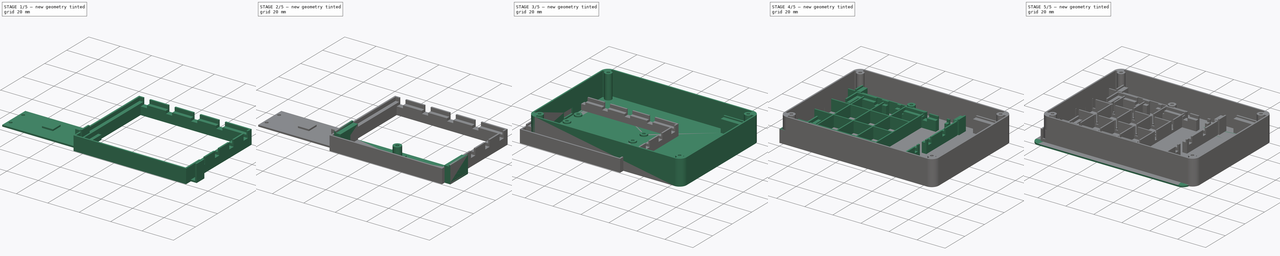
[diagram: build sequence overview — one tinted view per stage of 5, left to right]
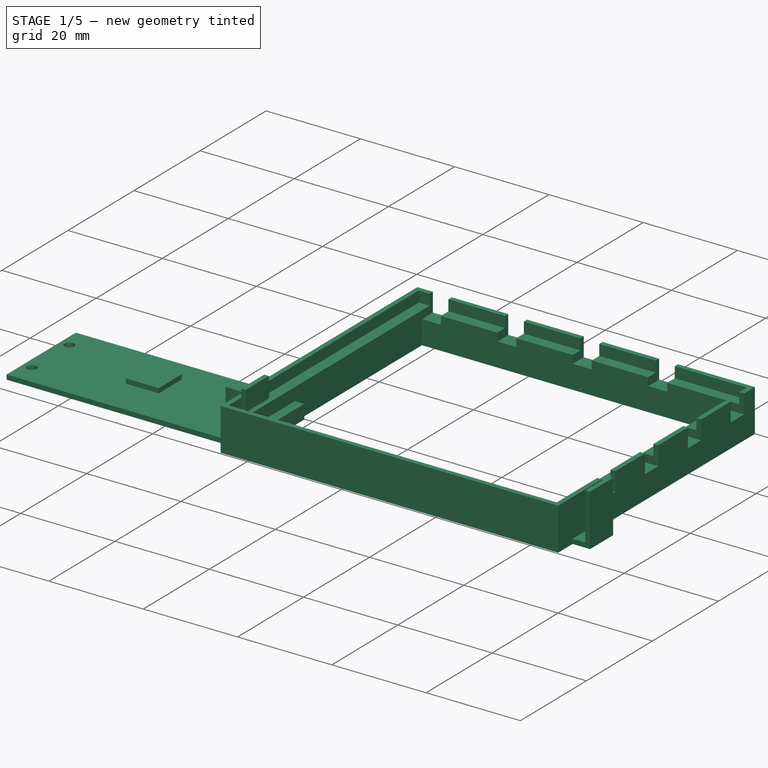
[diagram: stage 1 of 5 — iso view after this stage's code; geometry added in this stage tinted green]
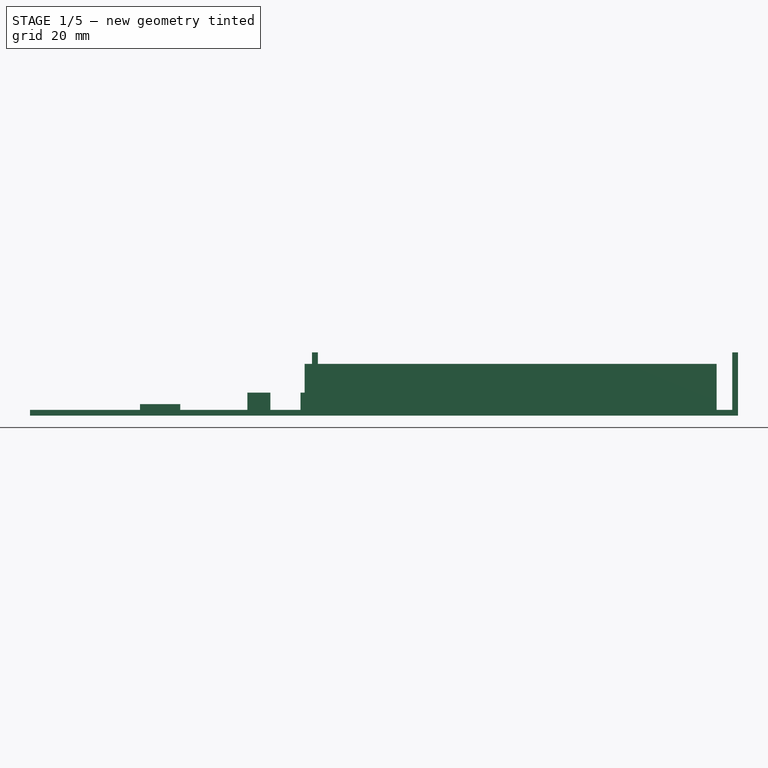
[diagram: stage 1 of 5 — front view after this stage's code; geometry added in this stage tinted green]
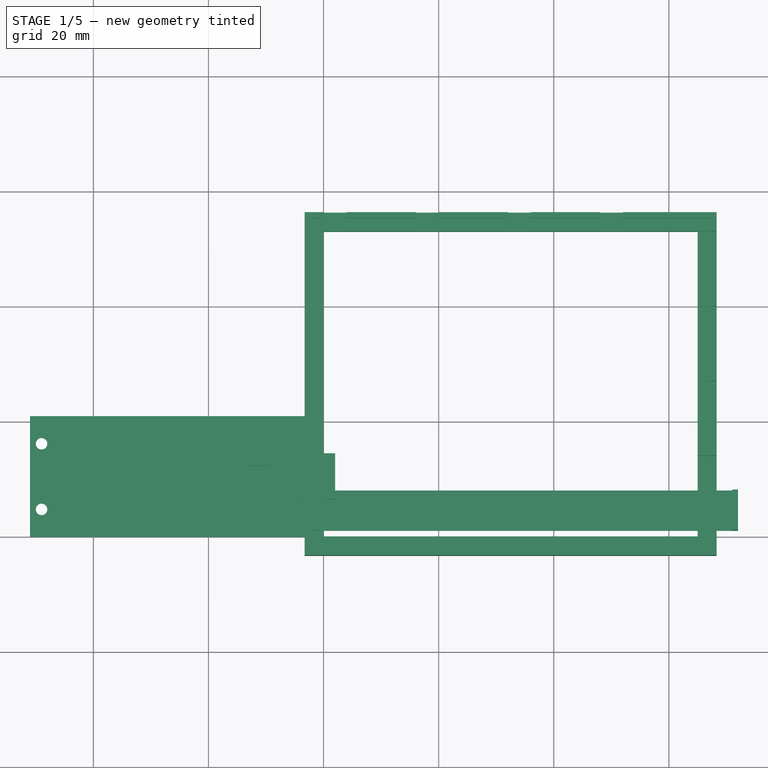
[diagram: stage 1 of 5 — top view after this stage's code; geometry added in this stage tinted green]
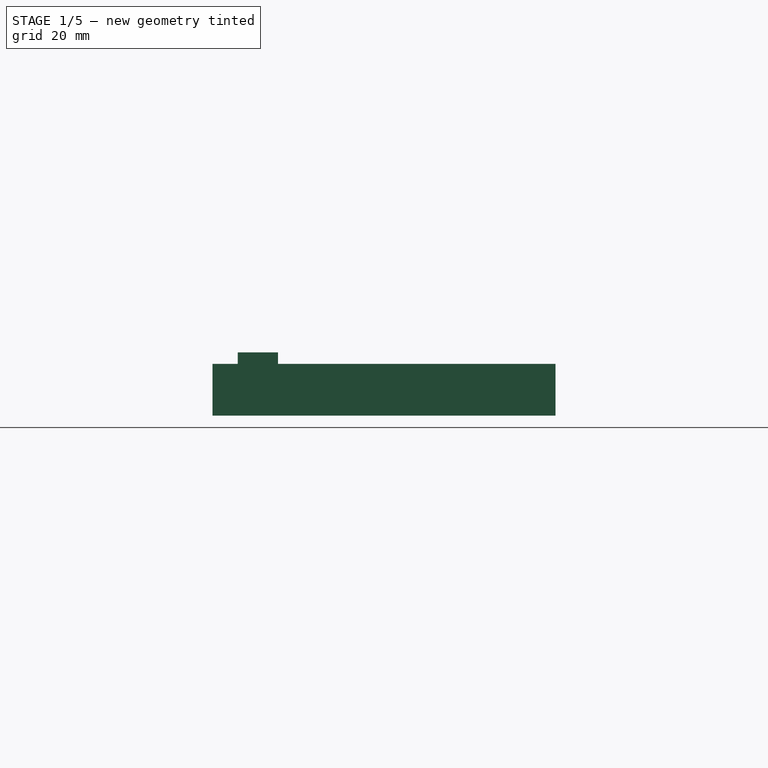
[diagram: stage 1 of 5 — right view after this stage's code; geometry added in this stage tinted green]
FCSTD DOCUMENT  (FreeCAD 0.19R24267 +99 (Git))
Label: tnavComplete_newCaseNholes
License: All rights reserved
LicenseURL: http://en.wikipedia.org/wiki/All_rights_reserved
objects: Sketcher::SketchObject×45, PartDesign::Pad×30, PartDesign::Pocket×15, PartDesign::ShapeBinder×10, PartDesign::Body×9, Spreadsheet::Sheet×2, PartDesign::Fillet×2, App::MeasureDistance×1
note: 158 computed .brp shape members not serialized (recipe doc carries the construction recipe); baked Part::Feature solids carry a one-line shape summary decoded from their .brp

FEATURE [Spreadsheet::Sheet] Spreadsheet  label="tnavM"
  cells = A2=matrix; D2=matrix lid; G2=tnav; A3=outer wall thickness; B3(outerThickness)=1; D3=Lid fit tolerance (linear); E3(tol)=0.3; G3=height; H3(tnavHeight)=19; A4=inner pin volume length; B4(innerLenght)=15; D4=Lid depth; E4(lidDepth)=5; G4=Screw tower radius; H4(screwTRad)=2.5; A5=inner pin volume height; B5(innerHeight)=7; D5=PinHole Lenght; E5(holeLenght)=12; G5=screw hole radius; H5(screwRad)=1.05; A6=inner pin volume width; B6(innerWidth)=12; D6=PinHole Width; E6(holeWidth)=6; G6=tnav lid button hole rad; H6(buttonHoleRad)=3.15; A7=terminal hole radius; B7(terminalRad)=1
FEATURE [Sketcher::SketchObject] Sketch004  label="RpiPicoFootprint"
  FullyConstrained = true
  MapMode = 5
  Support = -> [XY_Plane001]
  sketch-geometry (8):
    g0: LineSegment StartX=0 StartY=0 StartZ=0 EndX=-51 EndY=0 EndZ=0
    g1: LineSegment StartX=-51 StartY=0 StartZ=0 EndX=-51 EndY=21 EndZ=0
    g2: LineSegment StartX=-51 StartY=21 StartZ=0 EndX=0 EndY=21 EndZ=0
    g3: LineSegment StartX=0 StartY=21 StartZ=0 EndX=0 EndY=0 EndZ=0
    g4: Circle CenterX=-49 CenterY=16.2 CenterZ=0 NormalX=0 NormalY=0 NormalZ=1 AngleXU=0 Radius=1
    g5: Circle CenterX=-49 CenterY=4.8 CenterZ=0 NormalX=0 NormalY=0 NormalZ=1 AngleXU=0 Radius=1
    g6: Circle CenterX=-2 CenterY=16.2 CenterZ=0 NormalX=0 NormalY=0 NormalZ=1 AngleXU=0 Radius=1
    g7: Circle CenterX=-2 CenterY=4.8 CenterZ=0 NormalX=0 NormalY=0 NormalZ=1 AngleXU=0 Radius=1
  constraints (23):
    c: Coincident(g0,g1)
    c: Coincident(g1,g2)
    c: Coincident(g2,g3)
    c: Coincident(g3,g0)
    c: Horizontal(g0)
    c: Horizontal(g2)
    c: Vertical(g1)
    c: Vertical(g3)
    c: Coincident(g0,g-1)
    c: DistanceX(g2,g2) = 51
    c: DistanceY(g1,g1) = 21
    c: Horizontal(g7,g5)
    c: Horizontal(g4,g6)
    c: Vertical(g4,g5)
    c: Vertical(g6,g7)
    c: DistanceX(g1,g4) = 2
    c: DistanceX(g6,g2) = 2
    c: DistanceY(g0,g7) = 4.8
    c: DistanceY(g6,g2) = 4.8
    c: Equal(g4,g5)
    c: Equal(g5,g7)
    c: Equal(g7,g6)
    c: Radius(g6) = 1
FEATURE [PartDesign::Pad] Pad003  label="board"
  Direction = (1,1,1)
  Length = 1
  Length2 = 100
  Profile = -> Sketch004
  Type = 0
FEATURE [Sketcher::SketchObject] Sketch005
  ExternalGeometry = -> [Pad003]
  FullyConstrained = false
  MapMode = 5
  Placement = pos=(0,0,1) rot=(0,0,1;0rad)
  Support = -> [Pad003]
  sketch-geometry (10):
    g0: LineSegment StartX=-4 StartY=14.5 StartZ=0 EndX=2 EndY=14.5 EndZ=0
    g1: LineSegment StartX=2 StartY=14.5 StartZ=0 EndX=2 EndY=6.5 EndZ=0
    g2: LineSegment StartX=2 StartY=6.5 StartZ=0 EndX=-4 EndY=6.5 EndZ=0
    g3: LineSegment StartX=-4 StartY=6.5 StartZ=0 EndX=-4 EndY=14.5 EndZ=0
    g4: LineSegment StartX=-13.248 StartY=15.3929 StartZ=0 EndX=-9.24804 EndY=15.3929 EndZ=0
    g5: LineSegment StartX=-9.24804 StartY=15.3929 StartZ=0 EndX=-9.24804 EndY=12.3929 EndZ=0
    g6: LineSegment StartX=-9.24804 StartY=12.3929 StartZ=0 EndX=-13.248 EndY=12.3929 EndZ=0
    g7: LineSegment StartX=-13.248 StartY=12.3929 StartZ=0 EndX=-13.248 EndY=15.3929 EndZ=0
    g8: LineSegment StartX=-2 StartY=16.2 StartZ=0 EndX=-2 EndY=14.5 EndZ=0
    g9: LineSegment StartX=-2 StartY=4.8 StartZ=0 EndX=-2 EndY=6.5 EndZ=0
  constraints (26):
    c: Coincident(g0,g1)
    c: Coincident(g1,g2)
    c: Coincident(g2,g3)
    c: Coincident(g3,g0)
    c: Horizontal(g2)
    c: Vertical(g1)
    c: Vertical(g3)
    c: DistanceX(g-3,g0) = 2
    c: DistanceY(g1,g1) = 8
    c: DistanceX(g0,g0) = 6
    c: Coincident(g4,g5)
    c: Coincident(g5,g6)
    c: Coincident(g6,g7)
    c: Coincident(g7,g4)
    c: Horizontal(g4)
    c: Horizontal(g6)
    c: Vertical(g5)
    c: Vertical(g7)
    c: DistanceX(g4,g4) = 4
    c: DistanceY(g5,g5) = 3
    c: Coincident(g8,g-5)
    c: Coincident(g9,g-4)
    c: Horizontal(g9,g2)
    c: Horizontal(g8,g0)
    c: Horizontal(g0)
    c: Equal(g9,g8)
FEATURE [PartDesign::Pad] Pad004  label="microUSB & bootsel"
  BaseFeature = -> Pad003
  Direction = (1,1,1)
  Length = 3
  Length2 = 100
  Profile = -> Sketch005
  Type = 0
FEATURE [Sketcher::SketchObject] Sketch006
  FullyConstrained = false
  MapMode = 5
  Placement = pos=(0,0,1) rot=(0,0,1;0rad)
  Support = -> [Pad004]
  sketch-geometry (4):
    g0: LineSegment StartX=-31.8919 StartY=15.8246 StartZ=0 EndX=-24.8919 EndY=15.8246 EndZ=0
    g1: LineSegment StartX=-24.8919 StartY=15.8246 StartZ=0 EndX=-24.8919 EndY=8.82462 EndZ=0
    g2: LineSegment StartX=-24.8919 StartY=8.82462 StartZ=0 EndX=-31.8919 EndY=8.82462 EndZ=0
    g3: LineSegment StartX=-31.8919 StartY=8.82462 StartZ=0 EndX=-31.8919 EndY=15.8246 EndZ=0
  constraints (10):
    c: Coincident(g0,g1)
    c: Coincident(g1,g2)
    c: Coincident(g2,g3)
    c: Coincident(g3,g0)
    c: Horizontal(g0)
    c: Horizontal(g2)
    c: Vertical(g1)
    c: Vertical(g3)
    c: DistanceX(g0,g0) = 7
    c: DistanceY(g1,g1) = 7
FEATURE [PartDesign::Pad] Pad005  label="IC"
  BaseFeature = -> Pad004
  Direction = (1,1,1)
  Length = 1
  Length2 = 100
  Profile = -> Sketch006
  Type = 0
FEATURE [Spreadsheet::Sheet] Spreadsheet001  label="matrixM"
  cells = A3=outer wall thickness; B3(outerThickness)=1; D3=Lid fit tolerance (linear); E3(tol)=0.3; A4=inner pin volume length; B4(innerLenght)=15; D4=Lid depth; E4(lidDepth)=5; A5=inner pin volume height; B5(innerHeight)=7; D5=PinHole Lenght; E5(holeLenght)=13; A6=inner pin volume width; B6(innerWidth)=12; D6=PinHole Width; E6(holeWidth)=9; A7=terminal hole radius; B7(terminalRad)=1
FEATURE [PartDesign::ShapeBinder] ShapeBinder002  label="Pestania outline"
  TraceSupport = false
FEATURE [Sketcher::SketchObject] Sketch017
  ExternalGeometry = -> [ShapeBinder002]
  FullyConstrained = true
  MapMode = 5
  Support = -> [XY_Plane003]
  expr: Constraints[47] = 2
  expr: Constraints[28] = <<matrixM>>.tol + <<matrixM>>.outerThickness
  sketch-geometry (16):
    g0: LineSegment StartX=-3.3 StartY=56.3 StartZ=0 EndX=68.3 EndY=56.3 EndZ=0
    g1: LineSegment StartX=68.3 StartY=56.3 StartZ=0 EndX=68.3 EndY=-3.3 EndZ=0
    g2: LineSegment StartX=68.3 StartY=-3.3 StartZ=0 EndX=-3.3 EndY=-3.3 EndZ=0
    g3: LineSegment StartX=-3.3 StartY=-3.3 StartZ=0 EndX=-3.3 EndY=56.3 EndZ=0
    g4: LineSegment StartX=2.63429e-11 StartY=53 StartZ=0 EndX=65 EndY=53 EndZ=0
    g5: LineSegment StartX=65 StartY=53 StartZ=0 EndX=65 EndY=-6.9704e-12 EndZ=0
    g6: LineSegment StartX=65 StartY=-6.9709e-12 StartZ=0 EndX=2.63469e-11 EndY=-6.9709e-12 EndZ=0
    g7: LineSegment StartX=2.63429e-11 StartY=-6.9709e-12 StartZ=0 EndX=2.63429e-11 EndY=53 EndZ=0
    g8: LineSegment StartX=-2 StartY=55 StartZ=0 EndX=-2 EndY=56.3 EndZ=0
    g9: LineSegment StartX=-2 StartY=55 StartZ=0 EndX=-3.3 EndY=55 EndZ=0
    g10: LineSegment StartX=67 StartY=-2 StartZ=0 EndX=68.3 EndY=-2 EndZ=0
    g11: LineSegment StartX=67 StartY=-2 StartZ=0 EndX=67 EndY=-3.3 EndZ=0
    g12: LineSegment StartX=2.63429e-11 StartY=53 StartZ=0 EndX=2.63429e-11 EndY=55 EndZ=0
    g13: LineSegment StartX=2.63429e-11 StartY=53 StartZ=0 EndX=-2 EndY=53 EndZ=0
    g14: LineSegment StartX=65 StartY=-6.9709e-12 StartZ=0 EndX=67 EndY=-6.9709e-12 EndZ=0
    g15: LineSegment StartX=65 StartY=-6.9709e-12 StartZ=0 EndX=65 EndY=-2 EndZ=0
  constraints (48):
    c: Coincident(g0,g1)
    c: Coincident(g1,g2)
    c: Coincident(g2,g3)
    c: Coincident(g3,g0)
    c: Horizontal(g0)
    c: Horizontal(g2)
    c: Vertical(g1)
    c: Vertical(g3)
    c: Coincident(g4,g5)
    c: Coincident(g5,g6)
    c: Coincident(g6,g7)
    c: Coincident(g7,g4)
    c: Horizontal(g4)
    c: Horizontal(g6)
    c: Vertical(g5)
    c: Vertical(g7)
    c: Coincident(g8,g-4)
    c: PointOnObject(g8,g0)
    c: Vertical(g8)
    c: Coincident(g9,g8)
    c: PointOnObject(g9,g3)
    c: Horizontal(g9)
    c: Coincident(g10,g-6)
    c: PointOnObject(g10,g1)
    c: Horizontal(g10)
    c: Coincident(g11,g10)
    c: PointOnObject(g11,g2)
    c: Vertical(g11)
    c: DistanceX(g10,g10) = 1.3
    c: Equal(g10,g11)
    c: Equal(g11,g8)
    c: Equal(g8,g9)
    c: Coincident(g12,g4)
    c: PointOnObject(g12,g-3)
    c: Vertical(g12)
    c: Coincident(g13,g4)
    c: PointOnObject(g13,g-4)
    c: Horizontal(g13)
    c: Coincident(g14,g5)
    c: PointOnObject(g14,g-6)
    c: Coincident(g15,g5)
    c: PointOnObject(g15,g-5)
    c: Vertical(g15)
    c: Horizontal(g14)
    c: Equal(g14,g15)
    c: Equal(g15,g12)
    c: Equal(g12,g13)
    c: DistanceX(g14,g14) = 2
FEATURE [PartDesign::Pad] Pad009  label="Base support"
  Direction = (1,1,1)
  Length = 9
  Length2 = 100
  Profile = -> Sketch017
  Type = 0
FEATURE [Sketcher::SketchObject] Sketch015
  ExternalGeometry = -> [Pad009]
  FullyConstrained = true
  MapMode = 5
  Placement = pos=(0,0,9) rot=(0,0,1;0rad)
  Support = -> [Pad009]
  expr: Constraints[23] = <<matrixM>>.outerThickness
  sketch-geometry (8):
    g0: LineSegment StartX=-2.3 StartY=55.3 StartZ=0 EndX=67.3 EndY=55.3 EndZ=0
    g1: LineSegment StartX=67.3 StartY=55.3 StartZ=0 EndX=67.3 EndY=-2.3 EndZ=0
    g2: LineSegment StartX=67.3 StartY=-2.3 StartZ=0 EndX=-2.3 EndY=-2.3 EndZ=0
    g3: LineSegment StartX=-2.3 StartY=-2.3 StartZ=0 EndX=-2.3 EndY=55.3 EndZ=0
    g4: LineSegment StartX=67.3 StartY=-2.3 StartZ=0 EndX=67.3 EndY=-3.3 EndZ=0
    g5: LineSegment StartX=67.3 StartY=-2.3 StartZ=0 EndX=68.3 EndY=-2.3 EndZ=0
    g6: LineSegment StartX=-2.3 StartY=55.3 StartZ=0 EndX=-2.3 EndY=56.3 EndZ=0
    g7: LineSegment StartX=-2.3 StartY=55.3 StartZ=0 EndX=-3.3 EndY=55.3 EndZ=0
  constraints (24):
    c: Coincident(g0,g1)
    c: Coincident(g1,g2)
    c: Coincident(g2,g3)
    c: Coincident(g3,g0)
    c: Horizontal(g0)
    c: Horizontal(g2)
    c: Vertical(g1)
    c: Vertical(g3)
    c: Coincident(g4,g1)
    c: PointOnObject(g4,g-5)
    c: Vertical(g4)
    c: Coincident(g5,g1)
    c: PointOnObject(g5,g-6)
    c: Horizontal(g5)
    c: Coincident(g6,g0)
    c: PointOnObject(g6,g-3)
    c: Vertical(g6)
    c: Coincident(g7,g0)
    c: PointOnObject(g7,g-4)
    c: Horizontal(g7)
    c: Equal(g7,g6)
    c: Equal(g6,g5)
    c: Equal(g5,g4)
    c: DistanceX(g5,g5) = 1
FEATURE [PartDesign::Pocket] Pocket004  label="Pocket for matcase"
  BaseFeature = -> Pad009
  Length = 2.3
  Length2 = 100
  Profile = -> Sketch015
  Type = 0
  expr: Length = 2.3mm
FEATURE [Sketcher::SketchObject] Sketch016
  ExternalGeometry = -> [Pocket004]
  FullyConstrained = false
  MapMode = 5
  Placement = pos=(0,0,9) rot=(0,0,1;0rad)
  Support = -> [Pocket004]
  sketch-geometry (44):
    g0: LineSegment StartX=-6.17374 StartY=2.77278 StartZ=0 EndX=0.781224 EndY=2.77278 EndZ=0
    g1: LineSegment StartX=0.781224 StartY=2.77278 StartZ=0 EndX=0.781224 EndY=9.58865 EndZ=0
    g2: LineSegment StartX=0.781224 StartY=9.58865 StartZ=0 EndX=-6.17374 EndY=9.58865 EndZ=0
    g3: LineSegment StartX=-6.17374 StartY=9.58865 StartZ=0 EndX=-6.17374 EndY=2.77278 EndZ=0
    g4: LineSegment StartX=2.12053e-11 StartY=58.1343 StartZ=0 EndX=4 EndY=58.1343 EndZ=0
    g5: LineSegment StartX=4 StartY=58.1343 StartZ=0 EndX=4 EndY=52.0139 EndZ=0
    g6: LineSegment StartX=4 StartY=52.0139 StartZ=0 EndX=2.12053e-11 EndY=52.0139 EndZ=0
    g7: LineSegment StartX=2.12053e-11 StartY=52.0139 StartZ=0 EndX=2.12053e-11 EndY=58.1343 EndZ=0
    g8: LineSegment StartX=16 StartY=57.9952 StartZ=0 EndX=20 EndY=57.9952 EndZ=0
    g9: LineSegment StartX=20 StartY=57.9952 StartZ=0 EndX=20 EndY=51.8748 EndZ=0
    g10: LineSegment StartX=20 StartY=51.8748 StartZ=0 EndX=16 EndY=51.8748 EndZ=0
    g11: LineSegment StartX=16 StartY=51.8748 StartZ=0 EndX=16 EndY=57.9952 EndZ=0
    g12: LineSegment StartX=32 StartY=59.8411 StartZ=0 EndX=36 EndY=59.8411 EndZ=0
    g13: LineSegment StartX=36 StartY=59.8411 StartZ=0 EndX=36 EndY=51.0402 EndZ=0
    g14: LineSegment StartX=36 StartY=51.0402 StartZ=0 EndX=32 EndY=51.0402 EndZ=0
    g15: LineSegment StartX=32 StartY=51.0402 StartZ=0 EndX=32 EndY=59.8411 EndZ=0
    g16: LineSegment StartX=48 StartY=57.9478 StartZ=0 EndX=52 EndY=57.9478 EndZ=0
    g17: LineSegment StartX=52 StartY=57.9478 StartZ=0 EndX=52 EndY=51.4674 EndZ=0
    g18: LineSegment StartX=52 StartY=51.4674 StartZ=0 EndX=48 EndY=51.4674 EndZ=0
    g19: LineSegment StartX=48 StartY=51.4674 StartZ=0 EndX=48 EndY=57.9478 EndZ=0
    g20: LineSegment StartX=64.3496 StartY=53 StartZ=0 EndX=68.9399 EndY=53 EndZ=0
    g21: LineSegment StartX=68.9399 StartY=53 StartZ=0 EndX=68.9399 EndY=49 EndZ=0
    g22: LineSegment StartX=68.9399 StartY=49 StartZ=0 EndX=64.3496 EndY=49 EndZ=0
    g23: LineSegment StartX=64.3496 StartY=49 StartZ=0 EndX=64.3496 EndY=53 EndZ=0
    g24: LineSegment StartX=65.0001 StartY=40 StartZ=0 EndX=71.816 EndY=40 EndZ=0
    g25: LineSegment StartX=71.816 StartY=40 StartZ=0 EndX=71.816 EndY=36 EndZ=0
    g26: LineSegment StartX=71.816 StartY=36 StartZ=0 EndX=65.0001 EndY=36 EndZ=0
    g27: LineSegment StartX=65.0001 StartY=36 StartZ=0 EndX=65.0001 EndY=40 EndZ=0
    g28: LineSegment StartX=63.9546 StartY=27 StartZ=0 EndX=72.3005 EndY=27 EndZ=0
    g29: LineSegment StartX=72.3005 StartY=27 StartZ=0 EndX=72.3005 EndY=23 EndZ=0
    g30: LineSegment StartX=72.3005 StartY=23 StartZ=0 EndX=63.9546 EndY=23 EndZ=0
    g31: LineSegment StartX=63.9546 StartY=23 StartZ=0 EndX=63.9546 EndY=27 EndZ=0
    g32: LineSegment StartX=64.0825 StartY=14 StartZ=0 EndX=71.1766 EndY=14 EndZ=0
    g33: LineSegment StartX=71.1766 StartY=14 StartZ=0 EndX=71.1766 EndY=10 EndZ=0
    g34: LineSegment StartX=71.1766 StartY=10 StartZ=0 EndX=64.0825 EndY=10 EndZ=0
    g35: LineSegment StartX=64.0825 StartY=10 StartZ=0 EndX=64.0825 EndY=14 EndZ=0
    g36: LineSegment StartX=-3.3 StartY=56.3 StartZ=0 EndX=2.12053e-11 EndY=56.3 EndZ=0
    g37: LineSegment StartX=4 StartY=56.3 StartZ=0 EndX=16 EndY=56.3 EndZ=0
    g38: LineSegment StartX=20 StartY=56.3 StartZ=0 EndX=32 EndY=56.3 EndZ=0
    g39: LineSegment StartX=36 StartY=56.3 StartZ=0 EndX=48 EndY=56.3 EndZ=0
    g40: LineSegment StartX=68.3 StartY=56.3 StartZ=0 EndX=68.3 EndY=53 EndZ=0
    g41: LineSegment StartX=68.3 StartY=49 StartZ=0 EndX=68.3 EndY=40 EndZ=0
    g42: LineSegment StartX=68.3 StartY=36 StartZ=0 EndX=68.3 EndY=27 EndZ=0
    g43: LineSegment StartX=68.3 StartY=23 StartZ=0 EndX=68.3 EndY=14 EndZ=0
  constraints (118):
    c: Coincident(g0,g1)
    c: Coincident(g1,g2)
    c: Coincident(g2,g3)
    c: Coincident(g3,g0)
    c: Horizontal(g0)
    c: Horizontal(g2)
    c: Vertical(g1)
    c: Vertical(g3)
    c: Coincident(g4,g5)
    c: Coincident(g5,g6)
    c: Coincident(g6,g7)
    c: Coincident(g7,g4)
    c: Horizontal(g4)
    c: Horizontal(g6)
    c: Vertical(g5)
    c: Vertical(g7)
    c: Coincident(g8,g9)
    c: Coincident(g9,g10)
    c: Coincident(g10,g11)
    c: Coincident(g11,g8)
    c: Horizontal(g8)
    c: Horizontal(g10)
    c: Vertical(g9)
    c: Vertical(g11)
    c: Coincident(g12,g13)
    c: Coincident(g13,g14)
    c: Coincident(g14,g15)
    c: Coincident(g15,g12)
    c: Horizontal(g12)
    c: Horizontal(g14)
    c: Vertical(g13)
    c: Vertical(g15)
    c: Coincident(g16,g17)
    c: Coincident(g17,g18)
    c: Coincident(g18,g19)
    c: Coincident(g19,g16)
    c: Horizontal(g16)
    c: Horizontal(g18)
    c: Vertical(g17)
    c: Vertical(g19)
    c: Coincident(g20,g21)
    c: Coincident(g21,g22)
    c: Coincident(g22,g23)
    c: Coincident(g23,g20)
    c: Horizontal(g20)
    c: Horizontal(g22)
    c: Vertical(g21)
    c: Vertical(g23)
    c: Coincident(g24,g25)
    c: Coincident(g25,g26)
    c: Coincident(g26,g27)
    c: Coincident(g27,g24)
    c: Horizontal(g24)
    c: Horizontal(g26)
    c: Vertical(g25)
    c: Vertical(g27)
    c: Coincident(g28,g29)
    c: Coincident(g29,g30)
    c: Coincident(g30,g31)
    c: Coincident(g31,g28)
    c: Horizontal(g28)
    c: Horizontal(g30)
    c: Vertical(g29)
    c: Vertical(g31)
    c: Coincident(g32,g33)
    c: Coincident(g33,g34)
    c: Coincident(g34,g35)
    c: Coincident(g35,g32)
    c: Horizontal(g32)
    c: Horizontal(g34)
    c: Vertical(g33)
    c: Vertical(g35)
    c: Equal(g4,g8)
    c: Equal(g8,g12)
    c: Equal(g12,g16)
    c: Equal(g16,g21)
    c: Equal(g21,g25)
    c: Equal(g25,g29)
    c: Equal(g29,g33)
    c: DistanceY(g33,g33) = 4
    c: Coincident(g36,g-5)
    c: PointOnObject(g36,g7)
    c: Horizontal(g36)
    c: DistanceX(g36,g36) = 3.3
    c: PointOnObject(g37,g5)
    c: PointOnObject(g37,g-4)
    c: Horizontal(g37)
    c: PointOnObject(g38,g-4)
    c: PointOnObject(g38,g-4)
    c: PointOnObject(g39,g-4)
    c: PointOnObject(g39,g19)
    c: Horizontal(g39)
    c: Equal(g39,g38)
    c: Equal(g38,g37)
    c: PointOnObject(g38,g15)
    c: PointOnObject(g39,g13)
    c: PointOnObject(g38,g9)
    c: PointOnObject(g37,g11)
    c: DistanceX(g37,g37) = 12
    c: Coincident(g40,g-4)
    c: PointOnObject(g40,g-3)
    c: PointOnObject(g41,g-3)
    c: PointOnObject(g41,g-3)
    c: PointOnObject(g42,g-3)
    c: PointOnObject(g42,g-3)
    c: PointOnObject(g43,g-3)
    c: PointOnObject(g43,g-3)
    c: PointOnObject(g43,g30)
    c: PointOnObject(g43,g32)
    c: PointOnObject(g42,g28)
    c: PointOnObject(g42,g26)
    c: PointOnObject(g41,g22)
    c: PointOnObject(g41,g24)
    c: PointOnObject(g40,g20)
    c: Equal(g40,g36)
    c: Equal(g43,g42)
    c: Equal(g42,g41)
    c: DistanceY(g41,g41) = 9
FEATURE [PartDesign::Pocket] Pocket006
  BaseFeature = -> Pocket004
  Length = 4
  Length2 = 100
  Profile = -> Sketch016
  Type = 0
FEATURE [PartDesign::Body] Body005  label="Stand Bottom"
  Group = -> [Sketch020,ShapeBinder003,Sketch019,Pad013,Sketch003,Pad002,Pad012,Sketch021,Pocket008,Sketch023,Pad010,Sketch024,Pocket007]
  Origin = -> Origin004
  Placement = pos=(97,2,-10) rot=(0,0,1;1.5708rad)
  Tip = -> Pocket007
FEATURE [Sketcher::SketchObject] Sketch029
  FullyConstrained = true
  MapMode = 5
  Support = -> [XY_Plane007]
  sketch-geometry (5):
    g0: LineSegment StartX=0 StartY=0 StartZ=0 EndX=70 EndY=0 EndZ=0
    g1: LineSegment StartX=70 StartY=0 StartZ=0 EndX=70 EndY=7.62 EndZ=0
    g2: LineSegment StartX=70 StartY=7.62 StartZ=0 EndX=0 EndY=7.62 EndZ=0
    g3: LineSegment StartX=0 StartY=7.62 StartZ=0 EndX=0 EndY=0 EndZ=0
    g4: Circle CenterX=34 CenterY=5.08 CenterZ=0 NormalX=0 NormalY=0 NormalZ=1 AngleXU=0 Radius=1
  constraints (14):
    c: Coincident(g0,g1)
    c: Coincident(g1,g2)
    c: Coincident(g2,g3)
    c: Coincident(g3,g0)
    c: Horizontal(g0)
    c: Horizontal(g2)
    c: Vertical(g1)
    c: Vertical(g3)
    c: Coincident(g0,g-1)
    c: DistanceX(g2,g2) = 70
    c: DistanceY(g1,g1) = 7.62
    c: Radius(g4) = 1
    c: DistanceX(g0,g4) = 34
    c: DistanceY(g4,g2) = 2.54
FEATURE [PartDesign::Pad] Pad017  label="board pad001"
  Direction = (1,1,1)
  Length = 1.1
  Length2 = 100
  Profile = -> Sketch029
  Type = 0
FEATURE [PartDesign::ShapeBinder] ShapeBinder004  label="origin post001"
  Support = -> [Pad017]
  TraceSupport = false
FEATURE [Sketcher::SketchObject] Sketch026  label="highest003"
  ExternalGeometry = -> [ShapeBinder004]
  FullyConstrained = true
  MapMode = 5
  Support = -> [XY_Plane006]
  sketch-geometry (16):
    g0: LineSegment StartX=-2 StartY=11.08 StartZ=0 EndX=-1 EndY=11.08 EndZ=0
    g1: LineSegment StartX=-1 StartY=11.08 StartZ=0 EndX=-1 EndY=-4.92 EndZ=0
    g2: LineSegment StartX=-1 StartY=-4.92 StartZ=0 EndX=-2 EndY=-4.92 EndZ=0
    g3: LineSegment StartX=-2 StartY=-4.92 StartZ=0 EndX=-2 EndY=11.08 EndZ=0
    g4: LineSegment StartX=71 StartY=11.08 StartZ=0 EndX=72 EndY=11.08 EndZ=0
    g5: LineSegment StartX=72 StartY=11.08 StartZ=0 EndX=72 EndY=-4.92 EndZ=0
    g6: LineSegment StartX=72 StartY=-4.92 StartZ=0 EndX=71 EndY=-4.92 EndZ=0
    g7: LineSegment StartX=71 StartY=-4.92 StartZ=0 EndX=71 EndY=11.08 EndZ=0
    g8: LineSegment StartX=-1 StartY=11.08 StartZ=0 EndX=2 EndY=11.08 EndZ=0
    g9: LineSegment StartX=2 StartY=11.08 StartZ=0 EndX=2 EndY=-4.92 EndZ=0
    g10: LineSegment StartX=2 StartY=-4.92 StartZ=0 EndX=-1 EndY=-4.92 EndZ=0
    g11: LineSegment StartX=-1 StartY=-4.92 StartZ=0 EndX=-1 EndY=11.08 EndZ=0
    g12: LineSegment StartX=71 StartY=11.08 StartZ=0 EndX=68 EndY=11.08 EndZ=0
    g13: LineSegment StartX=68 StartY=11.08 StartZ=0 EndX=68 EndY=-4.92 EndZ=0
    g14: LineSegment StartX=68 StartY=-4.92 StartZ=0 EndX=71 EndY=-4.92 EndZ=0
    g15: LineSegment StartX=71 StartY=-4.92 StartZ=0 EndX=71 EndY=11.08 EndZ=0
  constraints (44):
    c: Coincident(g0,g1)
    c: Coincident(g1,g2)
    c: Coincident(g2,g3)
    c: Coincident(g3,g0)
    c: Horizontal(g0)
    c: Horizontal(g2)
    c: Vertical(g1)
    c: Vertical(g3)
    c: DistanceY(g-3,g0) = 6
    c: DistanceY(g1,g-3) = 10
    c: Coincident(g4,g5)
    c: Coincident(g5,g6)
    c: Coincident(g6,g7)
    c: Coincident(g7,g4)
    c: Horizontal(g4)
    c: Horizontal(g6)
    c: Vertical(g5)
    c: Vertical(g7)
    c: Horizontal(g0,g4)
    c: Horizontal(g1,g6)
    c: DistanceX(g0,g-3) = 35
    c: DistanceX(g-3,g4) = 37
    c: Equal(g2,g6)
    c: DistanceX(g4,g4) = 1
    c: Coincident(g8,g9)
    c: Coincident(g9,g10)
    c: Coincident(g10,g11)
    c: Coincident(g11,g8)
    c: Horizontal(g8)
    c: Horizontal(g10)
    c: Vertical(g9)
    c: Coincident(g8,g0)
    c: Coincident(g10,g1)
    c: Coincident(g12,g13)
    c: Coincident(g13,g14)
    c: Coincident(g14,g15)
    c: Coincident(g15,g12)
    c: Horizontal(g12)
    c: Horizontal(g14)
    c: Vertical(g13)
    c: Coincident(g12,g4)
    c: Coincident(g14,g6)
    c: Equal(g14,g10)
    c: DistanceX(g12,g12) = 3
FEATURE [Sketcher::SketchObject] Sketch027  label="highest004"
  ExternalGeometry = -> [ShapeBinder004]
  FullyConstrained = true
  MapMode = 5
  Support = -> [XY_Plane006]
  sketch-geometry (20):
    g0: LineSegment StartX=-2 StartY=8.08 StartZ=0 EndX=-1 EndY=8.08 EndZ=0
    g1: LineSegment StartX=-1 StartY=8.08 StartZ=0 EndX=-1 EndY=1.08 EndZ=0
    g2: LineSegment StartX=-1 StartY=1.08 StartZ=0 EndX=-2 EndY=1.08 EndZ=0
    g3: LineSegment StartX=-2 StartY=1.08 StartZ=0 EndX=-2 EndY=8.08 EndZ=0
    g4: LineSegment StartX=71 StartY=8.08 StartZ=0 EndX=72 EndY=8.08 EndZ=0
    g5: LineSegment StartX=72 StartY=8.08 StartZ=0 EndX=72 EndY=1.08 EndZ=0
    g6: LineSegment StartX=72 StartY=1.08 StartZ=0 EndX=71 EndY=1.08 EndZ=0
    g7: LineSegment StartX=71 StartY=1.08 StartZ=0 EndX=71 EndY=8.08 EndZ=0
    g8: LineSegment StartX=-1 StartY=8.08 StartZ=0 EndX=2 EndY=8.08 EndZ=0
    g9: LineSegment StartX=2 StartY=8.08 StartZ=0 EndX=2 EndY=1.08 EndZ=0
    g10: LineSegment StartX=2 StartY=1.08 StartZ=0 EndX=-1 EndY=1.08 EndZ=0
    g11: LineSegment StartX=-1 StartY=1.08 StartZ=0 EndX=-1 EndY=8.08 EndZ=0
    g12: LineSegment StartX=71 StartY=8.08 StartZ=0 EndX=68 EndY=8.08 EndZ=0
    g13: LineSegment StartX=68 StartY=8.08 StartZ=0 EndX=68 EndY=1.08 EndZ=0
    g14: LineSegment StartX=68 StartY=1.08 StartZ=0 EndX=71 EndY=1.08 EndZ=0
    g15: LineSegment StartX=71 StartY=1.08 StartZ=0 EndX=71 EndY=8.08 EndZ=0
    g16: LineSegment StartX=-2 StartY=8.08 StartZ=0 EndX=72 EndY=8.08 EndZ=0
    g17: LineSegment StartX=72 StartY=8.08 StartZ=0 EndX=72 EndY=1.08 EndZ=0
    g18: LineSegment StartX=72 StartY=1.08 StartZ=0 EndX=-2 EndY=1.08 EndZ=0
    g19: LineSegment StartX=-2 StartY=1.08 StartZ=0 EndX=-2 EndY=8.08 EndZ=0
  constraints (54):
    c: Coincident(g0,g1)
    c: Coincident(g1,g2)
    c: Coincident(g2,g3)
    c: Coincident(g3,g0)
    c: Horizontal(g0)
    c: Horizontal(g2)
    c: Vertical(g1)
    c: Vertical(g3)
    c: DistanceY(g-3,g0) = 3
    c: DistanceY(g1,g-3) = 4
    c: Coincident(g4,g5)
    c: Coincident(g5,g6)
    c: Coincident(g6,g7)
    c: Coincident(g7,g4)
    c: Horizontal(g4)
    c: Horizontal(g6)
    c: Vertical(g5)
    c: Vertical(g7)
    c: Horizontal(g0,g4)
    c: Horizontal(g1,g6)
    c: DistanceX(g0,g-3) = 35
    c: DistanceX(g-3,g4) = 37
    c: Equal(g2,g6)
    c: DistanceX(g4,g4) = 1
    c: Coincident(g8,g9)
    c: Coincident(g9,g10)
    c: Coincident(g10,g11)
    c: Coincident(g11,g8)
    c: Horizontal(g8)
    c: Horizontal(g10)
    c: Vertical(g9)
    c: Coincident(g8,g0)
    c: Coincident(g10,g1)
    c: Coincident(g12,g13)
    c: Coincident(g13,g14)
    c: Coincident(g14,g15)
    c: Coincident(g15,g12)
    c: Horizontal(g12)
    c: Horizontal(g14)
    c: Vertical(g13)
    c: Coincident(g12,g4)
    c: Coincident(g14,g6)
    c: Equal(g14,g10)
    c: DistanceX(g12,g12) = 3
    c: Coincident(g16,g17)
    c: Coincident(g17,g18)
    c: Coincident(g18,g19)
    c: Coincident(g19,g16)
    c: Horizontal(g16)
    c: Horizontal(g18)
    c: Vertical(g17)
    c: Vertical(g19)
    c: Coincident(g16,g0)
    c: Coincident(g17,g5)
FEATURE [PartDesign::Pad] Pad018  label="stand base001"
  Direction = (1,1,1)
  Length = 1
  Length2 = 100
  Profile = -> Sketch027
  Type = 0
FEATURE [Sketcher::SketchObject] Sketch028  label="highest005"
  ExternalGeometry = -> [ShapeBinder004]
  FullyConstrained = true
  MapMode = 5
  Placement = pos=(0,0,1) rot=(0,0,1;0rad)
  Support = -> [Pad018]
  sketch-geometry (16):
    g0: LineSegment StartX=-2 StartY=8.08 StartZ=0 EndX=-1 EndY=8.08 EndZ=0
    g1: LineSegment StartX=-1 StartY=8.08 StartZ=0 EndX=-1 EndY=1.08 EndZ=0
    g2: LineSegment StartX=-1 StartY=1.08 StartZ=0 EndX=-2 EndY=1.08 EndZ=0
    g3: LineSegment StartX=-2 StartY=1.08 StartZ=0 EndX=-2 EndY=8.08 EndZ=0
    g4: LineSegment StartX=71 StartY=8.08 StartZ=0 EndX=72 EndY=8.08 EndZ=0
    g5: LineSegment StartX=72 StartY=8.08 StartZ=0 EndX=72 EndY=1.08 EndZ=0
    g6: LineSegment StartX=72 StartY=1.08 StartZ=0 EndX=71 EndY=1.08 EndZ=0
    g7: LineSegment StartX=71 StartY=1.08 StartZ=0 EndX=71 EndY=8.08 EndZ=0
    g8: LineSegment StartX=-1 StartY=8.08 StartZ=0 EndX=2 EndY=8.08 EndZ=0
    g9: LineSegment StartX=2 StartY=8.08 StartZ=0 EndX=2 EndY=1.08 EndZ=0
    g10: LineSegment StartX=2 StartY=1.08 StartZ=0 EndX=-1 EndY=1.08 EndZ=0
    g11: LineSegment StartX=-1 StartY=1.08 StartZ=0 EndX=-1 EndY=8.08 EndZ=0
    g12: LineSegment StartX=71 StartY=8.08 StartZ=0 EndX=68 EndY=8.08 EndZ=0
    g13: LineSegment StartX=68 StartY=8.08 StartZ=0 EndX=68 EndY=1.08 EndZ=0
    g14: LineSegment StartX=68 StartY=1.08 StartZ=0 EndX=71 EndY=1.08 EndZ=0
    g15: LineSegment StartX=71 StartY=1.08 StartZ=0 EndX=71 EndY=8.08 EndZ=0
  constraints (44):
    c: Coincident(g0,g1)
    c: Coincident(g1,g2)
    c: Coincident(g2,g3)
    c: Coincident(g3,g0)
    c: Horizontal(g0)
    c: Horizontal(g2)
    c: Vertical(g1)
    c: Vertical(g3)
    c: DistanceY(g-3,g0) = 3
    c: DistanceY(g1,g-3) = 4
    c: Coincident(g4,g5)
    c: Coincident(g5,g6)
    c: Coincident(g6,g7)
    c: Coincident(g7,g4)
    c: Horizontal(g4)
    c: Horizontal(g6)
    c: Vertical(g5)
    c: Vertical(g7)
    c: Horizontal(g0,g4)
    c: Horizontal(g1,g6)
    c: DistanceX(g0,g-3) = 35
    c: DistanceX(g-3,g4) = 37
    c: Equal(g2,g6)
    c: DistanceX(g4,g4) = 1
    c: Coincident(g8,g9)
    c: Coincident(g9,g10)
    c: Coincident(g10,g11)
    c: Coincident(g11,g8)
    c: Horizontal(g8)
    c: Horizontal(g10)
    c: Vertical(g9)
    c: Coincident(g8,g0)
    c: Coincident(g10,g1)
    c: Coincident(g12,g13)
    c: Coincident(g13,g14)
    c: Coincident(g14,g15)
    c: Coincident(g15,g12)
    c: Horizontal(g12)
    c: Horizontal(g14)
    c: Vertical(g13)
    c: Coincident(g12,g4)
    c: Coincident(g14,g6)
    c: Equal(g14,g10)
    c: DistanceX(g12,g12) = 3
FEATURE [PartDesign::Pad] Pad016  label="highest stand001"
  BaseFeature = -> Pad018
  Direction = (1,1,1)
  Length = 10
  Length2 = 100
  Profile = -> Sketch028
  Type = 0
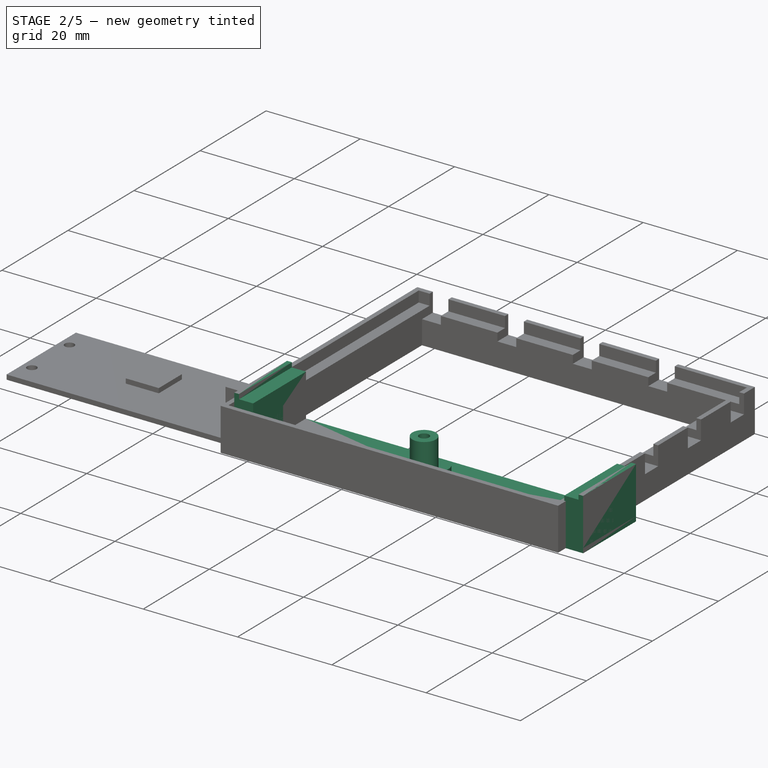
[diagram: stage 2 of 5 — iso view after this stage's code; geometry added in this stage tinted green]
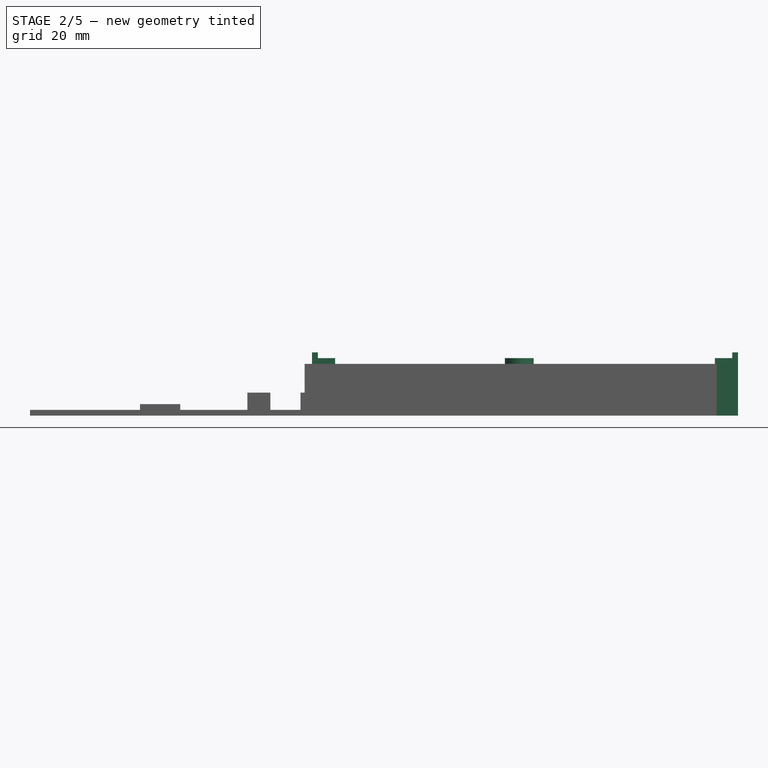
[diagram: stage 2 of 5 — front view after this stage's code; geometry added in this stage tinted green]
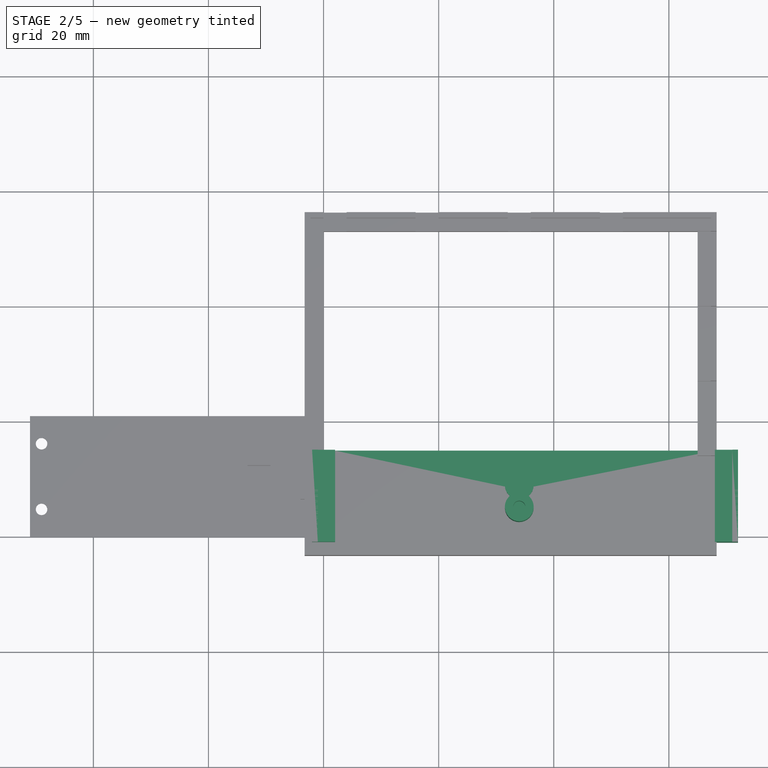
[diagram: stage 2 of 5 — top view after this stage's code; geometry added in this stage tinted green]
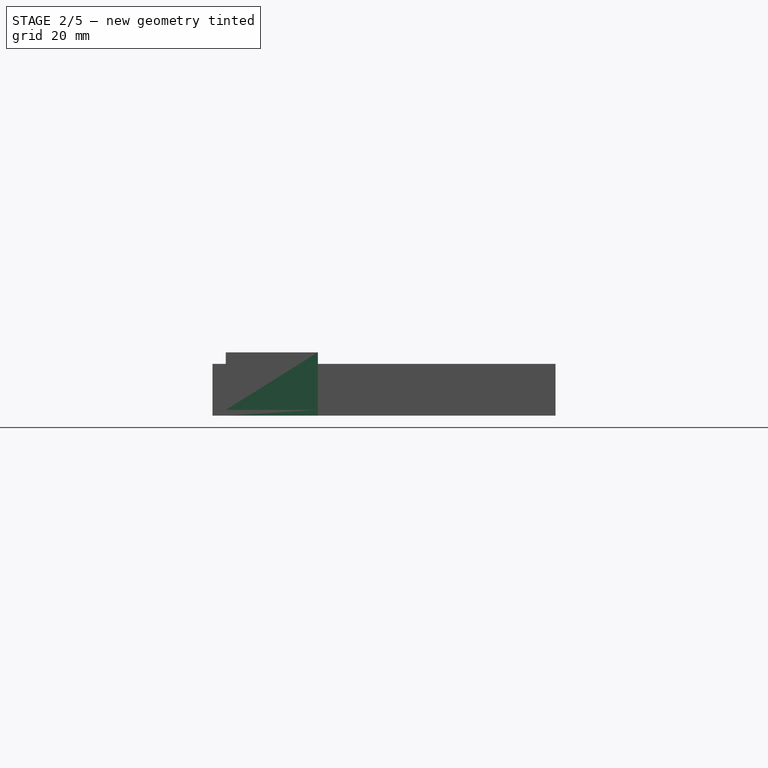
[diagram: stage 2 of 5 — right view after this stage's code; geometry added in this stage tinted green]
FEATURE [PartDesign::Body] Body003  label="Matrix Stand"
  Group = -> [ShapeBinder002,Sketch017,Pad009,Sketch015,Pocket004,Sketch016,Pocket006]
  Origin = -> Origin003
  Placement = pos=(8,6,-9) rot=(0,0,1;0rad)
  Tip = -> Pocket006
FEATURE [Sketcher::SketchObject] Sketch018
  FullyConstrained = true
  MapMode = 5
  Support = -> [XY_Plane004]
  sketch-geometry (5):
    g0: LineSegment StartX=0 StartY=0 StartZ=0 EndX=70 EndY=0 EndZ=0
    g1: LineSegment StartX=70 StartY=0 StartZ=0 EndX=70 EndY=14 EndZ=0
    g2: LineSegment StartX=70 StartY=14 StartZ=0 EndX=0 EndY=14 EndZ=0
    g3: LineSegment StartX=0 StartY=14 StartZ=0 EndX=0 EndY=0 EndZ=0
    g4: Circle CenterX=34 CenterY=9 CenterZ=0 NormalX=0 NormalY=0 NormalZ=1 AngleXU=0 Radius=1
  constraints (14):
    c: Coincident(g0,g1)
    c: Coincident(g1,g2)
    c: Coincident(g2,g3)
    c: Coincident(g3,g0)
    c: Horizontal(g0)
    c: Horizontal(g2)
    c: Vertical(g1)
    c: Vertical(g3)
    c: Coincident(g0,g-1)
    c: DistanceX(g2,g2) = 70
    c: DistanceY(g1,g1) = 14
    c: Radius(g4) = 1
    c: DistanceX(g0,g4) = 34
    c: DistanceY(g4,g2) = 5
FEATURE [PartDesign::Pad] Pad011  label="board pad"
  Direction = (1,1,1)
  Length = 1.1
  Length2 = 100
  Profile = -> Sketch018
  Type = 0
FEATURE [PartDesign::Body] Body004  label="PCB bottom"
  Group = -> [Sketch018,Pad011,Sketch022,Pad014]
  Origin = -> Origin005
  Placement = pos=(97,2,0) rot=(0,0,1;1.5708rad)
  Tip = -> Pad014
FEATURE [PartDesign::ShapeBinder] ShapeBinder003  label="origin post"
  Support = -> [Pad011]
  TraceSupport = false
FEATURE [Sketcher::SketchObject] Sketch019  label="highest001"
  ExternalGeometry = -> [ShapeBinder003]
  FullyConstrained = true
  MapMode = 5
  Support = -> [XY_Plane005]
  sketch-geometry (20):
    g0: LineSegment StartX=-2 StartY=15 StartZ=0 EndX=-1 EndY=15 EndZ=0
    g1: LineSegment StartX=-1 StartY=15 StartZ=0 EndX=-1 EndY=-1 EndZ=0
    g2: LineSegment StartX=-1 StartY=-1 StartZ=0 EndX=-2 EndY=-1 EndZ=0
    g3: LineSegment StartX=-2 StartY=-1 StartZ=0 EndX=-2 EndY=15 EndZ=0
    g4: LineSegment StartX=71 StartY=15 StartZ=0 EndX=72 EndY=15 EndZ=0
    g5: LineSegment StartX=72 StartY=15 StartZ=0 EndX=72 EndY=-1 EndZ=0
    g6: LineSegment StartX=72 StartY=-1 StartZ=0 EndX=71 EndY=-1 EndZ=0
    g7: LineSegment StartX=71 StartY=-1 StartZ=0 EndX=71 EndY=15 EndZ=0
    g8: LineSegment StartX=-1 StartY=15 StartZ=0 EndX=2 EndY=15 EndZ=0
    g9: LineSegment StartX=2 StartY=15 StartZ=0 EndX=2 EndY=-1 EndZ=0
    g10: LineSegment StartX=2 StartY=-1 StartZ=0 EndX=-1 EndY=-1 EndZ=0
    g11: LineSegment StartX=-1 StartY=-1 StartZ=0 EndX=-1 EndY=15 EndZ=0
    g12: LineSegment StartX=71 StartY=15 StartZ=0 EndX=68 EndY=15 EndZ=0
    g13: LineSegment StartX=68 StartY=15 StartZ=0 EndX=68 EndY=-1 EndZ=0
    g14: LineSegment StartX=68 StartY=-1 StartZ=0 EndX=71 EndY=-1 EndZ=0
    g15: LineSegment StartX=71 StartY=-1 StartZ=0 EndX=71 EndY=15 EndZ=0
    g16: LineSegment StartX=-2 StartY=15 StartZ=0 EndX=72 EndY=15 EndZ=0
    g17: LineSegment StartX=72 StartY=15 StartZ=0 EndX=72 EndY=-1 EndZ=0
    g18: LineSegment StartX=72 StartY=-1 StartZ=0 EndX=-2 EndY=-1 EndZ=0
    g19: LineSegment StartX=-2 StartY=-1 StartZ=0 EndX=-2 EndY=15 EndZ=0
  constraints (54):
    c: Coincident(g0,g1)
    c: Coincident(g1,g2)
    c: Coincident(g2,g3)
    c: Coincident(g3,g0)
    c: Horizontal(g0)
    c: Horizontal(g2)
    c: Vertical(g1)
    c: Vertical(g3)
    c: DistanceY(g-3,g0) = 6
    c: DistanceY(g1,g-3) = 10
    c: Coincident(g4,g5)
    c: Coincident(g5,g6)
    c: Coincident(g6,g7)
    c: Coincident(g7,g4)
    c: Horizontal(g4)
    c: Horizontal(g6)
    c: Vertical(g5)
    c: Vertical(g7)
    c: Horizontal(g0,g4)
    c: Horizontal(g1,g6)
    c: DistanceX(g0,g-3) = 35
    c: DistanceX(g-3,g4) = 37
    c: Equal(g2,g6)
    c: DistanceX(g4,g4) = 1
    c: Coincident(g8,g9)
    c: Coincident(g9,g10)
    c: Coincident(g10,g11)
    c: Coincident(g11,g8)
    c: Horizontal(g8)
    c: Horizontal(g10)
    c: Vertical(g9)
    c: Coincident(g8,g0)
    c: Coincident(g10,g1)
    c: Coincident(g12,g13)
    c: Coincident(g13,g14)
    c: Coincident(g14,g15)
    c: Coincident(g15,g12)
    c: Horizontal(g12)
    c: Horizontal(g14)
    c: Vertical(g13)
    c: Coincident(g12,g4)
    c: Coincident(g14,g6)
    c: Equal(g14,g10)
    c: DistanceX(g12,g12) = 3
    c: Coincident(g16,g17)
    c: Coincident(g17,g18)
    c: Coincident(g18,g19)
    c: Coincident(g19,g16)
    c: Horizontal(g16)
    c: Horizontal(g18)
    c: Vertical(g17)
    c: Vertical(g19)
    c: Coincident(g16,g0)
    c: Coincident(g17,g5)
FEATURE [PartDesign::Pad] Pad013  label="stand base"
  Direction = (1,1,1)
  Length = 1
  Length2 = 100
  Profile = -> Sketch019
  Type = 0
FEATURE [Sketcher::SketchObject] Sketch020  label="highest"
  ExternalGeometry = -> [ShapeBinder003]
  FullyConstrained = true
  MapMode = 5
  Support = -> [XY_Plane005]
  sketch-geometry (16):
    g0: LineSegment StartX=-2 StartY=15 StartZ=0 EndX=-1 EndY=15 EndZ=0
    g1: LineSegment StartX=-1 StartY=15 StartZ=0 EndX=-1 EndY=-1 EndZ=0
    g2: LineSegment StartX=-1 StartY=-1 StartZ=0 EndX=-2 EndY=-1 EndZ=0
    g3: LineSegment StartX=-2 StartY=-1 StartZ=0 EndX=-2 EndY=15 EndZ=0
    g4: LineSegment StartX=71 StartY=15 StartZ=0 EndX=72 EndY=15 EndZ=0
    g5: LineSegment StartX=72 StartY=15 StartZ=0 EndX=72 EndY=-1 EndZ=0
    g6: LineSegment StartX=72 StartY=-1 StartZ=0 EndX=71 EndY=-1 EndZ=0
    g7: LineSegment StartX=71 StartY=-1 StartZ=0 EndX=71 EndY=15 EndZ=0
    g8: LineSegment StartX=-1 StartY=15 StartZ=0 EndX=2 EndY=15 EndZ=0
    g9: LineSegment StartX=2 StartY=15 StartZ=0 EndX=2 EndY=-1 EndZ=0
    g10: LineSegment StartX=2 StartY=-1 StartZ=0 EndX=-1 EndY=-1 EndZ=0
    g11: LineSegment StartX=-1 StartY=-1 StartZ=0 EndX=-1 EndY=15 EndZ=0
    g12: LineSegment StartX=71 StartY=15 StartZ=0 EndX=68 EndY=15 EndZ=0
    g13: LineSegment StartX=68 StartY=15 StartZ=0 EndX=68 EndY=-1 EndZ=0
    g14: LineSegment StartX=68 StartY=-1 StartZ=0 EndX=71 EndY=-1 EndZ=0
    g15: LineSegment StartX=71 StartY=-1 StartZ=0 EndX=71 EndY=15 EndZ=0
  constraints (44):
    c: Coincident(g0,g1)
    c: Coincident(g1,g2)
    c: Coincident(g2,g3)
    c: Coincident(g3,g0)
    c: Horizontal(g0)
    c: Horizontal(g2)
    c: Vertical(g1)
    c: Vertical(g3)
    c: DistanceY(g-3,g0) = 6
    c: DistanceY(g1,g-3) = 10
    c: Coincident(g4,g5)
    c: Coincident(g5,g6)
    c: Coincident(g6,g7)
    c: Coincident(g7,g4)
    c: Horizontal(g4)
    c: Horizontal(g6)
    c: Vertical(g5)
    c: Vertical(g7)
    c: Horizontal(g0,g4)
    c: Horizontal(g1,g6)
    c: DistanceX(g0,g-3) = 35
    c: DistanceX(g-3,g4) = 37
    c: Equal(g2,g6)
    c: DistanceX(g4,g4) = 1
    c: Coincident(g8,g9)
    c: Coincident(g9,g10)
    c: Coincident(g10,g11)
    c: Coincident(g11,g8)
    c: Horizontal(g8)
    c: Horizontal(g10)
    c: Vertical(g9)
    c: Coincident(g8,g0)
    c: Coincident(g10,g1)
    c: Coincident(g12,g13)
    c: Coincident(g13,g14)
    c: Coincident(g14,g15)
    c: Coincident(g15,g12)
    c: Horizontal(g12)
    c: Horizontal(g14)
    c: Vertical(g13)
    c: Coincident(g12,g4)
    c: Coincident(g14,g6)
    c: Equal(g14,g10)
    c: DistanceX(g12,g12) = 3
FEATURE [Sketcher::SketchObject] Sketch003  label="highest002"
  ExternalGeometry = -> [ShapeBinder003]
  FullyConstrained = true
  MapMode = 5
  Placement = pos=(0,0,1) rot=(0,0,1;0rad)
  Support = -> [Pad013]
  sketch-geometry (16):
    g0: LineSegment StartX=-2 StartY=15 StartZ=0 EndX=-1 EndY=15 EndZ=0
    g1: LineSegment StartX=-1 StartY=15 StartZ=0 EndX=-1 EndY=-1 EndZ=0
    g2: LineSegment StartX=-1 StartY=-1 StartZ=0 EndX=-2 EndY=-1 EndZ=0
    g3: LineSegment StartX=-2 StartY=-1 StartZ=0 EndX=-2 EndY=15 EndZ=0
    g4: LineSegment StartX=71 StartY=15 StartZ=0 EndX=72 EndY=15 EndZ=0
    g5: LineSegment StartX=72 StartY=15 StartZ=0 EndX=72 EndY=-1 EndZ=0
    g6: LineSegment StartX=72 StartY=-1 StartZ=0 EndX=71 EndY=-1 EndZ=0
    g7: LineSegment StartX=71 StartY=-1 StartZ=0 EndX=71 EndY=15 EndZ=0
    g8: LineSegment StartX=-1 StartY=15 StartZ=0 EndX=2 EndY=15 EndZ=0
    g9: LineSegment StartX=2 StartY=15 StartZ=0 EndX=2 EndY=-1 EndZ=0
    g10: LineSegment StartX=2 StartY=-1 StartZ=0 EndX=-1 EndY=-1 EndZ=0
    g11: LineSegment StartX=-1 StartY=-1 StartZ=0 EndX=-1 EndY=15 EndZ=0
    g12: LineSegment StartX=71 StartY=15 StartZ=0 EndX=68 EndY=15 EndZ=0
    g13: LineSegment StartX=68 StartY=15 StartZ=0 EndX=68 EndY=-1 EndZ=0
    g14: LineSegment StartX=68 StartY=-1 StartZ=0 EndX=71 EndY=-1 EndZ=0
    g15: LineSegment StartX=71 StartY=-1 StartZ=0 EndX=71 EndY=15 EndZ=0
  constraints (44):
    c: Coincident(g0,g1)
    c: Coincident(g1,g2)
    c: Coincident(g2,g3)
    c: Coincident(g3,g0)
    c: Horizontal(g0)
    c: Horizontal(g2)
    c: Vertical(g1)
    c: Vertical(g3)
    c: DistanceY(g-3,g0) = 6
    c: DistanceY(g1,g-3) = 10
    c: Coincident(g4,g5)
    c: Coincident(g5,g6)
    c: Coincident(g6,g7)
    c: Coincident(g7,g4)
    c: Horizontal(g4)
    c: Horizontal(g6)
    c: Vertical(g5)
    c: Vertical(g7)
    c: Horizontal(g0,g4)
    c: Horizontal(g1,g6)
    c: DistanceX(g0,g-3) = 35
    c: DistanceX(g-3,g4) = 37
    c: Equal(g2,g6)
    c: DistanceX(g4,g4) = 1
    c: Coincident(g8,g9)
    c: Coincident(g9,g10)
    c: Coincident(g10,g11)
    c: Coincident(g11,g8)
    c: Horizontal(g8)
    c: Horizontal(g10)
    c: Vertical(g9)
    c: Coincident(g8,g0)
    c: Coincident(g10,g1)
    c: Coincident(g12,g13)
    c: Coincident(g13,g14)
    c: Coincident(g14,g15)
    c: Coincident(g15,g12)
    c: Horizontal(g12)
    c: Horizontal(g14)
    c: Vertical(g13)
    c: Coincident(g12,g4)
    c: Coincident(g14,g6)
    c: Equal(g14,g10)
    c: DistanceX(g12,g12) = 3
FEATURE [PartDesign::Pad] Pad002  label="highest stand"
  BaseFeature = -> Pad013
  Direction = (1,1,1)
  Length = 10
  Length2 = 100
  Profile = -> Sketch003
  Type = 0
FEATURE [PartDesign::Pad] Pad012  label="lowest stand block"
  BaseFeature = -> Pad002
  Direction = (1,1,1)
  Length = 9
  Length2 = 100
  Profile = -> Pad002 [Face6]
  Type = 0
FEATURE [Sketcher::SketchObject] Sketch021
  ExternalGeometry = -> [Pad012]
  FullyConstrained = true
  MapMode = 5
  Placement = pos=(0,0,10) rot=(0,0,1;0rad)
  Support = -> [Pad012]
  sketch-geometry (4):
    g0: LineSegment StartX=2 StartY=15 StartZ=0 EndX=68 EndY=15 EndZ=0
    g1: LineSegment StartX=68 StartY=15 StartZ=0 EndX=68 EndY=-1 EndZ=0
    g2: LineSegment StartX=68 StartY=-1 StartZ=0 EndX=2 EndY=-1 EndZ=0
    g3: LineSegment StartX=2 StartY=-1 StartZ=0 EndX=2 EndY=15 EndZ=0
  constraints (12):
    c: Coincident(g0,g1)
    c: Coincident(g1,g2)
    c: Coincident(g2,g3)
    c: Coincident(g3,g0)
    c: Horizontal(g0)
    c: Horizontal(g2)
    c: Vertical(g1)
    c: Vertical(g3)
    c: Horizontal(g-4,g1)
    c: Horizontal(g-4,g0)
    c: DistanceX(g1,g-4) = 3
    c: DistanceX(g-3,g2) = 3
FEATURE [PartDesign::Pocket] Pocket008  label="lowest stand cutout"
  BaseFeature = -> Pad012
  Length = 9
  Length2 = 100
  Profile = -> Sketch021
  Type = 0
FEATURE [Sketcher::SketchObject] Sketch023
  ExternalGeometry = -> [ShapeBinder003]
  FullyConstrained = true
  MapMode = 5
  Placement = pos=(0,0,1) rot=(0,0,1;0rad)
  Support = -> [Pocket008]
  sketch-geometry (1):
    g0: Circle CenterX=34 CenterY=9 CenterZ=0 NormalX=0 NormalY=0 NormalZ=1 AngleXU=0 Radius=2.5
  constraints (2):
    c: Coincident(g0,g-3)
    c: Radius(g0) = 2.5
FEATURE [PartDesign::Pad] Pad010  label="spacer "
  BaseFeature = -> Pocket008
  Direction = (1,1,1)
  Length = 1.9
  Length2 = 100
  Profile = -> Sketch023
  Type = 0
FEATURE [PartDesign::Pad] Pad019  label="lowest stand block001"
  BaseFeature = -> Pad016
  Direction = (1,1,1)
  Length = 9
  Length2 = 100
  Profile = -> Pad016 [Face6]
  Type = 0
FEATURE [Sketcher::SketchObject] Sketch031
  ExternalGeometry = -> [Pad019]
  FullyConstrained = true
  MapMode = 5
  Placement = pos=(0,0,10) rot=(0,0,1;0rad)
  Support = -> [Pad019]
  sketch-geometry (4):
    g0: LineSegment StartX=2 StartY=8.08 StartZ=0 EndX=68 EndY=8.08 EndZ=0
    g1: LineSegment StartX=68 StartY=8.08 StartZ=0 EndX=68 EndY=1.08 EndZ=0
    g2: LineSegment StartX=68 StartY=1.08 StartZ=0 EndX=2 EndY=1.08 EndZ=0
    g3: LineSegment StartX=2 StartY=1.08 StartZ=0 EndX=2 EndY=8.08 EndZ=0
  constraints (12):
    c: Coincident(g0,g1)
    c: Coincident(g1,g2)
    c: Coincident(g2,g3)
    c: Coincident(g3,g0)
    c: Horizontal(g0)
    c: Horizontal(g2)
    c: Vertical(g1)
    c: Vertical(g3)
    c: Horizontal(g-4,g1)
    c: Horizontal(g-4,g0)
    c: DistanceX(g1,g-4) = 3
    c: DistanceX(g-3,g2) = 3
FEATURE [PartDesign::Pocket] Pocket009  label="lowest stand cutout001"
  BaseFeature = -> Pad019
  Length = 9
  Length2 = 100
  Profile = -> Sketch031
  Type = 0
FEATURE [Sketcher::SketchObject] Sketch032
  ExternalGeometry = -> [ShapeBinder004]
  FullyConstrained = true
  MapMode = 5
  Placement = pos=(0,0,1) rot=(0,0,1;0rad)
  Support = -> [Pocket009]
  sketch-geometry (1):
    g0: Circle CenterX=34 CenterY=5.08 CenterZ=0 NormalX=0 NormalY=0 NormalZ=1 AngleXU=0 Radius=2.5
  constraints (2):
    c: Coincident(g0,g-3)
    c: Radius(g0) = 2.5
FEATURE [PartDesign::Pad] Pad020  label="spacer 001"
  BaseFeature = -> Pocket009
  Direction = (1,1,1)
  Length = 9
  Length2 = 100
  Profile = -> Sketch032
  Type = 0
FEATURE [Sketcher::SketchObject] Sketch030
  ExternalGeometry = -> [Pad020]
  FullyConstrained = true
  MapMode = 5
  Placement = pos=(0,0,10) rot=(0,0,1;0rad)
  Support = -> [Pad020]
  sketch-geometry (1):
    g0: Circle CenterX=34 CenterY=5.08 CenterZ=0 NormalX=0 NormalY=0 NormalZ=1 AngleXU=0 Radius=1.05
  constraints (2):
    c: Coincident(g0,g-3)
    c: Radius(g0) = 1.05
FEATURE [PartDesign::Pocket] Pocket010  label="tower hole001"
  BaseFeature = -> Pad020
  Length = 5
  Length2 = 100
  Profile = -> Sketch030
  Type = 0
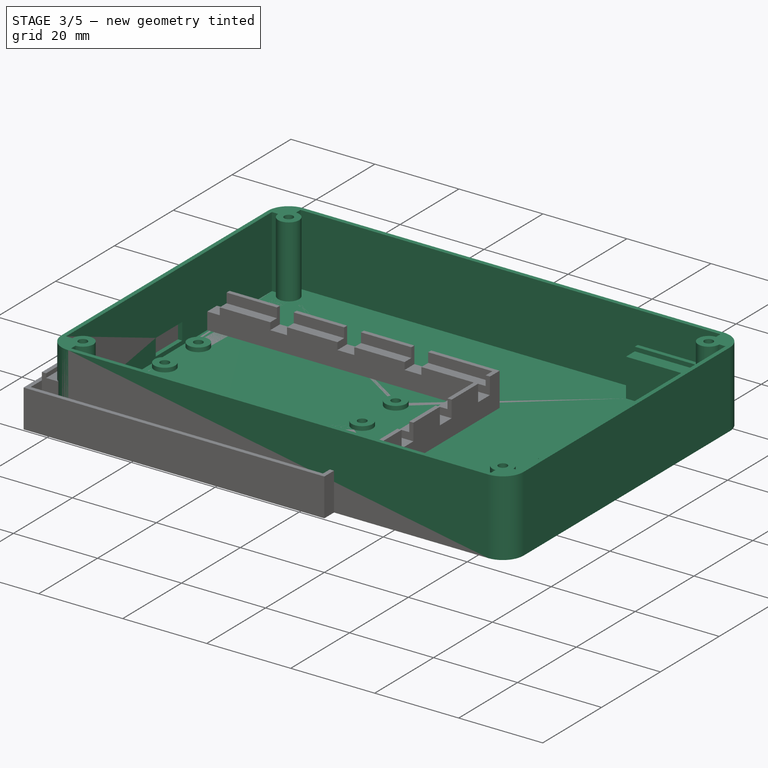
[diagram: stage 3 of 5 — iso view after this stage's code; geometry added in this stage tinted green]
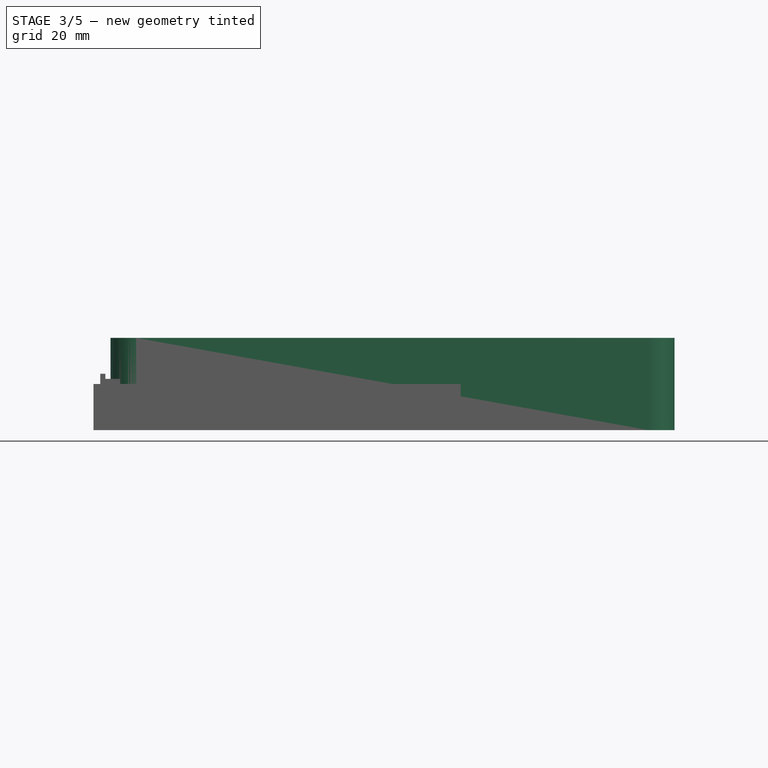
[diagram: stage 3 of 5 — front view after this stage's code; geometry added in this stage tinted green]
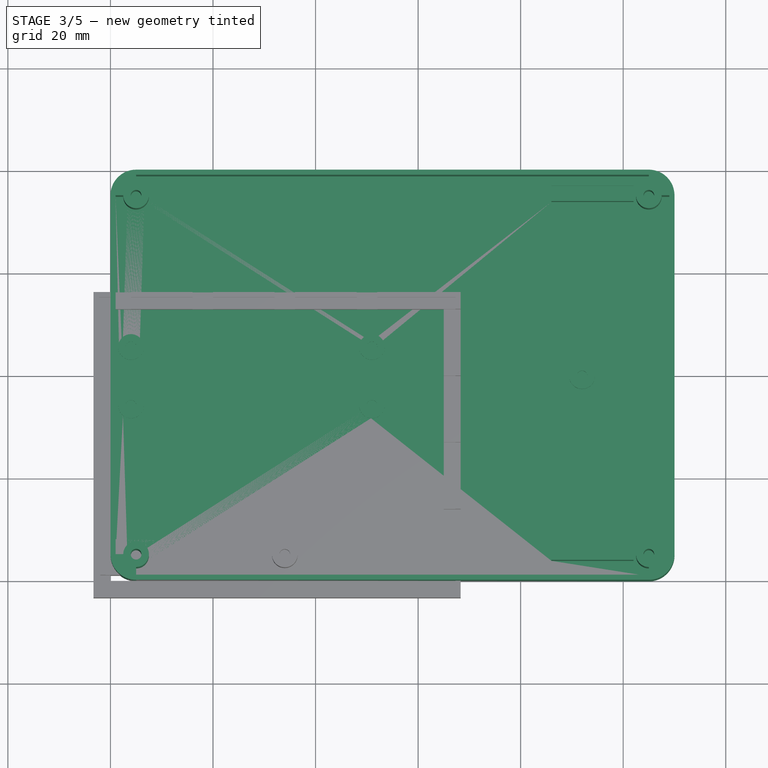
[diagram: stage 3 of 5 — top view after this stage's code; geometry added in this stage tinted green]
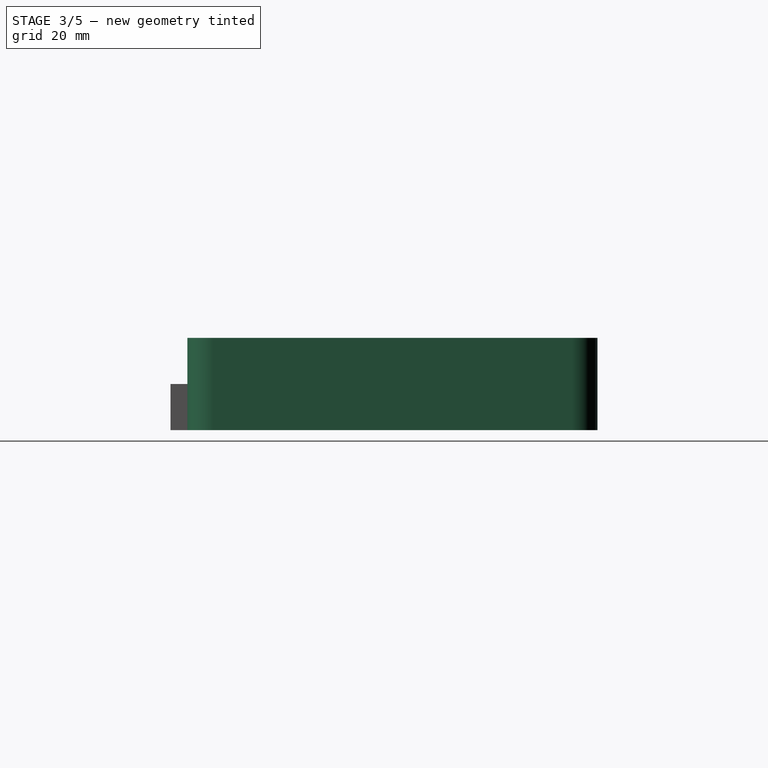
[diagram: stage 3 of 5 — right view after this stage's code; geometry added in this stage tinted green]
FEATURE [PartDesign::Body] Body001  label="PCB RPico"
  Group = -> [Sketch004,Pad003,Sketch005,Pad004,Sketch006,Pad005]
  Origin = -> Origin001
  Placement = pos=(-2,46.5,-8) rot=(0,0,1;3.14159rad)
  Tip = -> Pad005
FEATURE [Sketcher::SketchObject] Sketch007
  FullyConstrained = true
  MapMode = 5
  Support = -> [XY_Plane002]
  sketch-geometry (8):
    g0: LineSegment StartX=0 StartY=0 StartZ=0 EndX=110 EndY=0 EndZ=0
    g1: LineSegment StartX=110 StartY=0 StartZ=0 EndX=110 EndY=80 EndZ=0
    g2: LineSegment StartX=110 StartY=80 StartZ=0 EndX=0 EndY=80 EndZ=0
    g3: LineSegment StartX=0 StartY=80 StartZ=0 EndX=0 EndY=0 EndZ=0
    g4: Circle CenterX=5 CenterY=75 CenterZ=0 NormalX=0 NormalY=0 NormalZ=1 AngleXU=0 Radius=5
    g5: Circle CenterX=5 CenterY=5 CenterZ=0 NormalX=0 NormalY=0 NormalZ=1 AngleXU=0 Radius=5
    g6: Circle CenterX=105 CenterY=5 CenterZ=0 NormalX=0 NormalY=0 NormalZ=1 AngleXU=0 Radius=5
    g7: Circle CenterX=105 CenterY=75 CenterZ=0 NormalX=0 NormalY=0 NormalZ=1 AngleXU=0 Radius=5
  constraints (23):
    c: Coincident(g0,g1)
    c: Coincident(g1,g2)
    c: Coincident(g2,g3)
    c: Coincident(g3,g0)
    c: Horizontal(g0)
    c: Horizontal(g2)
    c: Vertical(g1)
    c: Vertical(g3)
    c: DistanceX(g2,g2) = 110
    c: DistanceY(g1,g1) = 80
    c: Coincident(g0,g-1)
    c: Tangent(g4,g3)
    c: Tangent(g2,g4)
    c: Tangent(g7,g2)
    c: Tangent(g7,g1)
    c: Tangent(g6,g1)
    c: Tangent(g0,g6)
    c: Tangent(g5,g0)
    c: Equal(g4,g5)
    c: Equal(g5,g6)
    c: Equal(g6,g7)
    c: Tangent(g5,g3)
    c: Radius(g4) = 5
FEATURE [PartDesign::Pad] Pad006  label="Base002"
  Direction = (1,1,1)
  Length = 18
  Length2 = 100
  Profile = -> Sketch007
  Type = 0
  expr: Length = <<tnavM>>.tnavHeight - <<tnavM>>.outerThickness
FEATURE [PartDesign::Fillet] Fillet
  Base = -> Pad006 [Edge2,Edge1,Edge5,Edge8]
  BaseFeature = -> Pad006
  Radius = 5
  SupportTransform = false
FEATURE [Sketcher::SketchObject] Sketch008
  ExternalGeometry = -> [Fillet]
  FullyConstrained = true
  MapMode = 5
  Placement = pos=(0,0,18) rot=(0,0,1;0rad)
  Support = -> [Fillet]
  expr: Constraints[34] = <<tnavM>>.screwRad
  expr: Constraints[59] = <<tnavM>>.screwTRad
  expr: Constraints[24] = <<tnavM>>.outerThickness
  sketch-geometry (40):
    g0: LineSegment StartX=5 StartY=79 StartZ=0 EndX=105 EndY=79 EndZ=0
    g1: LineSegment StartX=109 StartY=75 StartZ=0 EndX=109 EndY=5 EndZ=0
    g2: LineSegment StartX=105 StartY=1 StartZ=0 EndX=5 EndY=1 EndZ=0
    g3: LineSegment StartX=105 StartY=79 StartZ=0 EndX=105 EndY=80 EndZ=0
    g4: LineSegment StartX=109 StartY=75 StartZ=0 EndX=110 EndY=75 EndZ=0
    g5: LineSegment StartX=5 StartY=1 StartZ=0 EndX=5 EndY=0 EndZ=0
    g6: LineSegment StartX=1 StartY=5 StartZ=0 EndX=-9e-16 EndY=5 EndZ=0
    g7: LineSegment StartX=1 StartY=75 StartZ=0 EndX=0 EndY=75 EndZ=0
    g8: LineSegment StartX=5 StartY=79 StartZ=0 EndX=5 EndY=80 EndZ=0
    g9: LineSegment StartX=105 StartY=1 StartZ=0 EndX=105 EndY=0 EndZ=0
    g10: LineSegment StartX=109 StartY=5 StartZ=0 EndX=110 EndY=5 EndZ=0
    g11: ArcOfCircle CenterX=105 CenterY=5 CenterZ=0 NormalX=0 NormalY=0 NormalZ=1 AngleXU=0 Radius=4 StartAngle=4.71239 EndAngle=6.28319
    g12: ArcOfCircle CenterX=105 CenterY=75 CenterZ=0 NormalX=0 NormalY=0 NormalZ=1 AngleXU=0 Radius=4 StartAngle=2e-16 EndAngle=1.5708
    g13: Circle CenterX=5 CenterY=75 CenterZ=0 NormalX=0 NormalY=0 NormalZ=1 AngleXU=0 Radius=1.05
    g14: Circle CenterX=5 CenterY=5 CenterZ=0 NormalX=0 NormalY=0 NormalZ=1 AngleXU=0 Radius=1.05
    g15: Circle CenterX=105 CenterY=5 CenterZ=0 NormalX=0 NormalY=0 NormalZ=1 AngleXU=0 Radius=1.05
    g16: Circle CenterX=105 CenterY=75 CenterZ=0 NormalX=0 NormalY=0 NormalZ=1 AngleXU=0 Radius=1.05
    g17: LineSegment StartX=105 StartY=79 StartZ=0 EndX=105 EndY=75 EndZ=0
    g18: LineSegment StartX=105 StartY=75 StartZ=0 EndX=109 EndY=75 EndZ=0
    g19: LineSegment StartX=109 StartY=5 StartZ=0 EndX=105 EndY=5 EndZ=0
    g20: LineSegment StartX=105 StartY=5 StartZ=0 EndX=105 EndY=1 EndZ=0
    g21: LineSegment StartX=5 StartY=5 StartZ=0 EndX=1 EndY=5 EndZ=0
    g22: LineSegment StartX=5 StartY=5 StartZ=0 EndX=5 EndY=1 EndZ=0
    g23: LineSegment StartX=1 StartY=75 StartZ=0 EndX=5 EndY=75 EndZ=0
    g24: LineSegment StartX=5 StartY=79 StartZ=0 EndX=5 EndY=75 EndZ=0
    g25: ArcOfCircle CenterX=5 CenterY=75 CenterZ=0 NormalX=0 NormalY=0 NormalZ=1 AngleXU=0 Radius=2.5 StartAngle=3.14159 EndAngle=7.85398
    g26: ArcOfCircle CenterX=105 CenterY=75 CenterZ=0 NormalX=0 NormalY=0 NormalZ=1 AngleXU=0 Radius=2.5 StartAngle=1.5708 EndAngle=6.28319
    g27: LineSegment StartX=107.5 StartY=75 StartZ=0 EndX=109 EndY=75 EndZ=0
    g28: LineSegment StartX=5 StartY=77.5 StartZ=0 EndX=5 EndY=79 EndZ=0
    g29: ArcOfCircle CenterX=5 CenterY=5 CenterZ=0 NormalX=0 NormalY=0 NormalZ=1 AngleXU=0 Radius=2.5 StartAngle=4.71239 EndAngle=9.42478
    g30: ArcOfCircle CenterX=105 CenterY=5 CenterZ=0 NormalX=0 NormalY=0 NormalZ=1 AngleXU=0 Radius=2.5 StartAngle=-1.8e-15 EndAngle=4.71239
    g31: LineSegment StartX=107.5 StartY=5 StartZ=0 EndX=109 EndY=5 EndZ=0
    g32: LineSegment StartX=5 StartY=2.5 StartZ=0 EndX=5 EndY=1 EndZ=0
    g33: LineSegment StartX=2.5 StartY=5 StartZ=0 EndX=1 EndY=5 EndZ=0
    g34: LineSegment StartX=2.5 StartY=75 StartZ=0 EndX=1 EndY=75 EndZ=0
    g35: LineSegment StartX=1 StartY=75 StartZ=0 EndX=1 EndY=5 EndZ=0
    g36: ArcOfCircle CenterX=5 CenterY=75 CenterZ=0 NormalX=0 NormalY=0 NormalZ=1 AngleXU=0 Radius=4 StartAngle=1.5708 EndAngle=3.14159
    g37: ArcOfCircle CenterX=5 CenterY=5 CenterZ=0 NormalX=0 NormalY=0 NormalZ=1 AngleXU=0 Radius=4 StartAngle=3.14159 EndAngle=4.71239
    g38: LineSegment StartX=105 StartY=2.5 StartZ=0 EndX=105 EndY=1 EndZ=0
    g39: LineSegment StartX=105 StartY=77.5 StartZ=0 EndX=105 EndY=79 EndZ=0
  constraints (96):
    c: Horizontal(g0)
    c: Vertical(g1)
    c: Horizontal(g2)
    c: Coincident(g3,g0)
    c: Coincident(g3,g-10)
    c: Coincident(g4,g-10)
    c: Coincident(g5,g2)
    c: Coincident(g5,g-7)
    c: Coincident(g6,g-6)
    c: Horizontal(g6)
    c: Vertical(g5)
    c: Coincident(g7,g-5)
    c: Coincident(g8,g0)
    c: Coincident(g8,g-4)
    c: Horizontal(g7)
    c: Coincident(g9,g2)
    c: Coincident(g9,g-8)
    c: Coincident(g10,g1)
    c: Coincident(g10,g-9)
    c: Horizontal(g10)
    c: Vertical(g9)
    c: Horizontal(g4)
    c: Coincident(g4,g1)
    c: Vertical(g3)
    c: DistanceX(g6,g6) = 1
    c: Coincident(g11,g-8)
    c: Coincident(g11,g2)
    c: Coincident(g11,g1)
    c: Coincident(g12,g-10)
    c: Coincident(g12,g0)
    c: Coincident(g12,g1)
    c: Equal(g13,g14)
    c: Equal(g14,g15)
    c: Equal(g15,g16)
    c: Radius(g16) = 1.05
    c: Coincident(g15,g11)
    c: Coincident(g16,g12)
    c: Coincident(g17,g0)
    c: Coincident(g17,g16)
    c: Coincident(g18,g16)
    c: Coincident(g18,g1)
    c: Coincident(g19,g1)
    c: Coincident(g19,g15)
    c: Coincident(g20,g15)
    c: Coincident(g20,g2)
    c: Coincident(g21,g14)
    c: Coincident(g22,g14)
    c: Coincident(g22,g2)
    c: Coincident(g23,g13)
    c: Coincident(g24,g0)
    c: Coincident(g24,g13)
    c: Coincident(g25,g13)
    c: PointOnObject(g25,g24)
    c: PointOnObject(g25,g23)
    c: Coincident(g26,g16)
    c: PointOnObject(g26,g18)
    c: Coincident(g27,g26)
    c: Coincident(g27,g1)
    c: Equal(g26,g25)
    c: Radius(g26) = 2.5
    c: Coincident(g28,g25)
    c: Coincident(g28,g0)
    c: Coincident(g29,g14)
    c: PointOnObject(g29,g21)
    c: PointOnObject(g29,g22)
    c: Coincident(g30,g15)
    c: PointOnObject(g30,g19)
    c: Coincident(g13,g-4)
    c: Equal(g25,g30)
    c: Equal(g30,g29)
    c: Coincident(g31,g30)
    c: Coincident(g31,g1)
    c: Coincident(g32,g29)
    c: Coincident(g32,g2)
    c: Coincident(g33,g29)
    c: Coincident(g33,g6)
    c: Coincident(g34,g25)
    c: Coincident(g34,g7)
    c: Coincident(g35,g33)
    c: Coincident(g21,g33)
    c: Coincident(g34,g35)
    c: Vertical(g8)
    c: Coincident(g23,g34)
    c: Coincident(g36,g13)
    c: Coincident(g36,g34)
    c: Coincident(g36,g0)
    c: Coincident(g37,g14)
    c: Coincident(g37,g33)
    c: Coincident(g37,g2)
    c: Coincident(g14,g-6)
    c: PointOnObject(g26,g17)
    c: PointOnObject(g30,g20)
    c: Coincident(g38,g30)
    c: Coincident(g38,g2)
    c: Coincident(g39,g26)
    c: Coincident(g39,g0)
FEATURE [PartDesign::Pocket] Pocket001
  BaseFeature = -> Fillet
  Length = 17
  Length2 = 100
  Profile = -> Sketch008
  Type = 0
  expr: Length = <<tnavM>>.tnavHeight - <<tnavM>>.outerThickness * 2
FEATURE [PartDesign::ShapeBinder] ShapeBinder  label="Matrix Contour"
  Placement = pos=(10,10,10) rot=(0,0,1;0rad)
  TraceSupport = true
FEATURE [PartDesign::ShapeBinder] ShapeBinder001  label="Rpi contour"
  Placement = pos=(2,50.5,2) rot=(0,0,1;3.14159rad)
  Support = -> [Pad005]
  TraceSupport = true
FEATURE [Sketcher::SketchObject] Sketch009
  ExternalGeometry = -> [ShapeBinder001]
  FullyConstrained = true
  MapMode = 5
  Placement = pos=(0,0,1) rot=(0,0,1;0rad)
  Support = -> [Pocket001]
  expr: Constraints[15] = <<tnavM>>.screwRad
  expr: Constraints[11] = <<tnavM>>.screwTRad
  sketch-geometry (8):
    g0: Circle CenterX=4 CenterY=45.7 CenterZ=0 NormalX=0 NormalY=0 NormalZ=1 AngleXU=0 Radius=1.05
    g1: Circle CenterX=4 CenterY=45.7 CenterZ=0 NormalX=0 NormalY=0 NormalZ=1 AngleXU=0 Radius=2.5
    g2: Circle CenterX=4 CenterY=34.3 CenterZ=0 NormalX=0 NormalY=0 NormalZ=1 AngleXU=0 Radius=1.05
    g3: Circle CenterX=4 CenterY=34.3 CenterZ=0 NormalX=0 NormalY=0 NormalZ=1 AngleXU=0 Radius=2.5
    g4: Circle CenterX=51 CenterY=45.7 CenterZ=0 NormalX=0 NormalY=0 NormalZ=1 AngleXU=0 Radius=1.05
    g5: Circle CenterX=51 CenterY=45.7 CenterZ=0 NormalX=0 NormalY=0 NormalZ=1 AngleXU=0 Radius=2.5
    g6: Circle CenterX=51 CenterY=34.3 CenterZ=0 NormalX=0 NormalY=0 NormalZ=1 AngleXU=0 Radius=1.05
    g7: Circle CenterX=51 CenterY=34.3 CenterZ=0 NormalX=0 NormalY=0 NormalZ=1 AngleXU=0 Radius=2.5
  constraints (16):
    c: Coincident(g0,g-3)
    c: Coincident(g1,g0)
    c: Coincident(g2,g-4)
    c: Coincident(g3,g2)
    c: Coincident(g4,g-5)
    c: Coincident(g5,g4)
    c: Coincident(g6,g-6)
    c: Coincident(g7,g6)
    c: Equal(g7,g5)
    c: Equal(g5,g3)
    c: Equal(g3,g1)
    c: Radius(g1) = 2.5
    c: Equal(g0,g2)
    c: Equal(g2,g6)
    c: Equal(g6,g4)
    c: Radius(g0) = 1.05
FEATURE [PartDesign::Pad] Pad007  label="Rpi stand"
  BaseFeature = -> Pocket001
  Direction = (1,1,1)
  Length = 1
  Length2 = 100
  Profile = -> Sketch009
  Type = 0
FEATURE [Sketcher::SketchObject] Sketch010
  ExternalGeometry = -> [ShapeBinder001]
  FullyConstrained = true
  MapMode = 5
  Placement = pos=(0,0,0) rot=(0.57735,-0.57735,-0.57735;2.0944rad)
  Support = -> [Pad007]
  sketch-geometry (4):
    g0: LineSegment StartX=-44.5 StartY=6 StartZ=0 EndX=-35.5 EndY=6 EndZ=0
    g1: LineSegment StartX=-35.5 StartY=6 StartZ=0 EndX=-35.5 EndY=2 EndZ=0
    g2: LineSegment StartX=-35.5 StartY=2 StartZ=0 EndX=-44.5 EndY=2 EndZ=0
    g3: LineSegment StartX=-44.5 StartY=2 StartZ=0 EndX=-44.5 EndY=6 EndZ=0
  constraints (12):
    c: Coincident(g0,g1)
    c: Coincident(g1,g2)
    c: Coincident(g2,g3)
    c: Coincident(g3,g0)
    c: Horizontal(g0)
    c: Horizontal(g2)
    c: Vertical(g1)
    c: Vertical(g3)
    c: Horizontal(g-4,g0)
    c: DistanceX(g0,g-4) = 0.5
    c: DistanceY(g1,g-6) = 1
    c: DistanceX(g-6,g0) = 0.5
FEATURE [PartDesign::Pocket] Pocket002  label="USB pocket"
  BaseFeature = -> Pad007
  Length = 5
  Length2 = 100
  Profile = -> Sketch010
  Type = 2
FEATURE [Sketcher::SketchObject] Sketch024
  ExternalGeometry = -> [Pad010]
  FullyConstrained = true
  MapMode = 5
  Placement = pos=(0,0,2.9) rot=(0,0,1;0rad)
  Support = -> [Pad010]
  sketch-geometry (1):
    g0: Circle CenterX=34 CenterY=9 CenterZ=0 NormalX=0 NormalY=0 NormalZ=1 AngleXU=0 Radius=1.05
  constraints (2):
    c: Coincident(g0,g-3)
    c: Radius(g0) = 1.05
FEATURE [PartDesign::Pocket] Pocket007  label="tower hole"
  BaseFeature = -> Pad010
  Length = 5
  Length2 = 100
  Profile = -> Sketch024
  Type = 0
FEATURE [PartDesign::Body] Body007  label="PCB side"
  Group = -> [Sketch029,Pad017,Sketch033,Pad021,Sketch025,Pad015]
  Origin = -> Origin007
  Placement = pos=(75,71,0) rot=(0,0,1;3.14159rad)
  Tip = -> Pad015
FEATURE [App::MeasureDistance] Distance  label="Distance: 9.00 mm"
  Distance = 9.0001
  P1 = (98,-0.440569,-9)
  P2 = (98,-0.483012,0)
FEATURE [PartDesign::ShapeBinder] ShapeBinder005  label="BotStandOutline"
  Placement = pos=(101,6,0) rot=(0,0,1;1.5708rad)
  Support = -> [Pocket007]
  TraceSupport = true
FEATURE [Sketcher::SketchObject] Sketch034
  ExternalGeometry = -> [ShapeBinder005]
  FullyConstrained = true
  MapMode = 5
  Placement = pos=(0,0,1) rot=(0,0,1;0rad)
  Support = -> [Pocket002]
  expr: Constraints[2] = <<tnavM>>.screwRad
  expr: Constraints[3] = <<tnavM>>.screwTRad
  sketch-geometry (2):
    g0: Circle CenterX=92 CenterY=40 CenterZ=0 NormalX=0 NormalY=0 NormalZ=1 AngleXU=0 Radius=2.5
    g1: Circle CenterX=92 CenterY=40 CenterZ=0 NormalX=0 NormalY=0 NormalZ=1 AngleXU=0 Radius=1.05
  constraints (4):
    c: Coincident(g0,g-7)
    c: Coincident(g1,g0)
    c: Radius(g1) = 1.05
    c: Radius(g0) = 2.5
FEATURE [PartDesign::Pad] Pad022  label="BotStand_spacer"
  BaseFeature = -> Pocket002
  Direction = (1,1,1)
  Length = 1.9
  Length2 = 100
  Profile = -> Sketch034
  Type = 0
FEATURE [Sketcher::SketchObject] Sketch035
  ExternalGeometry = -> [ShapeBinder005]
  FullyConstrained = true
  MapMode = 5
  Placement = pos=(0,0,1) rot=(0,0,1;0rad)
  Support = -> [Pad022]
  sketch-geometry (8):
    g0: LineSegment StartX=86 StartY=78 StartZ=0 EndX=102 EndY=78 EndZ=0
    g1: LineSegment StartX=102 StartY=78 StartZ=0 EndX=102 EndY=77 EndZ=0
    g2: LineSegment StartX=102 StartY=77 StartZ=0 EndX=86 EndY=77 EndZ=0
    g3: LineSegment StartX=86 StartY=77 StartZ=0 EndX=86 EndY=78 EndZ=0
    g4: LineSegment StartX=86 StartY=4 StartZ=0 EndX=102 EndY=4 EndZ=0
    g5: LineSegment StartX=102 StartY=4 StartZ=0 EndX=102 EndY=5 EndZ=0
    g6: LineSegment StartX=102 StartY=5 StartZ=0 EndX=86 EndY=5 EndZ=0
    g7: LineSegment StartX=86 StartY=5 StartZ=0 EndX=86 EndY=4 EndZ=0
  constraints (20):
    c: Coincident(g0,g1)
    c: Coincident(g1,g2)
    c: Coincident(g2,g3)
    c: Coincident(g3,g0)
    c: Horizontal(g2)
    c: Vertical(g1)
    c: Vertical(g3)
    c: Coincident(g0,g-3)
    c: Coincident(g4,g5)
    c: Coincident(g5,g6)
    c: Coincident(g6,g7)
    c: Coincident(g7,g4)
    c: Horizontal(g6)
    c: Vertical(g5)
    c: Vertical(g7)
    c: Coincident(g4,g-4)
    c: Coincident(g4,g-4)
    c: Coincident(g0,g-3)
    c: Equal(g3,g7)
    c: DistanceY(g3,g3) = 1
FEATURE [PartDesign::Pad] Pad023  label="BotStand_highest"
  BaseFeature = -> Pad022
  Direction = (1,1,1)
  Length = 10
  Length2 = 100
  Profile = -> Sketch035
  Type = 0
FEATURE [Sketcher::SketchObject] Sketch036
  ExternalGeometry = -> [ShapeBinder005]
  FullyConstrained = true
  MapMode = 5
  Placement = pos=(0,0,1) rot=(0,0,1;0rad)
  Support = -> [Pad023]
  sketch-geometry (8):
    g0: LineSegment StartX=86 StartY=78 StartZ=0 EndX=102 EndY=78 EndZ=0
    g1: LineSegment StartX=102 StartY=78 StartZ=0 EndX=102 EndY=74 EndZ=0
    g2: LineSegment StartX=102 StartY=74 StartZ=0 EndX=86 EndY=74 EndZ=0
    g3: LineSegment StartX=86 StartY=74 StartZ=0 EndX=86 EndY=78 EndZ=0
    g4: LineSegment StartX=86 StartY=8 StartZ=0 EndX=102 EndY=8 EndZ=0
    g5: LineSegment StartX=102 StartY=8 StartZ=0 EndX=102 EndY=4 EndZ=0
    g6: LineSegment StartX=102 StartY=4 StartZ=0 EndX=86 EndY=4 EndZ=0
    g7: LineSegment StartX=86 StartY=4 StartZ=0 EndX=86 EndY=8 EndZ=0
  constraints (20):
    c: Coincident(g0,g1)
    c: Coincident(g1,g2)
    c: Coincident(g2,g3)
    c: Coincident(g3,g0)
    c: Horizontal(g0)
    c: Horizontal(g2)
    c: Vertical(g1)
    c: Vertical(g3)
    c: Coincident(g0,g-3)
    c: Coincident(g1,g-4)
    c: Coincident(g4,g5)
    c: Coincident(g5,g6)
    c: Coincident(g6,g7)
    c: Coincident(g7,g4)
    c: Horizontal(g4)
    c: Horizontal(g6)
    c: Vertical(g5)
    c: Vertical(g7)
    c: Coincident(g4,g-6)
    c: Coincident(g5,g-5)
FEATURE [PartDesign::Pad] Pad024  label="botStand_lowest"
  BaseFeature = -> Pad023
  Direction = (1,1,1)
  Length = 9
  Length2 = 100
  Profile = -> Sketch036
  Type = 0
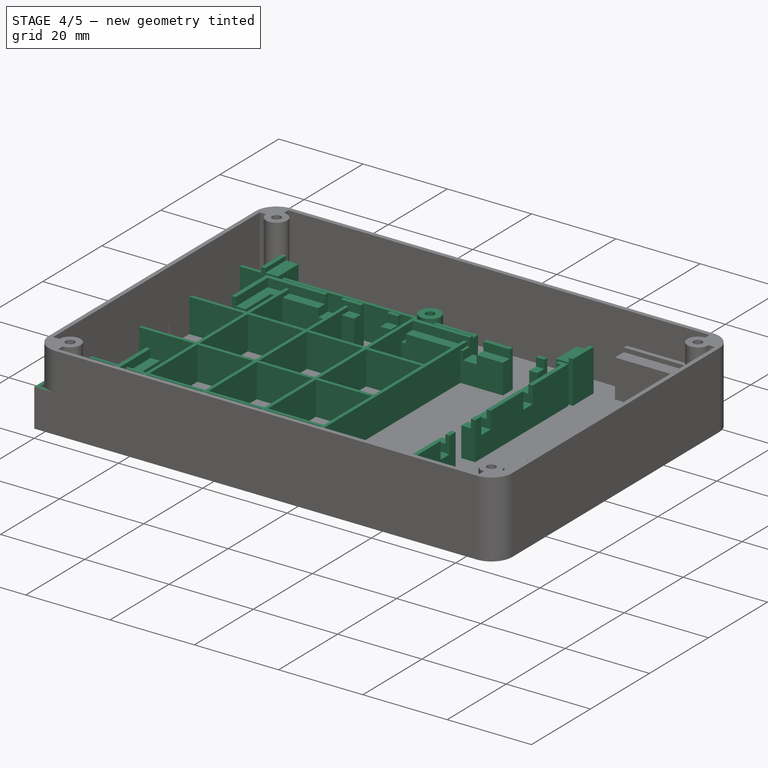
[diagram: stage 4 of 5 — iso view after this stage's code; geometry added in this stage tinted green]
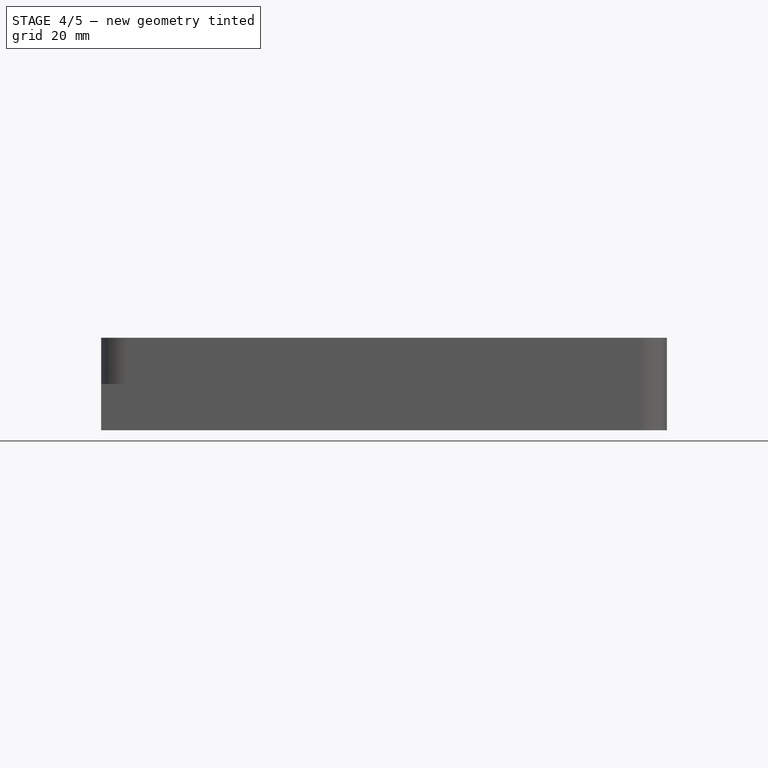
[diagram: stage 4 of 5 — front view after this stage's code; geometry added in this stage tinted green]
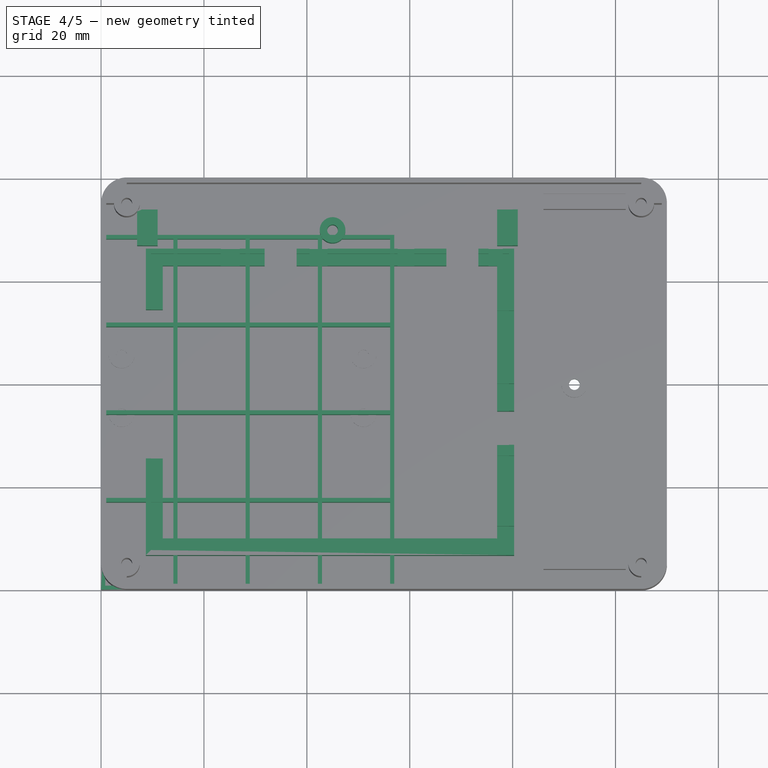
[diagram: stage 4 of 5 — top view after this stage's code; geometry added in this stage tinted green]
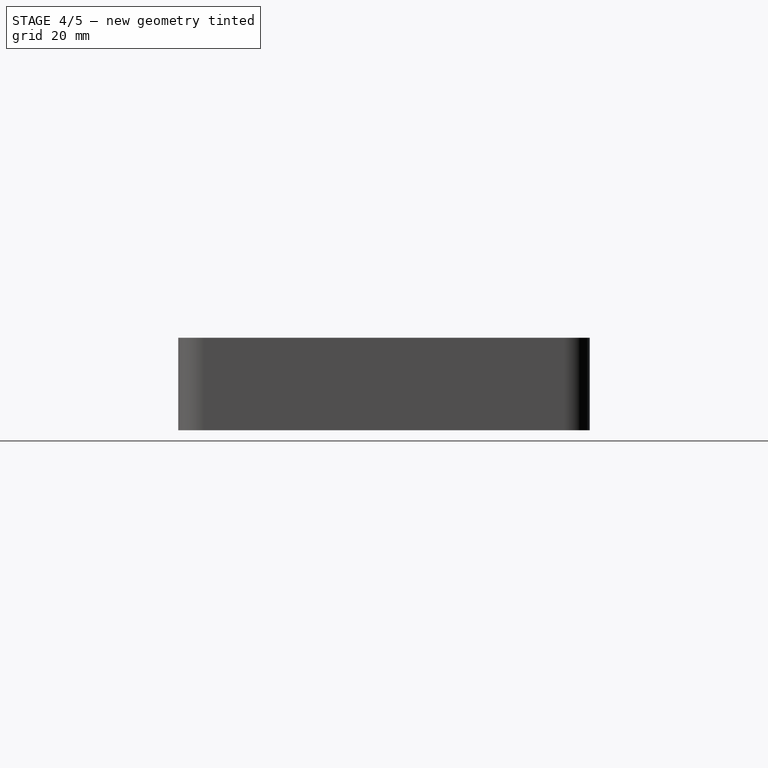
[diagram: stage 4 of 5 — right view after this stage's code; geometry added in this stage tinted green]
FEATURE [PartDesign::ShapeBinder] ShapeBinder006  label="sideStandOutline"
  Placement = pos=(79,75,0) rot=(0,0,1;3.14159rad)
  Support = -> [Pocket010]
  TraceSupport = true
FEATURE [Sketcher::SketchObject] Sketch037
  ExternalGeometry = -> [ShapeBinder006]
  FullyConstrained = true
  MapMode = 5
  Placement = pos=(0,0,1) rot=(0,0,1;0rad)
  Support = -> [Pad024]
  expr: Constraints[3] = <<tnavM>>.screwTRad
  expr: Constraints[2] = <<tnavM>>.screwRad
  sketch-geometry (2):
    g0: Circle CenterX=45 CenterY=69.92 CenterZ=0 NormalX=0 NormalY=0 NormalZ=1 AngleXU=0 Radius=1.05
    g1: Circle CenterX=45 CenterY=69.92 CenterZ=0 NormalX=0 NormalY=0 NormalZ=1 AngleXU=0 Radius=2.5
  constraints (4):
    c: Coincident(g0,g-3)
    c: Coincident(g1,g0)
    c: Radius(g0) = 1.05
    c: Radius(g1) = 2.5
FEATURE [PartDesign::Pad] Pad025  label="sideStand_spacer"
  BaseFeature = -> Pad024
  Direction = (1,1,1)
  Length = 9
  Length2 = 100
  Profile = -> Sketch037
  Type = 0
FEATURE [Sketcher::SketchObject] Sketch038
  ExternalGeometry = -> [ShapeBinder006]
  FullyConstrained = true
  MapMode = 5
  Placement = pos=(0,0,1) rot=(0,0,1;0rad)
  Support = -> [Pad025]
  sketch-geometry (8):
    g0: LineSegment StartX=7 StartY=66.92 StartZ=0 EndX=8 EndY=66.92 EndZ=0
    g1: LineSegment StartX=8 StartY=66.92 StartZ=0 EndX=8 EndY=73.92 EndZ=0
    g2: LineSegment StartX=8 StartY=73.92 StartZ=0 EndX=7 EndY=73.92 EndZ=0
    g3: LineSegment StartX=7 StartY=73.92 StartZ=0 EndX=7 EndY=66.92 EndZ=0
    g4: LineSegment StartX=81 StartY=66.92 StartZ=0 EndX=80 EndY=66.92 EndZ=0
    g5: LineSegment StartX=80 StartY=66.92 StartZ=0 EndX=80 EndY=73.92 EndZ=0
    g6: LineSegment StartX=80 StartY=73.92 StartZ=0 EndX=81 EndY=73.92 EndZ=0
    g7: LineSegment StartX=81 StartY=73.92 StartZ=0 EndX=81 EndY=66.92 EndZ=0
  constraints (20):
    c: Coincident(g0,g1)
    c: Coincident(g1,g2)
    c: Coincident(g2,g3)
    c: Coincident(g3,g0)
    c: Horizontal(g0)
    c: Horizontal(g2)
    c: Vertical(g1)
    c: Vertical(g3)
    c: Coincident(g0,g-3)
    c: Coincident(g1,g-4)
    c: Coincident(g4,g5)
    c: Coincident(g5,g6)
    c: Coincident(g6,g7)
    c: Coincident(g7,g4)
    c: Horizontal(g4)
    c: Horizontal(g6)
    c: Vertical(g5)
    c: Vertical(g7)
    c: Coincident(g4,g-5)
    c: Coincident(g5,g-6)
FEATURE [PartDesign::Pad] Pad026  label="sideStand_highest"
  BaseFeature = -> Pad025
  Direction = (1,1,1)
  Length = 10
  Length2 = 100
  Profile = -> Sketch038
  Type = 0
FEATURE [Sketcher::SketchObject] Sketch039
  ExternalGeometry = -> [ShapeBinder006]
  FullyConstrained = true
  MapMode = 5
  Placement = pos=(0,0,1) rot=(0,0,1;0rad)
  Support = -> [Pad026]
  sketch-geometry (8):
    g0: LineSegment StartX=8 StartY=73.92 StartZ=0 EndX=11 EndY=73.92 EndZ=0
    g1: LineSegment StartX=11 StartY=73.92 StartZ=0 EndX=11 EndY=66.92 EndZ=0
    g2: LineSegment StartX=11 StartY=66.92 StartZ=0 EndX=8 EndY=66.92 EndZ=0
    g3: LineSegment StartX=8 StartY=66.92 StartZ=0 EndX=8 EndY=73.92 EndZ=0
    g4: LineSegment StartX=77 StartY=73.92 StartZ=0 EndX=80 EndY=73.92 EndZ=0
    g5: LineSegment StartX=80 StartY=73.92 StartZ=0 EndX=80 EndY=66.92 EndZ=0
    g6: LineSegment StartX=80 StartY=66.92 StartZ=0 EndX=77 EndY=66.92 EndZ=0
    g7: LineSegment StartX=77 StartY=66.92 StartZ=0 EndX=77 EndY=73.92 EndZ=0
  constraints (20):
    c: Coincident(g0,g1)
    c: Coincident(g1,g2)
    c: Coincident(g2,g3)
    c: Coincident(g3,g0)
    c: Horizontal(g0)
    c: Horizontal(g2)
    c: Vertical(g1)
    c: Vertical(g3)
    c: Coincident(g0,g-6)
    c: Coincident(g1,g-3)
    c: Coincident(g4,g5)
    c: Coincident(g5,g6)
    c: Coincident(g6,g7)
    c: Coincident(g7,g4)
    c: Horizontal(g4)
    c: Horizontal(g6)
    c: Vertical(g5)
    c: Vertical(g7)
    c: Coincident(g4,g-4)
    c: Coincident(g5,g-5)
FEATURE [PartDesign::Pad] Pad027  label="sideStand_lowest"
  BaseFeature = -> Pad026
  Direction = (1,1,1)
  Length = 9
  Length2 = 100
  Profile = -> Sketch039
  Type = 0
FEATURE [PartDesign::ShapeBinder] ShapeBinder007  label="MatStandOutline"
  Placement = pos=(12,10,1) rot=(0,0,1;0rad)
  Support = -> [Pocket006]
  TraceSupport = true
FEATURE [Sketcher::SketchObject] Sketch040
  ExternalGeometry = -> [ShapeBinder007]
  FullyConstrained = true
  MapMode = 5
  Placement = pos=(0,0,1) rot=(0,0,1;0rad)
  Support = -> [Pad027]
  sketch-geometry (8):
    g0: LineSegment StartX=8.7 StartY=66.3 StartZ=0 EndX=80.3 EndY=66.3 EndZ=0
    g1: LineSegment StartX=80.3 StartY=66.3 StartZ=0 EndX=80.3 EndY=6.7 EndZ=0
    g2: LineSegment StartX=80.3 StartY=6.7 StartZ=0 EndX=8.7 EndY=6.7 EndZ=0
    g3: LineSegment StartX=8.7 StartY=6.7 StartZ=0 EndX=8.7 EndY=66.3 EndZ=0
    g4: LineSegment StartX=9.7 StartY=65.3 StartZ=0 EndX=79.3 EndY=65.3 EndZ=0
    g5: LineSegment StartX=79.3 StartY=65.3 StartZ=0 EndX=79.3 EndY=7.7 EndZ=0
    g6: LineSegment StartX=79.3 StartY=7.7 StartZ=0 EndX=9.7 EndY=7.7 EndZ=0
    g7: LineSegment StartX=9.7 StartY=7.7 StartZ=0 EndX=9.7 EndY=65.3 EndZ=0
  constraints (20):
    c: Coincident(g0,g1)
    c: Coincident(g1,g2)
    c: Coincident(g2,g3)
    c: Coincident(g3,g0)
    c: Horizontal(g0)
    c: Horizontal(g2)
    c: Vertical(g1)
    c: Vertical(g3)
    c: Coincident(g0,g-3)
    c: Coincident(g1,g-4)
    c: Coincident(g4,g5)
    c: Coincident(g5,g6)
    c: Coincident(g6,g7)
    c: Coincident(g7,g4)
    c: Horizontal(g4)
    c: Horizontal(g6)
    c: Vertical(g5)
    c: Vertical(g7)
    c: Coincident(g4,g-5)
    c: Coincident(g5,g-6)
FEATURE [PartDesign::Pad] Pad028  label="MatSand_highest"
  BaseFeature = -> Pad027
  Direction = (1,1,1)
  Length = 9
  Length2 = 100
  Profile = -> Sketch040
  Type = 0
FEATURE [Sketcher::SketchObject] Sketch041
  ExternalGeometry = -> [ShapeBinder007]
  FullyConstrained = true
  MapMode = 5
  Placement = pos=(0,0,1) rot=(0,0,1;0rad)
  Support = -> [Pad028]
  sketch-geometry (8):
    g0: LineSegment StartX=9.7 StartY=65.3 StartZ=0 EndX=79.3 EndY=65.3 EndZ=0
    g1: LineSegment StartX=79.3 StartY=65.3 StartZ=0 EndX=79.3 EndY=7.7 EndZ=0
    g2: LineSegment StartX=79.3 StartY=7.7 StartZ=0 EndX=9.7 EndY=7.7 EndZ=0
    g3: LineSegment StartX=9.7 StartY=7.7 StartZ=0 EndX=9.7 EndY=65.3 EndZ=0
    g4: LineSegment StartX=12 StartY=63 StartZ=0 EndX=77 EndY=63 EndZ=0
    g5: LineSegment StartX=77 StartY=63 StartZ=0 EndX=77 EndY=10 EndZ=0
    g6: LineSegment StartX=77 StartY=10 StartZ=0 EndX=12 EndY=10 EndZ=0
    g7: LineSegment StartX=12 StartY=10 StartZ=0 EndX=12 EndY=63 EndZ=0
  constraints (20):
    c: Coincident(g0,g1)
    c: Coincident(g1,g2)
    c: Coincident(g2,g3)
    c: Coincident(g3,g0)
    c: Horizontal(g0)
    c: Horizontal(g2)
    c: Vertical(g1)
    c: Vertical(g3)
    c: Coincident(g1,g-7)
    c: Coincident(g0,g-3)
    c: Coincident(g4,g5)
    c: Coincident(g5,g6)
    c: Coincident(g6,g7)
    c: Coincident(g7,g4)
    c: Horizontal(g4)
    c: Horizontal(g6)
    c: Vertical(g5)
    c: Vertical(g7)
    c: Coincident(g4,g-5)
    c: Coincident(g5,g-6)
FEATURE [PartDesign::Pad] Pad029  label="MatStand_lowest"
  BaseFeature = -> Pad028
  Direction = (1,1,1)
  Length = 7
  Length2 = 100
  Profile = -> Sketch041
  Type = 0
FEATURE [Sketcher::SketchObject] Sketch042
  FullyConstrained = false
  MapMode = 5
  Placement = pos=(0,0,10) rot=(0,0,1;0rad)
  Support = -> [Pad029]
  sketch-geometry (32):
    g0: LineSegment StartX=23.2556 StartY=66.6323 StartZ=0 EndX=26.9934 EndY=66.6323 EndZ=0
    g1: LineSegment StartX=26.9934 StartY=66.6323 StartZ=0 EndX=26.9934 EndY=62.5765 EndZ=0
    g2: LineSegment StartX=26.9934 StartY=62.5765 StartZ=0 EndX=23.2556 EndY=62.5765 EndZ=0
    g3: LineSegment StartX=23.2556 StartY=62.5765 StartZ=0 EndX=23.2556 EndY=66.6323 EndZ=0
    g4: LineSegment StartX=40.5186 StartY=66.6588 StartZ=0 EndX=44.0515 EndY=66.6588 EndZ=0
    g5: LineSegment StartX=44.0515 StartY=66.6588 StartZ=0 EndX=44.0515 EndY=62.7942 EndZ=0
    g6: LineSegment StartX=44.0515 StartY=62.7942 StartZ=0 EndX=40.5186 EndY=62.7942 EndZ=0
    g7: LineSegment StartX=40.5186 StartY=62.7942 StartZ=0 EndX=40.5186 EndY=66.6588 EndZ=0
    g8: LineSegment StartX=57.6447 StartY=66.4981 StartZ=0 EndX=60.8728 EndY=66.4981 EndZ=0
    g9: LineSegment StartX=60.8728 StartY=66.4981 StartZ=0 EndX=60.8728 EndY=62.4859 EndZ=0
    g10: LineSegment StartX=60.8728 StartY=62.4859 StartZ=0 EndX=57.6447 EndY=62.4859 EndZ=0
    g11: LineSegment StartX=57.6447 StartY=62.4859 StartZ=0 EndX=57.6447 EndY=66.4981 EndZ=0
    g12: LineSegment StartX=75.3239 StartY=66.5697 StartZ=0 EndX=78.1103 EndY=66.5697 EndZ=0
    g13: LineSegment StartX=78.1103 StartY=66.5697 StartZ=0 EndX=78.1103 EndY=62.8881 EndZ=0
    g14: LineSegment StartX=78.1103 StartY=62.8881 StartZ=0 EndX=75.3239 EndY=62.8881 EndZ=0
    g15: LineSegment StartX=75.3239 StartY=62.8881 StartZ=0 EndX=75.3239 EndY=66.5697 EndZ=0
    g16: LineSegment StartX=76.801 StartY=54.2358 StartZ=0 EndX=80.561 EndY=54.2358 EndZ=0
    g17: LineSegment StartX=80.561 StartY=54.2358 StartZ=0 EndX=80.561 EndY=51.123 EndZ=0
    g18: LineSegment StartX=80.561 StartY=51.123 StartZ=0 EndX=76.801 EndY=51.123 EndZ=0
    g19: LineSegment StartX=76.801 StartY=51.123 StartZ=0 EndX=76.801 EndY=54.2358 EndZ=0
    g20: LineSegment StartX=76.5823 StartY=40.0768 StartZ=0 EndX=80.9281 EndY=40.0768 EndZ=0
    g21: LineSegment StartX=80.9281 StartY=40.0768 StartZ=0 EndX=80.9281 EndY=36.8811 EndZ=0
    g22: LineSegment StartX=80.9281 StartY=36.8811 StartZ=0 EndX=76.5823 EndY=36.8811 EndZ=0
    g23: LineSegment StartX=76.5823 StartY=36.8811 StartZ=0 EndX=76.5823 EndY=40.0768 EndZ=0
    g24: LineSegment StartX=76.6995 StartY=26.0901 StartZ=0 EndX=80.6423 EndY=26.0901 EndZ=0
    g25: LineSegment StartX=80.6423 StartY=26.0901 StartZ=0 EndX=80.6423 EndY=23.0604 EndZ=0
    g26: LineSegment StartX=80.6423 StartY=23.0604 StartZ=0 EndX=76.6995 EndY=23.0604 EndZ=0
    g27: LineSegment StartX=76.6995 StartY=23.0604 StartZ=0 EndX=76.6995 EndY=26.0901 EndZ=0
    g28: LineSegment StartX=76.8875 StartY=12.3558 StartZ=0 EndX=80.8188 EndY=12.3558 EndZ=0
    g29: LineSegment StartX=80.8188 StartY=12.3558 StartZ=0 EndX=80.8188 EndY=9.07423 EndZ=0
    g30: LineSegment StartX=80.8188 StartY=9.07423 StartZ=0 EndX=76.8875 EndY=9.07423 EndZ=0
    g31: LineSegment StartX=76.8875 StartY=9.07423 StartZ=0 EndX=76.8875 EndY=12.3558 EndZ=0
  constraints (64):
    c: Coincident(g0,g1)
    c: Coincident(g1,g2)
    c: Coincident(g2,g3)
    c: Coincident(g3,g0)
    c: Horizontal(g0)
    c: Horizontal(g2)
    c: Vertical(g1)
    c: Vertical(g3)
    c: Coincident(g4,g5)
    c: Coincident(g5,g6)
    c: Coincident(g6,g7)
    c: Coincident(g7,g4)
    c: Horizontal(g4)
    c: Horizontal(g6)
    c: Vertical(g5)
    c: Vertical(g7)
    c: Coincident(g8,g9)
    c: Coincident(g9,g10)
    c: Coincident(g10,g11)
    c: Coincident(g11,g8)
    c: Horizontal(g8)
    c: Horizontal(g10)
    c: Vertical(g9)
    c: Vertical(g11)
    c: Coincident(g12,g13)
    c: Coincident(g13,g14)
    c: Coincident(g14,g15)
    c: Coincident(g15,g12)
    c: Horizontal(g12)
    c: Horizontal(g14)
    c: Vertical(g13)
    c: Vertical(g15)
    c: Coincident(g16,g17)
    c: Coincident(g17,g18)
    c: Coincident(g18,g19)
    c: Coincident(g19,g16)
    c: Horizontal(g16)
    c: Horizontal(g18)
    c: Vertical(g17)
    c: Vertical(g19)
    c: Coincident(g20,g21)
    c: Coincident(g21,g22)
    c: Coincident(g22,g23)
    c: Coincident(g23,g20)
    c: Horizontal(g20)
    c: Horizontal(g22)
    c: Vertical(g21)
    c: Vertical(g23)
    c: Coincident(g24,g25)
    c: Coincident(g25,g26)
    c: Coincident(g26,g27)
    c: Coincident(g27,g24)
    c: Horizontal(g24)
    c: Horizontal(g26)
    c: Vertical(g25)
    c: Vertical(g27)
    c: Coincident(g28,g29)
    c: Coincident(g29,g30)
    c: Coincident(g30,g31)
    c: Coincident(g31,g28)
    c: Horizontal(g28)
    c: Horizontal(g30)
    c: Vertical(g29)
    c: Vertical(g31)
FEATURE [PartDesign::Pocket] Pocket011  label="MatStand_MatCableCutout"
  BaseFeature = -> Pad029
  Length = 4
  Length2 = 100
  Profile = -> Sketch042
  Type = 0
FEATURE [Sketcher::SketchObject] Sketch044
  ExternalGeometry = -> [ShapeBinder001,ShapeBinder007]
  FullyConstrained = false
  MapMode = 5
  Placement = pos=(0,0,10) rot=(0,0,1;0rad)
  sketch-geometry (17):
    g0: LineSegment StartX=8.33305 StartY=54.4719 StartZ=0 EndX=12.6967 EndY=54.4719 EndZ=0
    g1: LineSegment StartX=12.6967 StartY=54.4719 StartZ=0 EndX=12.6967 EndY=25.5281 EndZ=0
    g2: LineSegment StartX=12.6967 StartY=25.5281 StartZ=0 EndX=8.33305 EndY=25.5281 EndZ=0
    g3: LineSegment StartX=8.33305 StartY=25.5281 StartZ=0 EndX=8.33305 EndY=54.4719 EndZ=0
    g4: LineSegment StartX=12.6967 StartY=54.4719 StartZ=0 EndX=12.6967 EndY=50.5 EndZ=0
    g5: LineSegment StartX=31.7923 StartY=67.4103 StartZ=0 EndX=38.0158 EndY=67.4103 EndZ=0
    g6: LineSegment StartX=38.0158 StartY=67.4103 StartZ=0 EndX=38.0158 EndY=62.3028 EndZ=0
    g7: LineSegment StartX=38.0158 StartY=62.3028 StartZ=0 EndX=31.7923 EndY=62.3028 EndZ=0
    g8: LineSegment StartX=31.7923 StartY=62.3028 StartZ=0 EndX=31.7923 EndY=67.4103 EndZ=0
    g9: LineSegment StartX=67.1301 StartY=67.6596 StartZ=0 EndX=73.3537 EndY=67.6596 EndZ=0
    g10: LineSegment StartX=73.3537 StartY=67.6596 StartZ=0 EndX=73.3537 EndY=60.7377 EndZ=0
    g11: LineSegment StartX=73.3537 StartY=60.7377 StartZ=0 EndX=67.1301 EndY=60.7377 EndZ=0
    g12: LineSegment StartX=67.1301 StartY=60.7377 StartZ=0 EndX=67.1301 EndY=67.6596 EndZ=0
    g13: LineSegment StartX=75.7158 StartY=34.7513 StartZ=0 EndX=81.6628 EndY=34.7513 EndZ=0
    g14: LineSegment StartX=81.6628 StartY=34.7513 StartZ=0 EndX=81.6628 EndY=28.1646 EndZ=0
    g15: LineSegment StartX=81.6628 StartY=28.1646 StartZ=0 EndX=75.7158 EndY=28.1646 EndZ=0
    g16: LineSegment StartX=75.7158 StartY=28.1646 StartZ=0 EndX=75.7158 EndY=34.7513 EndZ=0
  constraints (36):
    c: Coincident(g2,g3)
    c: Coincident(g0,g3)
    c: Coincident(g1,g2)
    c: Coincident(g0,g1)
    c: Vertical(g3)
    c: Vertical(g1)
    c: Horizontal(g2)
    c: Horizontal(g0)
    c: Coincident(g4,g0)
    c: Vertical(g4)
    c: PointOnObject(g4,g-3)
    c: Coincident(g5,g6)
    c: Coincident(g6,g7)
    c: Coincident(g7,g8)
    c: Coincident(g8,g5)
    c: Horizontal(g5)
    c: Horizontal(g7)
    c: Vertical(g6)
    c: Vertical(g8)
    c: Coincident(g9,g10)
    c: Coincident(g10,g11)
    c: Coincident(g11,g12)
    c: Coincident(g12,g9)
    c: Horizontal(g9)
    c: Horizontal(g11)
    c: Vertical(g10)
    c: Vertical(g12)
    c: Equal(g11,g7)
    c: Coincident(g13,g14)
    c: Coincident(g14,g15)
    c: Coincident(g15,g16)
    c: Coincident(g16,g13)
    c: Horizontal(g13)
    c: Horizontal(g15)
    c: Vertical(g14)
    c: Vertical(g16)
FEATURE [PartDesign::Pocket] Pocket012  label="Cable ways"
  BaseFeature = -> Pocket011
  Length = 9
  Length2 = 100
  Profile = -> Sketch044
  Type = 0
FEATURE [PartDesign::Body] Body008  label="tnav LID"
  Group = -> [ShapeBinder008,ShapeBinder009,Sketch045,Pad031,Sketch046,Pocket013,Sketch047,Pocket014,Sketch048,Pad032,Fillet001]
  Origin = -> Origin008
  Placement = pos=(0,0,8) rot=(0,0,1;0rad)
  Tip = -> Fillet001
FEATURE [Sketcher::SketchObject] Sketch
  FullyConstrained = true
  MapMode = 5
  Support = -> [XY_Plane]
  sketch-geometry (4):
    g0: LineSegment StartX=0 StartY=0 StartZ=0 EndX=57 EndY=0 EndZ=0
    g1: LineSegment StartX=57 StartY=0 StartZ=0 EndX=57 EndY=69 EndZ=0
    g2: LineSegment StartX=57 StartY=69 StartZ=0 EndX=0 EndY=69 EndZ=0
    g3: LineSegment StartX=0 StartY=69 StartZ=0 EndX=0 EndY=0 EndZ=0
  constraints (11):
    c: Coincident(g0,g1)
    c: Coincident(g1,g2)
    c: Coincident(g2,g3)
    c: Coincident(g3,g0)
    c: Horizontal(g0)
    c: Horizontal(g2)
    c: Vertical(g1)
    c: Vertical(g3)
    c: Coincident(g0,g-1)
    c: DistanceX(g2,g2) = 57
    c: DistanceY(g1,g1) = 69
FEATURE [PartDesign::Pad] Pad
  Direction = (1,1,1)
  Length = 9
  Length2 = 100
  Profile = -> Sketch
  Type = 0
FEATURE [Sketcher::SketchObject] Sketch001
  ExternalGeometry = -> [Pad]
  FullyConstrained = false
  MapMode = 5
  Placement = pos=(0,0,9) rot=(0,0,1;0rad)
  Support = -> [Pad]
  sketch-geometry (76):
    g0: LineSegment StartX=0.8 StartY=68.2 StartZ=0 EndX=14.05 EndY=68.2 EndZ=0
    g1: LineSegment StartX=14.05 StartY=68.2 StartZ=0 EndX=14.05 EndY=51.95 EndZ=0
    g2: LineSegment StartX=14.05 StartY=51.95 StartZ=0 EndX=0.8 EndY=51.95 EndZ=0
    g3: LineSegment StartX=0.8 StartY=51.95 StartZ=0 EndX=0.8 EndY=68.2 EndZ=0
    g4: LineSegment StartX=14.85 StartY=68.2 StartZ=0 EndX=28.1 EndY=68.2 EndZ=0
    g5: LineSegment StartX=28.1 StartY=68.2 StartZ=0 EndX=28.1 EndY=51.95 EndZ=0
    g6: LineSegment StartX=28.1 StartY=51.95 StartZ=0 EndX=14.85 EndY=51.95 EndZ=0
    g7: LineSegment StartX=14.85 StartY=51.95 StartZ=0 EndX=14.85 EndY=68.2 EndZ=0
    g8: LineSegment StartX=28.9 StartY=68.2 StartZ=0 EndX=42.15 EndY=68.2 EndZ=0
    g9: LineSegment StartX=42.15 StartY=68.2 StartZ=0 EndX=42.15 EndY=51.95 EndZ=0
    g10: LineSegment StartX=42.15 StartY=51.95 StartZ=0 EndX=28.9 EndY=51.95 EndZ=0
    g11: LineSegment StartX=28.9 StartY=51.95 StartZ=0 EndX=28.9 EndY=68.2 EndZ=0
    g12: LineSegment StartX=42.95 StartY=68.2 StartZ=0 EndX=56.2 EndY=68.2 EndZ=0
    g13: LineSegment StartX=56.2 StartY=68.2 StartZ=0 EndX=56.2 EndY=51.95 EndZ=0
    g14: LineSegment StartX=56.2 StartY=51.95 StartZ=0 EndX=42.95 EndY=51.95 EndZ=0
    g15: LineSegment StartX=42.95 StartY=51.95 StartZ=0 EndX=42.95 EndY=68.2 EndZ=0
    g16: LineSegment StartX=0.8 StartY=68.2 StartZ=0 EndX=0 EndY=68.2 EndZ=0
    g17: LineSegment StartX=0.8 StartY=68.2 StartZ=0 EndX=0.8 EndY=69 EndZ=0
    g18: LineSegment StartX=14.05 StartY=68.2 StartZ=0 EndX=14.85 EndY=68.2 EndZ=0
    g19: LineSegment StartX=28.1 StartY=68.2 StartZ=0 EndX=28.9 EndY=68.2 EndZ=0
    g20: LineSegment StartX=42.15 StartY=68.2 StartZ=0 EndX=42.95 EndY=68.2 EndZ=0
    g21: LineSegment StartX=56.2 StartY=68.2 StartZ=0 EndX=57 EndY=68.2 EndZ=0
    g22: LineSegment StartX=56.2 StartY=68.2 StartZ=0 EndX=56.2 EndY=69 EndZ=0
    g23: LineSegment StartX=0.8 StartY=51.15 StartZ=0 EndX=0.8 EndY=51.95 EndZ=0
    g24: LineSegment StartX=56.2 StartY=58.1057 StartZ=0 EndX=56.2 EndY=51.95 EndZ=0
    g25: LineSegment StartX=0.8 StartY=51.15 StartZ=0 EndX=14.05 EndY=51.15 EndZ=0
    g26: LineSegment StartX=14.05 StartY=51.15 StartZ=0 EndX=14.05 EndY=34.9 EndZ=0
    g27: LineSegment StartX=14.05 StartY=34.9 StartZ=0 EndX=0.8 EndY=34.9 EndZ=0
    g28: LineSegment StartX=0.8 StartY=34.9 StartZ=0 EndX=0.8 EndY=51.15 EndZ=0
    g29: LineSegment StartX=0.8 StartY=34.1 StartZ=0 EndX=14.05 EndY=34.1 EndZ=0
    g30: LineSegment StartX=14.05 StartY=34.1 StartZ=0 EndX=14.05 EndY=17.85 EndZ=0
    g31: LineSegment StartX=14.05 StartY=17.85 StartZ=0 EndX=0.8 EndY=17.85 EndZ=0
    g32: LineSegment StartX=0.8 StartY=17.85 StartZ=0 EndX=0.8 EndY=34.1 EndZ=0
    g33: LineSegment StartX=0.8 StartY=17.05 StartZ=0 EndX=14.05 EndY=17.05 EndZ=0
    g34: LineSegment StartX=14.05 StartY=17.05 StartZ=0 EndX=14.05 EndY=0.8 EndZ=0
    g35: LineSegment StartX=14.05 StartY=0.8 StartZ=0 EndX=0.8 EndY=0.8 EndZ=0
    g36: LineSegment StartX=0.8 StartY=0.8 StartZ=0 EndX=0.8 EndY=17.05 EndZ=0
    g37: LineSegment StartX=0.8 StartY=0.8 StartZ=0 EndX=0.8 EndY=0 EndZ=0
    g38: LineSegment StartX=0.8 StartY=17.05 StartZ=0 EndX=0.8 EndY=17.85 EndZ=0
    g39: LineSegment StartX=0.8 StartY=34.9 StartZ=0 EndX=0.8 EndY=34.1 EndZ=0
    g40: LineSegment StartX=14.85 StartY=51.15 StartZ=0 EndX=28.1 EndY=51.15 EndZ=0
    g41: LineSegment StartX=28.1 StartY=51.15 StartZ=0 EndX=28.1 EndY=34.9 EndZ=0
    g42: LineSegment StartX=28.1 StartY=34.9 StartZ=0 EndX=14.85 EndY=34.9 EndZ=0
    g43: LineSegment StartX=14.85 StartY=34.9 StartZ=0 EndX=14.85 EndY=51.15 EndZ=0
    g44: LineSegment StartX=28.9 StartY=51.15 StartZ=0 EndX=42.15 EndY=51.15 EndZ=0
    g45: LineSegment StartX=42.15 StartY=51.15 StartZ=0 EndX=42.15 EndY=34.9 EndZ=0
    g46: LineSegment StartX=42.15 StartY=34.9 StartZ=0 EndX=28.9 EndY=34.9 EndZ=0
    g47: LineSegment StartX=28.9 StartY=34.9 StartZ=0 EndX=28.9 EndY=51.15 EndZ=0
    g48: LineSegment StartX=42.95 StartY=51.15 StartZ=0 EndX=56.2 EndY=51.15 EndZ=0
    g49: LineSegment StartX=56.2 StartY=51.15 StartZ=0 EndX=56.2 EndY=34.9 EndZ=0
    g50: LineSegment StartX=56.2 StartY=34.9 StartZ=0 EndX=42.95 EndY=34.9 EndZ=0
    g51: LineSegment StartX=42.95 StartY=34.9 StartZ=0 EndX=42.95 EndY=51.15 EndZ=0
    g52: LineSegment StartX=14.85 StartY=34.1 StartZ=0 EndX=28.1 EndY=34.1 EndZ=0
    g53: LineSegment StartX=28.1 StartY=34.1 StartZ=0 EndX=28.1 EndY=17.85 EndZ=0
    g54: LineSegment StartX=28.1 StartY=17.85 StartZ=0 EndX=14.85 EndY=17.85 EndZ=0
    g55: LineSegment StartX=14.85 StartY=17.85 StartZ=0 EndX=14.85 EndY=34.1 EndZ=0
    g56: LineSegment StartX=28.9 StartY=34.1 StartZ=0 EndX=42.15 EndY=34.1 EndZ=0
    g57: LineSegment StartX=42.15 StartY=34.1 StartZ=0 EndX=42.15 EndY=17.85 EndZ=0
    g58: LineSegment StartX=42.15 StartY=17.85 StartZ=0 EndX=28.9 EndY=17.85 EndZ=0
    g59: LineSegment StartX=28.9 StartY=17.85 StartZ=0 EndX=28.9 EndY=34.1 EndZ=0
    g60: LineSegment StartX=42.95 StartY=34.1 StartZ=0 EndX=56.2 EndY=34.1 EndZ=0
    g61: LineSegment StartX=56.2 StartY=34.1 StartZ=0 EndX=56.2 EndY=17.85 EndZ=0
    g62: LineSegment StartX=56.2 StartY=17.85 StartZ=0 EndX=42.95 EndY=17.85 EndZ=0
    g63: LineSegment StartX=42.95 StartY=17.85 StartZ=0 EndX=42.95 EndY=34.1 EndZ=0
    g64: LineSegment StartX=14.85 StartY=17.05 StartZ=0 EndX=28.1 EndY=17.05 EndZ=0
    g65: LineSegment StartX=28.1 StartY=17.05 StartZ=0 EndX=28.1 EndY=0.8 EndZ=0
    g66: LineSegment StartX=28.1 StartY=0.8 StartZ=0 EndX=14.85 EndY=0.8 EndZ=0
    g67: LineSegment StartX=14.85 StartY=0.8 StartZ=0 EndX=14.85 EndY=17.05 EndZ=0
    g68: LineSegment StartX=28.9 StartY=17.05 StartZ=0 EndX=42.15 EndY=17.05 EndZ=0
    g69: LineSegment StartX=42.15 StartY=17.05 StartZ=0 EndX=42.15 EndY=0.8 EndZ=0
    g70: LineSegment StartX=42.15 StartY=0.8 StartZ=0 EndX=28.9 EndY=0.8 EndZ=0
    g71: LineSegment StartX=28.9 StartY=0.8 StartZ=0 EndX=28.9 EndY=17.05 EndZ=0
    g72: LineSegment StartX=42.95 StartY=17.05 StartZ=0 EndX=56.2 EndY=17.05 EndZ=0
    g73: LineSegment StartX=56.2 StartY=17.05 StartZ=0 EndX=56.2 EndY=0.8 EndZ=0
    g74: LineSegment StartX=56.2 StartY=0.8 StartZ=0 EndX=42.95 EndY=0.8 EndZ=0
    g75: LineSegment StartX=42.95 StartY=0.8 StartZ=0 EndX=42.95 EndY=17.05 EndZ=0
  constraints (223):
    c: Coincident(g0,g1)
    c: Coincident(g1,g2)
    c: Coincident(g2,g3)
    c: Coincident(g3,g0)
    c: Horizontal(g0)
    c: Horizontal(g2)
    c: Vertical(g1)
    c: Vertical(g3)
    c: Coincident(g4,g5)
    c: Coincident(g5,g6)
    c: Coincident(g6,g7)
    c: Coincident(g7,g4)
    c: Horizontal(g4)
    c: Horizontal(g6)
    c: Vertical(g5)
    c: Vertical(g7)
    c: Coincident(g8,g9)
    c: Coincident(g9,g10)
    c: Coincident(g10,g11)
    c: Coincident(g11,g8)
    c: Horizontal(g8)
    c: Horizontal(g10)
    c: Vertical(g9)
    c: Vertical(g11)
    c: Coincident(g12,g13)
    c: Coincident(g13,g14)
    c: Coincident(g14,g15)
    c: Coincident(g15,g12)
    c: Horizontal(g12)
    c: Horizontal(g14)
    c: Vertical(g13)
    c: Vertical(g15)
    c: Coincident(g16,g0)
    c: PointOnObject(g16,g-4)
    c: Coincident(g17,g0)
    c: PointOnObject(g17,g-3)
    c: Vertical(g17)
    c: Coincident(g18,g0)
    c: Coincident(g18,g4)
    c: Coincident(g19,g4)
    c: Coincident(g19,g8)
    c: Coincident(g20,g8)
    c: Coincident(g20,g12)
    c: Coincident(g21,g12)
    c: PointOnObject(g21,g-5)
    c: Horizontal(g21)
    c: Coincident(g22,g12)
    c: PointOnObject(g22,g-3)
    c: Vertical(g22)
    c: Horizontal(g20)
    c: Horizontal(g19)
    c: Horizontal(g16)
    c: Equal(g17,g16)
    c: Equal(g16,g18)
    c: Equal(g18,g19)
    c: Equal(g19,g20)
    c: Equal(g20,g22)
    c: Equal(g22,g21)
    c: DistanceX(g21,g21) = 0.8
    c: Equal(g0,g4)
    c: Equal(g4,g8)
    c: Equal(g8,g12)
    c: Equal(g1,g7)
    c: Equal(g7,g11)
    c: Equal(g11,g15)
    c: Vertical(g23)
    c: Vertical(g24)
    c: Coincident(g24,g13)
    c: Coincident(g23,g2)
    c: Coincident(g25,g26)
    c: Coincident(g26,g27)
    c: Coincident(g27,g28)
    c: Coincident(g28,g25)
    c: Horizontal(g25)
    c: Horizontal(g27)
    c: Vertical(g26)
    c: Vertical(g28)
    c: Coincident(g29,g30)
    c: Coincident(g30,g31)
    c: Coincident(g31,g32)
    c: Coincident(g32,g29)
    c: Horizontal(g29)
    c: Horizontal(g31)
    c: Vertical(g30)
    c: Vertical(g32)
    c: Coincident(g33,g34)
    c: Coincident(g34,g35)
    c: Coincident(g35,g36)
    c: Coincident(g36,g33)
    c: Horizontal(g33)
    c: Horizontal(g35)
    c: Vertical(g34)
    c: Vertical(g36)
    c: Coincident(g37,g35)
    c: PointOnObject(g37,g-1)
    c: Vertical(g37)
    c: Coincident(g38,g33)
    c: Coincident(g38,g31)
    c: Coincident(g39,g27)
    c: Coincident(g39,g29)
    c: Coincident(g25,g23)
    c: Vertical(g39)
    c: Vertical(g38)
    c: Vertical(g1,g25)
    c: Vertical(g26,g29)
    c: Vertical(g30,g33)
    c: Equal(g37,g38)
    c: Equal(g38,g39)
    c: Equal(g39,g23)
    c: Equal(g23,g17)
    c: Equal(g3,g28)
    c: Equal(g28,g32)
    c: Equal(g32,g36)
    c: Coincident(g40,g41)
    c: Coincident(g41,g42)
    c: Coincident(g42,g43)
    c: Coincident(g43,g40)
    c: Horizontal(g40)
    c: Horizontal(g42)
    c: Vertical(g41)
    c: Vertical(g43)
    c: Coincident(g44,g45)
    c: Coincident(g45,g46)
    c: Coincident(g46,g47)
    c: Coincident(g47,g44)
    c: Horizontal(g44)
    c: Horizontal(g46)
    c: Vertical(g45)
    c: Vertical(g47)
    c: Coincident(g48,g49)
    c: Coincident(g49,g50)
    c: Coincident(g50,g51)
    c: Coincident(g51,g48)
    c: Horizontal(g48)
    c: Horizontal(g50)
    c: Vertical(g49)
    c: Vertical(g51)
    c: Coincident(g52,g53)
    c: Coincident(g53,g54)
    c: Coincident(g54,g55)
    c: Coincident(g55,g52)
    c: Horizontal(g52)
    c: Horizontal(g54)
    c: Vertical(g53)
    c: Vertical(g55)
    c: Coincident(g56,g57)
    c: Coincident(g57,g58)
    c: Coincident(g58,g59)
    c: Coincident(g59,g56)
    c: Horizontal(g56)
    c: Horizontal(g58)
    c: Vertical(g57)
    c: Vertical(g59)
    c: Coincident(g60,g61)
    c: Coincident(g61,g62)
    c: Coincident(g62,g63)
    c: Coincident(g63,g60)
    c: Horizontal(g60)
    c: Horizontal(g62)
    c: Vertical(g61)
    c: Vertical(g63)
    c: Coincident(g64,g65)
    c: Coincident(g65,g66)
    c: Coincident(g66,g67)
    c: Coincident(g67,g64)
    c: Horizontal(g64)
    c: Horizontal(g66)
    c: Vertical(g65)
    c: Vertical(g67)
    c: Coincident(g68,g69)
    c: Coincident(g69,g70)
    c: Coincident(g70,g71)
    c: Coincident(g71,g68)
    c: Horizontal(g68)
    c: Horizontal(g70)
    c: Vertical(g69)
    c: Vertical(g71)
    c: Coincident(g72,g73)
    c: Coincident(g73,g74)
    c: Coincident(g74,g75)
    c: Coincident(g75,g72)
    c: Horizontal(g72)
    c: Horizontal(g74)
    c: Vertical(g73)
    c: Vertical(g75)
    c: Horizontal(g65,g70)
    c: Horizontal(g70,g34)
    c: Horizontal(g74,g69)
    c: Horizontal(g33,g64)
    c: Horizontal(g64,g68)
    c: Horizontal(g68,g72)
    c: Horizontal(g30,g54)
    c: Horizontal(g54,g58)
    c: Horizontal(g58,g62)
    c: Horizontal(g52,g29)
    c: Horizontal(g29,g56)
    c: Horizontal(g56,g60)
    c: Horizontal(g26,g42)
    c: Horizontal(g42,g46)
    c: Horizontal(g46,g50)
    c: Horizontal(g25,g40)
    c: Horizontal(g40,g44)
    c: Horizontal(g44,g48)
    c: Vertical(g60,g48)
    c: Vertical(g48,g13)
    c: Vertical(g13,g72)
    c: Vertical(g9,g44)
    c: Vertical(g44,g56)
    c: Vertical(g56,g68)
    c: Vertical(g72,g62)
    c: Vertical(g62,g50)
    c: Vertical(g50,g14)
    c: Vertical(g42,g52)
    c: Vertical(g52,g64)
    c: Vertical(g64,g6)
    c: Vertical(g5,g40)
    c: Vertical(g40,g52)
    c: Vertical(g52,g64)
    c: Vertical(g58,g68)
    c: Vertical(g56,g46)
    c: Vertical(g46,g10)
    c: DistanceY(g3,g3) = 16.25
    c: DistanceX(g0,g0) = 13.25
FEATURE [PartDesign::Pocket] Pocket
  BaseFeature = -> Pad
  Length = 8
  Length2 = 100
  Profile = -> Sketch001
  Type = 0
FEATURE [PartDesign::Body] Body  label="mat case"
  Group = -> [Sketch,Pad,Sketch001,Pocket,Sketch002,Pocket015]
  Origin = -> Origin
  Placement = pos=(75,4,-2) rot=(0,0,1;1.5708rad)
  Tip = -> Pocket015
FEATURE [Sketcher::SketchObject] Sketch049
  ExternalGeometry = -> [ShapeBinder001,ShapeBinder005]
  FullyConstrained = true
  MapMode = 5
  Placement = pos=(0,0,10) rot=(0,0,1;0rad)
  Support = -> [Pocket012]
  expr: Constraints[7] = <<tnavM>>.screwRad
  sketch-geometry (5):
    g0: Circle CenterX=4 CenterY=45.7 CenterZ=0 NormalX=0 NormalY=0 NormalZ=1 AngleXU=0 Radius=1.05
    g1: Circle CenterX=4 CenterY=34.3 CenterZ=0 NormalX=0 NormalY=0 NormalZ=1 AngleXU=0 Radius=1.05
    g2: Circle CenterX=51 CenterY=45.7 CenterZ=0 NormalX=0 NormalY=0 NormalZ=1 AngleXU=0 Radius=1.05
    g3: Circle CenterX=51 CenterY=34.3 CenterZ=0 NormalX=0 NormalY=0 NormalZ=1 AngleXU=0 Radius=1.05
    g4: Circle CenterX=92 CenterY=40 CenterZ=0 NormalX=0 NormalY=0 NormalZ=1 AngleXU=0 Radius=1.05
  constraints (10):
    c: Coincident(g0,g-5)
    c: Coincident(g1,g-6)
    c: Coincident(g2,g-3)
    c: Coincident(g3,g-4)
    c: Equal(g2,g3)
    c: Equal(g3,g0)
    c: Equal(g0,g1)
    c: Radius(g2) = 1.05
    c: Coincident(g4,g-7)
    c: Equal(g3,g4)
FEATURE [PartDesign::Pocket] Pocket016
  BaseFeature = -> Pocket012
  Length = 5
  Length2 = 100
  Profile = -> Sketch049
  Type = 1
FEATURE [PartDesign::Body] Body002  label="tnav Case"
  Group = -> [Sketch007,Pad006,Fillet,Sketch008,Pocket001,ShapeBinder,ShapeBinder001,Sketch009,Pad007,Sketch010,Pocket002,ShapeBinder005,Sketch034,Pad022,Sketch035,Pad023,Sketch036,Pad024,ShapeBinder006,Sketch037,Pad025,Sketch038,Pad026,Sketch039,Pad027,ShapeBinder007,Sketch040,Pad028,Sketch041,Pad029,Sketch042,Pocket011,Sketch044,Pocket012,Sketch049,Pocket016]
  Origin = -> Origin002
  Placement = pos=(-4,-4,-10) rot=(0,0,1;0rad)
  Tip = -> Pocket016
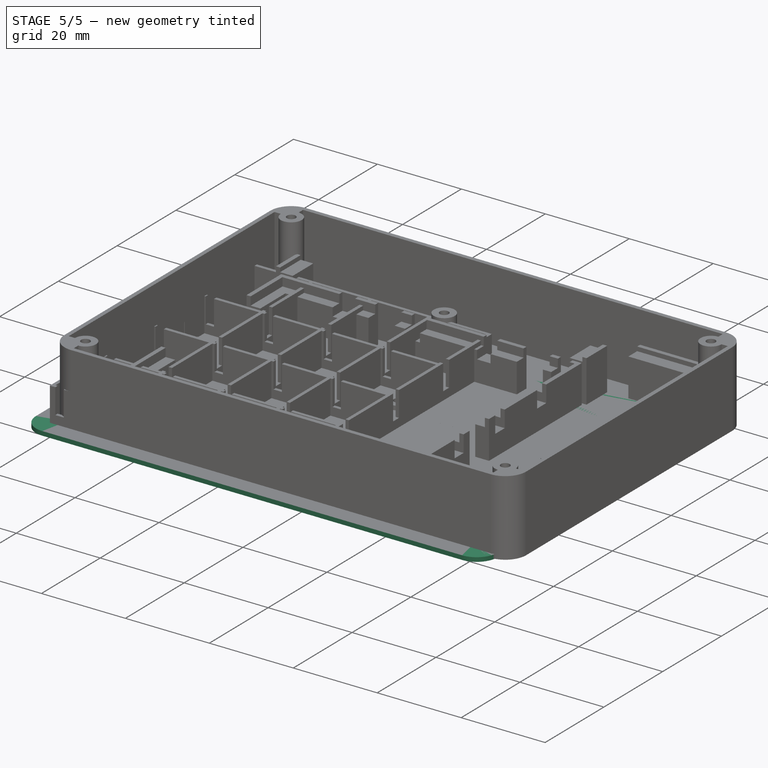
[diagram: stage 5 of 5 — iso view after this stage's code; geometry added in this stage tinted green]
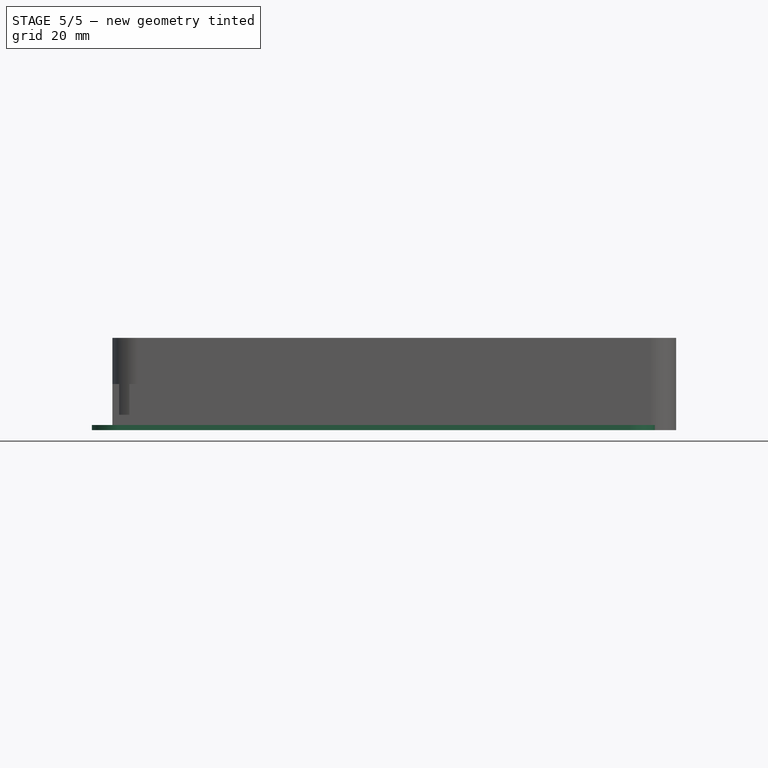
[diagram: stage 5 of 5 — front view after this stage's code; geometry added in this stage tinted green]
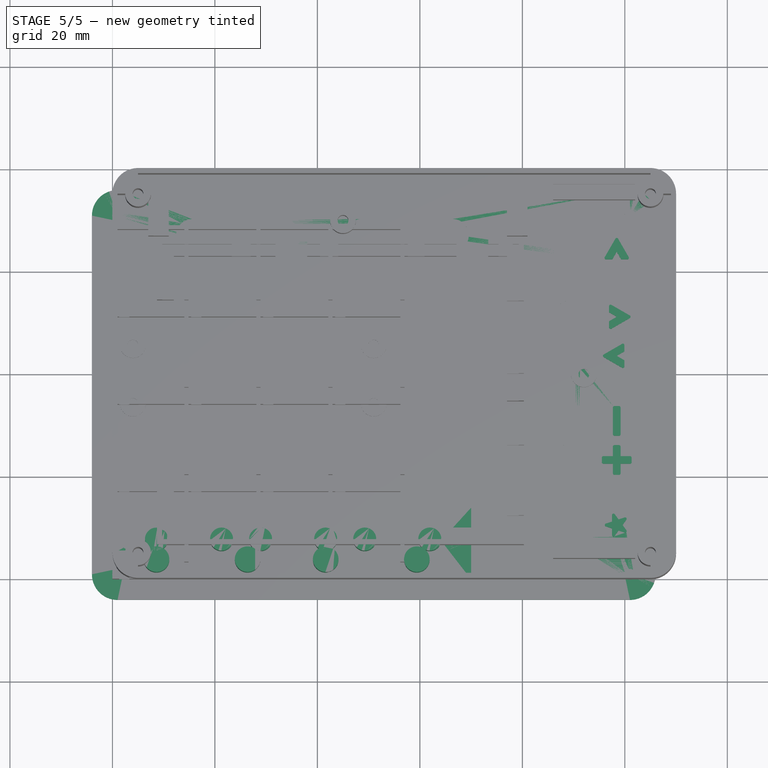
[diagram: stage 5 of 5 — top view after this stage's code; geometry added in this stage tinted green]
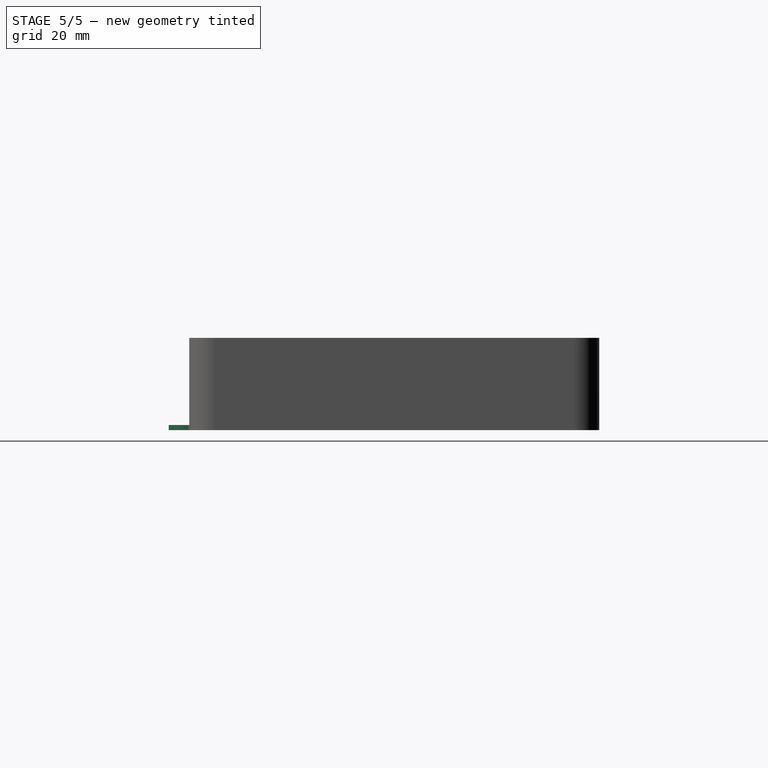
[diagram: stage 5 of 5 — right view after this stage's code; geometry added in this stage tinted green]
FEATURE [Sketcher::SketchObject] Sketch022
  ExternalGeometry = -> [Pad011]
  FullyConstrained = true
  MapMode = 5
  Placement = pos=(0,0,1.1) rot=(0,0,1;0rad)
  Support = -> [Pad011]
  sketch-geometry (11):
    g0: Circle CenterX=28.92 CenterY=7.73 CenterZ=0 NormalX=0 NormalY=0 NormalZ=1 AngleXU=0 Radius=2.25
    g1: Circle CenterX=41.62 CenterY=7.73 CenterZ=0 NormalX=0 NormalY=0 NormalZ=1 AngleXU=0 Radius=2.25
    g2: Circle CenterX=49.24 CenterY=7.73 CenterZ=0 NormalX=0 NormalY=0 NormalZ=1 AngleXU=0 Radius=2.25
    g3: Circle CenterX=61.94 CenterY=7.73 CenterZ=0 NormalX=0 NormalY=0 NormalZ=1 AngleXU=0 Radius=2.25
    g4: Circle CenterX=8.6 CenterY=7.73 CenterZ=0 NormalX=0 NormalY=0 NormalZ=1 AngleXU=0 Radius=2.25
    g5: Circle CenterX=21.3 CenterY=7.73 CenterZ=0 NormalX=0 NormalY=0 NormalZ=1 AngleXU=0 Radius=2.25
    g6: LineSegment StartX=8.6 StartY=7.73 StartZ=0 EndX=21.3 EndY=7.73 EndZ=0
    g7: LineSegment StartX=21.3 StartY=7.73 StartZ=0 EndX=28.92 EndY=7.73 EndZ=0
    g8: LineSegment StartX=28.92 StartY=7.73 StartZ=0 EndX=41.62 EndY=7.73 EndZ=0
    g9: LineSegment StartX=41.62 StartY=7.73 StartZ=0 EndX=49.24 EndY=7.73 EndZ=0
    g10: LineSegment StartX=49.24 StartY=7.73 StartZ=0 EndX=61.94 EndY=7.73 EndZ=0
  constraints (28):
    c: Radius(g3) = 2.25
    c: Equal(g3,g2)
    c: Equal(g2,g1)
    c: Equal(g1,g0)
    c: Equal(g0,g4)
    c: DistanceY(g1,g-3) = 1.27
    c: Equal(g5,g0)
    c: Coincident(g6,g4)
    c: Coincident(g6,g5)
    c: Horizontal(g6)
    c: Coincident(g7,g0)
    c: Horizontal(g7)
    c: Coincident(g8,g0)
    c: Coincident(g8,g1)
    c: Horizontal(g8)
    c: Coincident(g9,g2)
    c: Horizontal(g9)
    c: Coincident(g10,g3)
    c: Horizontal(g10)
    c: Equal(g7,g9)
    c: Equal(g8,g6)
    c: Equal(g6,g10)
    c: Coincident(g10,g2)
    c: Coincident(g9,g1)
    c: Coincident(g7,g5)
    c: DistanceX(g9,g9) = 7.62
    c: DistanceX(g10,g10) = 12.7
    c: DistanceX(g0,g-3) = 5.08
FEATURE [PartDesign::Pad] Pad014  label="Buttons"
  BaseFeature = -> Pad011
  Direction = (1,1,1)
  Length = 8
  Length2 = 100
  Profile = -> Sketch022
  Type = 0
FEATURE [PartDesign::Body] Body006  label="STAND side"
  Group = -> [Sketch026,ShapeBinder004,Sketch027,Pad018,Sketch028,Pad016,Pad019,Sketch031,Pocket009,Sketch032,Pad020,Sketch030,Pocket010]
  Origin = -> Origin006
  Placement = pos=(75,71,-10) rot=(0,0,1;3.14159rad)
  Tip = -> Pocket010
FEATURE [Sketcher::SketchObject] Sketch033
  ExternalGeometry = -> [Pad017]
  FullyConstrained = true
  MapMode = 5
  Placement = pos=(0,0,1.1) rot=(0,0,1;0rad)
  Support = -> [Pad017]
  expr: Constraints[16] = 2.54 * 6
  sketch-geometry (7):
    g0: Circle CenterX=26.38 CenterY=3.81 CenterZ=0 NormalX=0 NormalY=0 NormalZ=1 AngleXU=0 Radius=2.5
    g1: Circle CenterX=41.62 CenterY=3.81 CenterZ=0 NormalX=0 NormalY=0 NormalZ=1 AngleXU=0 Radius=2.5
    g2: Circle CenterX=59.4 CenterY=3.81 CenterZ=0 NormalX=0 NormalY=0 NormalZ=1 AngleXU=0 Radius=2.5
    g3: Circle CenterX=8.6 CenterY=3.81 CenterZ=0 NormalX=0 NormalY=0 NormalZ=1 AngleXU=0 Radius=2.5
    g4: LineSegment StartX=8.6 StartY=3.81 StartZ=0 EndX=26.38 EndY=3.81 EndZ=0
    g5: LineSegment StartX=26.38 StartY=3.81 StartZ=0 EndX=41.62 EndY=3.81 EndZ=0
    g6: LineSegment StartX=41.62 StartY=3.81 StartZ=0 EndX=59.4 EndY=3.81 EndZ=0
  constraints (18):
    c: Equal(g2,g1)
    c: Equal(g1,g0)
    c: DistanceY(g1,g-3) = 1.27
    c: Equal(g3,g0)
    c: Coincident(g4,g0)
    c: Horizontal(g4)
    c: Coincident(g5,g0)
    c: Coincident(g5,g1)
    c: Horizontal(g5)
    c: Coincident(g6,g2)
    c: Horizontal(g6)
    c: Equal(g4,g6)
    c: Coincident(g6,g1)
    c: Coincident(g4,g3)
    c: DistanceX(g6,g6) = 17.78
    c: DistanceX(g0,g-3) = 7.62
    c: DistanceX(g5,g5) = 15.24
    c: Radius(g2) = 2.5
FEATURE [PartDesign::Pad] Pad021  label="Buttons side"
  BaseFeature = -> Pad017
  Direction = (1,1,1)
  Length = 8
  Length2 = 100
  Profile = -> Sketch033
  Type = 0
FEATURE [Sketcher::SketchObject] Sketch025
  ExternalGeometry = -> [Pad021]
  FullyConstrained = false
  MapMode = 5
  Placement = pos=(0,0,1.1) rot=(0,0,1;0rad)
  Support = -> [Pad021]
  sketch-geometry (7):
    g0: LineSegment StartX=3.10614 StartY=4.53635 StartZ=0 EndX=3.10614 EndY=5.62365 EndZ=0
    g1: LineSegment StartX=3.10614 StartY=5.62365 StartZ=0 EndX=2.16452 EndY=6.16729 EndZ=0
    g2: LineSegment StartX=2.16452 StartY=6.16729 StartZ=0 EndX=1.2229 EndY=5.62365 EndZ=0
    g3: LineSegment StartX=1.2229 StartY=5.62365 StartZ=0 EndX=1.2229 EndY=4.53635 EndZ=0
    g4: LineSegment StartX=1.2229 StartY=4.53635 StartZ=0 EndX=2.16452 EndY=3.99271 EndZ=0
    g5: LineSegment StartX=2.16452 StartY=3.99271 StartZ=0 EndX=3.10614 EndY=4.53635 EndZ=0
    g6: Circle CenterX=2.16452 CenterY=5.08 CenterZ=0 NormalX=0 NormalY=0 NormalZ=1 AngleXU=0 Radius=1.08729
  constraints (15):
    c: Coincident(g0,g1)
    c: Coincident(g1,g2)
    c: Coincident(g2,g3)
    c: Coincident(g3,g4)
    c: Coincident(g4,g5)
    c: Coincident(g5,g0)
    c: Equal(g0, g1-g5) x5
    c: PointOnObject(g0,g6)
    c: PointOnObject(g1,g6)
    c: PointOnObject(g2,g6)
    c: PointOnObject(g3,g6)
    c: PointOnObject(g4,g6)
    c: PointOnObject(g5,g6)
    c: Horizontal(g-3,g6)
    c: Vertical(g3)
FEATURE [PartDesign::Pad] Pad015  label="alignment mark"
  BaseFeature = -> Pad021
  Direction = (1,1,1)
  Length = 1.5
  Length2 = 100
  Profile = -> Sketch025
  Type = 0
FEATURE [PartDesign::ShapeBinder] ShapeBinder008  label="tnavCase_outline"
  Placement = pos=(-4,-4,-18) rot=(0,0,1;0rad)
  Support = -> [Pocket012]
  TraceSupport = true
FEATURE [PartDesign::ShapeBinder] ShapeBinder009  label="matrixOutline"
  Placement = pos=(8,6,-10) rot=(0,0,1;0rad)
  TraceSupport = true
FEATURE [Sketcher::SketchObject] Sketch045
  ExternalGeometry = -> [ShapeBinder008]
  FullyConstrained = false
  MapMode = 5
  Support = -> [XY_Plane008]
  expr: Constraints[12] = <<tnavM>>.screwRad
  sketch-geometry (12):
    g0: LineSegment StartX=-4 StartY=71 StartZ=0 EndX=-4 EndY=1 EndZ=0
    g1: LineSegment StartX=1 StartY=-4 StartZ=0 EndX=101 EndY=-4 EndZ=0
    g2: LineSegment StartX=106 StartY=1 StartZ=0 EndX=106 EndY=71 EndZ=0
    g3: LineSegment StartX=101 StartY=76 StartZ=0 EndX=1 EndY=76 EndZ=0
    g4: Circle CenterX=1 CenterY=71 CenterZ=0 NormalX=0 NormalY=0 NormalZ=1 AngleXU=0 Radius=1.05
    g5: Circle CenterX=1 CenterY=1 CenterZ=0 NormalX=0 NormalY=0 NormalZ=1 AngleXU=0 Radius=1.05
    g6: Circle CenterX=101 CenterY=1 CenterZ=0 NormalX=0 NormalY=0 NormalZ=1 AngleXU=0 Radius=1.05
    g7: Circle CenterX=101 CenterY=71 CenterZ=0 NormalX=0 NormalY=0 NormalZ=1 AngleXU=0 Radius=1.05
    g8: ArcOfCircle CenterX=1 CenterY=71 CenterZ=0 NormalX=0 NormalY=0 NormalZ=1 AngleXU=0 Radius=5 StartAngle=1.5708 EndAngle=3.14159
    g9: ArcOfCircle CenterX=101 CenterY=71 CenterZ=0 NormalX=0 NormalY=0 NormalZ=1 AngleXU=0 Radius=5 StartAngle=0 EndAngle=1.5708
    g10: ArcOfCircle CenterX=101 CenterY=1 CenterZ=0 NormalX=0 NormalY=0 NormalZ=1 AngleXU=0 Radius=5 StartAngle=4.71239 EndAngle=6.28319
    g11: ArcOfCircle CenterX=1 CenterY=1 CenterZ=0 NormalX=0 NormalY=0 NormalZ=1 AngleXU=0 Radius=5 StartAngle=3.14159 EndAngle=4.71239
  constraints (28):
    c: Coincident(g0,g-3)
    c: Coincident(g0,g-3)
    c: Coincident(g1,g-6)
    c: Coincident(g1,g-6)
    c: Coincident(g2,g-5)
    c: Coincident(g2,g-5)
    c: Coincident(g3,g-4)
    c: Coincident(g3,g-4)
    c: Coincident(g4,g-10)
    c: Coincident(g5,g-12)
    c: Coincident(g6,g-7)
    c: Coincident(g7,g-8)
    c: Radius(g7) = 1.05
    c: Equal(g4,g5)
    c: Equal(g5,g6)
    c: Equal(g6,g7)
    c: Coincident(g8,g4)
    c: Coincident(g8,g0)
    c: Coincident(g8,g3)
    c: Coincident(g9,g7)
    c: Coincident(g9,g3)
    c: Coincident(g9,g2)
    c: Coincident(g10,g6)
    c: Coincident(g10,g1)
    c: Coincident(g10,g2)
    c: Coincident(g11,g5)
    c: Coincident(g11,g1)
    c: Coincident(g11,g0)
FEATURE [PartDesign::Pad] Pad031  label="Lid base"
  Direction = (1,1,1)
  Length = 1
  Length2 = 100
  Profile = -> Sketch045
  Type = 0
FEATURE [Sketcher::SketchObject] Sketch046
  ExternalGeometry = -> [ShapeBinder008]
  FullyConstrained = false
  MapMode = 5
  Placement = pos=(0,0,1) rot=(0,0,1;0rad)
  Support = -> [Pad031]
  expr: Constraints[9] = <<tnavM>>.buttonHoleRad
  expr: Constraints[34] = 2.54 * 3
  sketch-geometry (19):
    g0: Circle CenterX=15.6 CenterY=67.19 CenterZ=0 NormalX=0 NormalY=0 NormalZ=1 AngleXU=0 Radius=3.15
    g1: Circle CenterX=33.38 CenterY=67.19 CenterZ=0 NormalX=0 NormalY=0 NormalZ=1 AngleXU=0 Radius=3.15
    g2: Circle CenterX=48.62 CenterY=67.19 CenterZ=0 NormalX=0 NormalY=0 NormalZ=1 AngleXU=0 Radius=3.15
    g3: Circle CenterX=66.4 CenterY=67.19 CenterZ=0 NormalX=0 NormalY=0 NormalZ=1 AngleXU=0 Radius=3.15
    g4: Circle CenterX=89.27 CenterY=51.24 CenterZ=0 NormalX=0 NormalY=0 NormalZ=1 AngleXU=0 Radius=3.15
    g5: Circle CenterX=89.27 CenterY=43.62 CenterZ=0 NormalX=0 NormalY=0 NormalZ=1 AngleXU=0 Radius=3.15
    g6: Circle CenterX=89.27 CenterY=63.94 CenterZ=0 NormalX=0 NormalY=0 NormalZ=1 AngleXU=0 Radius=3.15
    g7: Circle CenterX=89.27 CenterY=30.92 CenterZ=0 NormalX=0 NormalY=0 NormalZ=1 AngleXU=0 Radius=3.15
    g8: Circle CenterX=89.27 CenterY=23.3 CenterZ=0 NormalX=0 NormalY=0 NormalZ=1 AngleXU=0 Radius=3.15
    g9: Circle CenterX=89.27 CenterY=10.6 CenterZ=0 NormalX=0 NormalY=0 NormalZ=1 AngleXU=0 Radius=3.15
    g10: LineSegment StartX=15.6 StartY=67.19 StartZ=0 EndX=33.38 EndY=67.19 EndZ=0
    g11: LineSegment StartX=48.62 StartY=67.19 StartZ=0 EndX=66.4 EndY=67.19 EndZ=0
    g12: LineSegment StartX=41 StartY=67.19 StartZ=0 EndX=48.62 EndY=67.19 EndZ=0
    g13: LineSegment StartX=89.27 StartY=63.94 StartZ=0 EndX=89.27 EndY=51.24 EndZ=0
    g14: LineSegment StartX=89.27 StartY=51.24 StartZ=0 EndX=89.27 EndY=43.62 EndZ=0
    g15: LineSegment StartX=89.27 StartY=43.62 StartZ=0 EndX=89.27 EndY=30.92 EndZ=0
    g16: LineSegment StartX=89.27 StartY=30.92 StartZ=0 EndX=89.27 EndY=23.3 EndZ=0
    g17: LineSegment StartX=89.27 StartY=23.3 StartZ=0 EndX=89.27 EndY=10.6 EndZ=0
    g18: LineSegment StartX=33.38 StartY=67.19 StartZ=0 EndX=41 EndY=67.19 EndZ=0
  constraints (49):
    c: Equal(g0,g1)
    c: Equal(g1,g2)
    c: Equal(g2,g3)
    c: Equal(g3,g4)
    c: Equal(g4,g5)
    c: Equal(g5,g6)
    c: Equal(g6,g7)
    c: Equal(g7,g8)
    c: Equal(g8,g9)
    c: Radius(g6) = 3.15
    c: Coincident(g10,g0)
    c: Coincident(g10,g1)
    c: Horizontal(g10)
    c: Coincident(g11,g2)
    c: Coincident(g11,g3)
    c: Coincident(g12,g2)
    c: Coincident(g13,g6)
    c: Coincident(g13,g4)
    c: Coincident(g14,g5)
    c: Coincident(g15,g7)
    c: Coincident(g16,g8)
    c: Vertical(g16)
    c: Coincident(g17,g9)
    c: Vertical(g17)
    c: Vertical(g15)
    c: Coincident(g16,g7)
    c: Coincident(g5,g15)
    c: Coincident(g8,g17)
    c: Vertical(g14)
    c: Vertical(g13)
    c: Coincident(g14,g4)
    c: Horizontal(g11)
    c: Horizontal(g12)
    c: Equal(g10,g11)
    c: DistanceX(g12,g12) = 7.62
    c: DistanceX(g11,g11) = 17.78
    c: DistanceY(g-3,g12) = 1.27
    c: Coincident(g18,g1)
    c: Coincident(g18,g12)
    c: Horizontal(g18)
    c: Equal(g18,g12)
    c: Equal(g16,g14)
    c: DistanceY(g14,g14) = 7.62
    c: Equal(g13,g15)
    c: Equal(g15,g17)
    c: DistanceY(g13,g13) = 12.7
    c: DistanceY(g7,g-4) = 5.08
    c: DistanceX(g-4,g7) = 1.27
    c: Vertical(g12,g-3)
FEATURE [PartDesign::Pocket] Pocket013  label="button holes"
  BaseFeature = -> Pad031
  Length = 5
  Length2 = 100
  Profile = -> Sketch046
  Type = 1
FEATURE [Sketcher::SketchObject] Sketch047
  ExternalGeometry = -> [ShapeBinder009]
  FullyConstrained = true
  MapMode = 5
  Placement = pos=(0,0,1) rot=(0,0,1;0rad)
  Support = -> [Pocket013]
  sketch-geometry (99):
    g0: LineSegment StartX=10 StartY=56.5 StartZ=0 EndX=23 EndY=56.5 EndZ=0
    g1: LineSegment StartX=23 StartY=56.5 StartZ=0 EndX=23 EndY=47.5 EndZ=0
    g2: LineSegment StartX=23 StartY=47.5 StartZ=0 EndX=10 EndY=47.5 EndZ=0
    g3: LineSegment StartX=10 StartY=47.5 StartZ=0 EndX=10 EndY=56.5 EndZ=0
    g4: LineSegment StartX=12 StartY=55 StartZ=0 EndX=21 EndY=55 EndZ=0
    g5: LineSegment StartX=21 StartY=55 StartZ=0 EndX=21 EndY=49 EndZ=0
    g6: LineSegment StartX=21 StartY=49 StartZ=0 EndX=12 EndY=49 EndZ=0
    g7: LineSegment StartX=12 StartY=49 StartZ=0 EndX=12 EndY=55 EndZ=0
    g8: LineSegment StartX=12 StartY=55 StartZ=0 EndX=12 EndY=56.5 EndZ=0
    g9: LineSegment StartX=12 StartY=55 StartZ=0 EndX=10 EndY=55 EndZ=0
    g10: LineSegment StartX=21 StartY=49 StartZ=0 EndX=23 EndY=49 EndZ=0
    g11: LineSegment StartX=21 StartY=49 StartZ=0 EndX=21 EndY=47.5 EndZ=0
    g12: LineSegment StartX=10 StartY=43.5 StartZ=0 EndX=23 EndY=43.5 EndZ=0
    g13: LineSegment StartX=23 StartY=43.5 StartZ=0 EndX=23 EndY=34.5 EndZ=0
    g14: LineSegment StartX=23 StartY=34.5 StartZ=0 EndX=10 EndY=34.5 EndZ=0
    g15: LineSegment StartX=10 StartY=34.5 StartZ=0 EndX=10 EndY=43.5 EndZ=0
    g16: LineSegment StartX=10 StartY=30.5 StartZ=0 EndX=23 EndY=30.5 EndZ=0
    g17: LineSegment StartX=23 StartY=30.5 StartZ=0 EndX=23 EndY=21.5 EndZ=0
    g18: LineSegment StartX=23 StartY=21.5 StartZ=0 EndX=10 EndY=21.5 EndZ=0
    g19: LineSegment StartX=10 StartY=21.5 StartZ=0 EndX=10 EndY=30.5 EndZ=0
    g20: LineSegment StartX=10 StartY=17.5 StartZ=0 EndX=23 EndY=17.5 EndZ=0
    g21: LineSegment StartX=23 StartY=17.5 StartZ=0 EndX=23 EndY=8.5 EndZ=0
    g22: LineSegment StartX=23 StartY=8.5 StartZ=0 EndX=10 EndY=8.5 EndZ=0
    g23: LineSegment StartX=10 StartY=8.5 StartZ=0 EndX=10 EndY=17.5 EndZ=0
    g24: LineSegment StartX=12 StartY=42 StartZ=0 EndX=12 EndY=43.5 EndZ=0
    g25: LineSegment StartX=12 StartY=29 StartZ=0 EndX=12 EndY=30.5 EndZ=0
    g26: LineSegment StartX=12 StartY=16 StartZ=0 EndX=12 EndY=17.5 EndZ=0
    g27: LineSegment StartX=26 StartY=43.5 StartZ=0 EndX=39 EndY=43.5 EndZ=0
    g28: LineSegment StartX=39 StartY=43.5 StartZ=0 EndX=39 EndY=34.5 EndZ=0
    g29: LineSegment StartX=39 StartY=34.5 StartZ=0 EndX=26 EndY=34.5 EndZ=0
    g30: LineSegment StartX=26 StartY=34.5 StartZ=0 EndX=26 EndY=43.5 EndZ=0
    g31: LineSegment StartX=26 StartY=30.5 StartZ=0 EndX=39 EndY=30.5 EndZ=0
    g32: LineSegment StartX=39 StartY=30.5 StartZ=0 EndX=39 EndY=21.5 EndZ=0
    g33: LineSegment StartX=39 StartY=21.5 StartZ=0 EndX=26 EndY=21.5 EndZ=0
    g34: LineSegment StartX=26 StartY=21.5 StartZ=0 EndX=26 EndY=30.5 EndZ=0
    g35: LineSegment StartX=26 StartY=17.5 StartZ=0 EndX=39 EndY=17.5 EndZ=0
    g36: LineSegment StartX=39 StartY=17.5 StartZ=0 EndX=39 EndY=8.5 EndZ=0
    g37: LineSegment StartX=39 StartY=8.5 StartZ=0 EndX=26 EndY=8.5 EndZ=0
    g38: LineSegment StartX=26 StartY=8.5 StartZ=0 EndX=26 EndY=17.5 EndZ=0
    g39: LineSegment StartX=28 StartY=42 StartZ=0 EndX=28 EndY=43.5 EndZ=0
    g40: LineSegment StartX=28 StartY=42 StartZ=0 EndX=26 EndY=42 EndZ=0
    g41: LineSegment StartX=28 StartY=29 StartZ=0 EndX=28 EndY=30.5 EndZ=0
    g42: LineSegment StartX=28 StartY=16 StartZ=0 EndX=28 EndY=17.5 EndZ=0
    g43: LineSegment StartX=42 StartY=43.5 StartZ=0 EndX=55 EndY=43.5 EndZ=0
    g44: LineSegment StartX=55 StartY=43.5 StartZ=0 EndX=55 EndY=34.5 EndZ=0
    g45: LineSegment StartX=55 StartY=34.5 StartZ=0 EndX=42 EndY=34.5 EndZ=0
    g46: LineSegment StartX=42 StartY=34.5 StartZ=0 EndX=42 EndY=43.5 EndZ=0
    g47: LineSegment StartX=42 StartY=30.5 StartZ=0 EndX=55 EndY=30.5 EndZ=0
    g48: LineSegment StartX=55 StartY=30.5 StartZ=0 EndX=55 EndY=21.5 EndZ=0
    g49: LineSegment StartX=55 StartY=21.5 StartZ=0 EndX=42 EndY=21.5 EndZ=0
    g50: LineSegment StartX=42 StartY=21.5 StartZ=0 EndX=42 EndY=30.5 EndZ=0
    g51: LineSegment StartX=42 StartY=17.5 StartZ=0 EndX=55 EndY=17.5 EndZ=0
    g52: LineSegment StartX=55 StartY=17.5 StartZ=0 EndX=55 EndY=8.5 EndZ=0
    g53: LineSegment StartX=55 StartY=8.5 StartZ=0 EndX=42 EndY=8.5 EndZ=0
    g54: LineSegment StartX=42 StartY=8.5 StartZ=0 EndX=42 EndY=17.5 EndZ=0
    g55: LineSegment StartX=44 StartY=42 StartZ=0 EndX=44 EndY=43.5 EndZ=0
    g56: LineSegment StartX=44 StartY=42 StartZ=0 EndX=42 EndY=42 EndZ=0
    g57: LineSegment StartX=44 StartY=29 StartZ=0 EndX=44 EndY=30.5 EndZ=0
    g58: LineSegment StartX=44 StartY=16 StartZ=0 EndX=44 EndY=17.5 EndZ=0
    g59: LineSegment StartX=44 StartY=16 StartZ=0 EndX=42 EndY=16 EndZ=0
    g60: LineSegment StartX=58 StartY=43.5 StartZ=0 EndX=71 EndY=43.5 EndZ=0
    g61: LineSegment StartX=71 StartY=43.5 StartZ=0 EndX=71 EndY=34.5 EndZ=0
    g62: LineSegment StartX=71 StartY=34.5 StartZ=0 EndX=58 EndY=34.5 EndZ=0
    g63: LineSegment StartX=58 StartY=34.5 StartZ=0 EndX=58 EndY=43.5 EndZ=0
    g64: LineSegment StartX=58 StartY=30.5 StartZ=0 EndX=71 EndY=30.5 EndZ=0
    g65: LineSegment StartX=71 StartY=30.5 StartZ=0 EndX=71 EndY=21.5 EndZ=0
    g66: LineSegment StartX=71 StartY=21.5 StartZ=0 EndX=58 EndY=21.5 EndZ=0
    g67: LineSegment StartX=58 StartY=21.5 StartZ=0 EndX=58 EndY=30.5 EndZ=0
    g68: LineSegment StartX=58 StartY=17.5 StartZ=0 EndX=71 EndY=17.5 EndZ=0
    g69: LineSegment StartX=71 StartY=17.5 StartZ=0 EndX=71 EndY=8.5 EndZ=0
    g70: LineSegment StartX=71 StartY=8.5 StartZ=0 EndX=58 EndY=8.5 EndZ=0
    g71: LineSegment StartX=58 StartY=8.5 StartZ=0 EndX=58 EndY=17.5 EndZ=0
    g72: LineSegment StartX=60 StartY=42 StartZ=0 EndX=60 EndY=43.5 EndZ=0
    g73: LineSegment StartX=60 StartY=42 StartZ=0 EndX=58 EndY=42 EndZ=0
    g74: LineSegment StartX=60 StartY=29 StartZ=0 EndX=60 EndY=30.5 EndZ=0
    g75: LineSegment StartX=60 StartY=16 StartZ=0 EndX=60 EndY=17.5 EndZ=0
    g76: LineSegment StartX=60 StartY=16 StartZ=0 EndX=58 EndY=16 EndZ=0
    g77: LineSegment StartX=60 StartY=10 StartZ=0 EndX=69 EndY=10 EndZ=0
    g78: LineSegment StartX=69 StartY=10 StartZ=0 EndX=69 EndY=16 EndZ=0
    g79: LineSegment StartX=69 StartY=16 StartZ=0 EndX=60 EndY=16 EndZ=0
    g80: LineSegment StartX=60 StartY=16 StartZ=0 EndX=60 EndY=10 EndZ=0
    g81: LineSegment StartX=26 StartY=56.5 StartZ=0 EndX=39 EndY=56.5 EndZ=0
    g82: LineSegment StartX=39 StartY=56.5 StartZ=0 EndX=39 EndY=47.5 EndZ=0
    g83: LineSegment StartX=39 StartY=47.5 StartZ=0 EndX=26 EndY=47.5 EndZ=0
    g84: LineSegment StartX=26 StartY=47.5 StartZ=0 EndX=26 EndY=56.5 EndZ=0
    g85: LineSegment StartX=28 StartY=55 StartZ=0 EndX=28 EndY=56.5 EndZ=0
    g86: LineSegment StartX=28 StartY=55 StartZ=0 EndX=26 EndY=55 EndZ=0
    g87: LineSegment StartX=42 StartY=56.5 StartZ=0 EndX=55 EndY=56.5 EndZ=0
    g88: LineSegment StartX=55 StartY=56.5 StartZ=0 EndX=55 EndY=47.5 EndZ=0
    g89: LineSegment StartX=55 StartY=47.5 StartZ=0 EndX=42 EndY=47.5 EndZ=0
    g90: LineSegment StartX=42 StartY=47.5 StartZ=0 EndX=42 EndY=56.5 EndZ=0
    g91: LineSegment StartX=44 StartY=55 StartZ=0 EndX=44 EndY=56.5 EndZ=0
    g92: LineSegment StartX=44 StartY=55 StartZ=0 EndX=42 EndY=55 EndZ=0
    g93: LineSegment StartX=58 StartY=56.5 StartZ=0 EndX=71 EndY=56.5 EndZ=0
    g94: LineSegment StartX=71 StartY=56.5 StartZ=0 EndX=71 EndY=47.5 EndZ=0
    g95: LineSegment StartX=71 StartY=47.5 StartZ=0 EndX=58 EndY=47.5 EndZ=0
    g96: LineSegment StartX=58 StartY=47.5 StartZ=0 EndX=58 EndY=56.5 EndZ=0
    g97: LineSegment StartX=60 StartY=55 StartZ=0 EndX=60 EndY=56.5 EndZ=0
    g98: LineSegment StartX=60 StartY=55 StartZ=0 EndX=58 EndY=55 EndZ=0
  constraints (292):
    c: Coincident(g0,g1)
    c: Coincident(g1,g2)
    c: Coincident(g2,g3)
    c: Coincident(g3,g0)
    c: Horizontal(g0)
    c: Horizontal(g2)
    c: Vertical(g1)
    c: Vertical(g3)
    c: DistanceY(g1,g1) = 9
    c: DistanceX(g0,g0) = 13
    c: Coincident(g4,g5)
    c: Coincident(g5,g6)
    c: Coincident(g6,g7)
    c: Coincident(g7,g4)
    c: Horizontal(g6)
    c: Vertical(g5)
    c: Coincident(g4,g-4)
    c: Coincident(g8,g4)
    c: PointOnObject(g8,g0)
    c: Coincident(g9,g4)
    c: PointOnObject(g9,g3)
    c: Horizontal(g9)
    c: Coincident(g10,g5)
    c: PointOnObject(g10,g1)
    c: Coincident(g11,g5)
    c: PointOnObject(g11,g2)
    c: Vertical(g11)
    c: Horizontal(g10)
    c: Coincident(g6,g-4)
    c: Coincident(g4,g-3)
    c: Equal(g10,g9)
    c: Vertical(g8)
    c: Equal(g8,g11)
    c: Coincident(g12,g13)
    c: Coincident(g13,g14)
    c: Coincident(g14,g15)
    c: Coincident(g15,g12)
    c: Horizontal(g12)
    c: Horizontal(g14)
    c: Vertical(g13)
    c: Vertical(g15)
    c: Coincident(g16,g17)
    c: Coincident(g17,g18)
    c: Coincident(g18,g19)
    c: Coincident(g19,g16)
    c: Horizontal(g16)
    c: Horizontal(g18)
    c: Vertical(g17)
    c: Vertical(g19)
    c: Coincident(g20,g21)
    c: Coincident(g21,g22)
    c: Coincident(g22,g23)
    c: Coincident(g23,g20)
    c: Horizontal(g20)
    c: Horizontal(g22)
    c: Vertical(g21)
    c: Vertical(g23)
    c: Equal(g12,g16)
    c: Equal(g16,g20)
    c: Equal(g23,g19)
    c: Equal(g19,g15)
    c: Equal(g15,g3)
    c: Vertical(g12,g2)
    c: Vertical(g2,g16)
    c: Vertical(g16,g20)
    c: Coincident(g24,g-5)
    c: PointOnObject(g24,g12)
    c: Vertical(g24)
    c: Equal(g24,g8)
    c: Equal(g12,g2)
    c: Coincident(g25,g-6)
    c: PointOnObject(g25,g16)
    c: Vertical(g25)
    c: Equal(g25,g24)
    c: Coincident(g26,g-7)
    c: Vertical(g26)
    c: Equal(g26,g25)
    c: PointOnObject(g26,g20)
    c: Coincident(g27,g28)
    c: Coincident(g28,g29)
    c: Coincident(g29,g30)
    c: Coincident(g30,g27)
    c: Horizontal(g27)
    c: Horizontal(g29)
    c: Vertical(g28)
    c: Vertical(g30)
    c: Coincident(g31,g32)
    c: Coincident(g32,g33)
    c: Coincident(g33,g34)
    c: Coincident(g34,g31)
    c: Horizontal(g31)
    c: Horizontal(g33)
    c: Vertical(g32)
    c: Vertical(g34)
    c: Coincident(g35,g36)
    c: Coincident(g36,g37)
    c: Coincident(g37,g38)
    c: Coincident(g38,g35)
    c: Horizontal(g35)
    c: Horizontal(g37)
    c: Vertical(g36)
    c: Vertical(g38)
    c: Equal(g27,g31)
    c: Equal(g31,g35)
    c: Equal(g38,g34)
    c: Equal(g34,g30)
    c: Vertical(g31,g35)
    c: PointOnObject(g39,g27)
    c: Vertical(g39)
    c: Coincident(g40,g39)
    c: PointOnObject(g40,g30)
    c: Horizontal(g40)
    c: PointOnObject(g41,g31)
    c: Vertical(g41)
    c: Equal(g41,g39)
    c: Vertical(g42)
    c: Equal(g42,g41)
    c: PointOnObject(g42,g35)
    c: Coincident(g43,g44)
    c: Coincident(g44,g45)
    c: Coincident(g45,g46)
    c: Coincident(g46,g43)
    c: Horizontal(g43)
    c: Horizontal(g45)
    c: Vertical(g44)
    c: Vertical(g46)
    c: Coincident(g47,g48)
    c: Coincident(g48,g49)
    c: Coincident(g49,g50)
    c: Coincident(g50,g47)
    c: Horizontal(g47)
    c: Horizontal(g49)
    c: Vertical(g48)
    c: Vertical(g50)
    c: Coincident(g51,g52)
    c: Coincident(g52,g53)
    c: Coincident(g53,g54)
    c: Coincident(g54,g51)
    c: Horizontal(g51)
    c: Horizontal(g53)
    c: Vertical(g52)
    c: Vertical(g54)
    c: Equal(g43,g47)
    c: Equal(g47,g51)
    c: Equal(g54,g50)
    c: Equal(g50,g46)
    c: Vertical(g47,g51)
    c: PointOnObject(g55,g43)
    c: Vertical(g55)
    c: Coincident(g56,g55)
    c: PointOnObject(g56,g46)
    c: Horizontal(g56)
    c: PointOnObject(g57,g47)
    c: Vertical(g57)
    c: Equal(g57,g55)
    c: Vertical(g58)
    c: Equal(g58,g57)
    c: PointOnObject(g58,g51)
    c: Horizontal(g27,g12)
    c: Horizontal(g43,g27)
    c: Equal(g40,g9)
    c: Coincident(g39,g-18)
    c: Equal(g27,g12)
    c: Equal(g30,g13)
    c: Coincident(g41,g-27)
    c: Vertical(g31,g29)
    c: Coincident(g42,g-30)
    c: Coincident(g58,g-33)
    c: Coincident(g59,g58)
    c: PointOnObject(g59,g54)
    c: Horizontal(g59)
    c: Equal(g59,g9)
    c: Equal(g51,g35)
    c: Equal(g54,g36)
    c: Coincident(g57,g-23)
    c: Coincident(g55,g-19)
    c: Vertical(g45,g47)
    c: Coincident(g60,g61)
    c: Coincident(g61,g62)
    c: Coincident(g62,g63)
    c: Coincident(g63,g60)
    c: Horizontal(g60)
    c: Horizontal(g62)
    c: Vertical(g61)
    c: Vertical(g63)
    c: Coincident(g64,g65)
    c: Coincident(g65,g66)
    c: Coincident(g66,g67)
    c: Coincident(g67,g64)
    c: Horizontal(g64)
    c: Horizontal(g66)
    c: Vertical(g65)
    c: Vertical(g67)
    c: Coincident(g68,g69)
    c: Coincident(g69,g70)
    c: Coincident(g70,g71)
    c: Coincident(g71,g68)
    c: Horizontal(g68)
    c: Horizontal(g70)
    c: Vertical(g69)
    c: Vertical(g71)
    c: Equal(g60,g64)
    c: Equal(g64,g68)
    c: Equal(g71,g67)
    c: Equal(g67,g63)
    c: Vertical(g64,g68)
    c: PointOnObject(g72,g60)
    c: Vertical(g72)
    c: Coincident(g73,g72)
    c: PointOnObject(g73,g63)
    c: Horizontal(g73)
    c: PointOnObject(g74,g64)
    c: Vertical(g74)
    c: Equal(g74,g72)
    c: Vertical(g75)
    c: Equal(g75,g74)
    c: PointOnObject(g75,g68)
    c: Coincident(g76,g75)
    c: PointOnObject(g76,g71)
    c: Horizontal(g76)
    c: Vertical(g62,g64)
    c: Coincident(g72,g-20)
    c: Coincident(g74,g-21)
    c: Coincident(g77,g78)
    c: Coincident(g78,g79)
    c: Coincident(g79,g80)
    c: Coincident(g80,g77)
    c: Horizontal(g77)
    c: Horizontal(g79)
    c: Vertical(g78)
    c: Vertical(g80)
    c: Coincident(g77,g-9)
    c: Coincident(g78,g-10)
    c: Coincident(g75,g79)
    c: Equal(g76,g59)
    c: Equal(g75,g58)
    c: Equal(g68,g51)
    c: Equal(g65,g48)
    c: Coincident(g81,g82)
    c: Coincident(g82,g83)
    c: Coincident(g83,g84)
    c: Coincident(g84,g81)
    c: Horizontal(g81)
    c: Horizontal(g83)
    c: Vertical(g82)
    c: Vertical(g84)
    c: PointOnObject(g85,g81)
    c: Vertical(g85)
    c: Coincident(g86,g85)
    c: PointOnObject(g86,g84)
    c: Horizontal(g86)
    c: Coincident(g87,g88)
    c: Coincident(g88,g89)
    c: Coincident(g89,g90)
    c: Coincident(g90,g87)
    c: Horizontal(g87)
    c: Horizontal(g89)
    c: Vertical(g88)
    c: Vertical(g90)
    c: PointOnObject(g91,g87)
    c: Vertical(g91)
    c: Coincident(g92,g91)
    c: PointOnObject(g92,g90)
    c: Horizontal(g92)
    c: Horizontal(g87,g81)
    c: Coincident(g93,g94)
    c: Coincident(g94,g95)
    c: Coincident(g95,g96)
    c: Coincident(g96,g93)
    c: Horizontal(g93)
    c: Horizontal(g95)
    c: Vertical(g94)
    c: Vertical(g96)
    c: PointOnObject(g97,g93)
    c: Vertical(g97)
    c: Coincident(g98,g97)
    c: PointOnObject(g98,g96)
    c: Horizontal(g98)
    c: Coincident(g97,g-13)
    c: Coincident(g91,g-16)
    c: Coincident(g85,g-17)
    c: Horizontal(g87,g93)
    c: Horizontal(g93,g0)
    c: Equal(g98,g73)
    c: Equal(g92,g98)
    c: Equal(g98,g86)
    c: Equal(g43,g89)
    c: Equal(g83,g93)
    c: Equal(g87,g93)
    c: Equal(g82,g1)
    c: Horizontal(g89,g95)
    c: Horizontal(g95,g82)
FEATURE [PartDesign::Pocket] Pocket014  label="Stimulator Holes"
  BaseFeature = -> Pocket013
  Length = 5
  Length2 = 100
  Profile = -> Sketch047
  Type = 1
FEATURE [Sketcher::SketchObject] Sketch048
  ExternalGeometry = -> [Pocket014]
  FullyConstrained = true
  MapMode = 5
  Placement = pos=(0,0,1) rot=(0,0,1;0rad)
  Support = -> [Pocket014]
  sketch-geometry (64):
    g0: LineSegment StartX=98.42 StartY=66.94 StartZ=0 EndX=95.8219 EndY=62.44 EndZ=0
    g1: LineSegment StartX=95.8219 StartY=62.44 StartZ=0 EndX=101.018 EndY=62.44 EndZ=0
    g2: LineSegment StartX=101.018 StartY=62.44 StartZ=0 EndX=98.42 EndY=66.94 EndZ=0
    g3: Circle CenterX=98.42 CenterY=63.94 CenterZ=0 NormalX=0 NormalY=0 NormalZ=1 AngleXU=0 Radius=3
    g4: LineSegment StartX=95.42 StartY=43.62 StartZ=0 EndX=99.92 EndY=41.0219 EndZ=0
    g5: LineSegment StartX=99.92 StartY=41.0219 StartZ=0 EndX=99.92 EndY=46.2181 EndZ=0
    g6: LineSegment StartX=99.92 StartY=46.2181 StartZ=0 EndX=95.42 EndY=43.62 EndZ=0
    g7: Circle CenterX=98.42 CenterY=43.62 CenterZ=0 NormalX=0 NormalY=0 NormalZ=1 AngleXU=0 Radius=3
    g8: LineSegment StartX=101.42 StartY=51.24 StartZ=0 EndX=96.92 EndY=53.8381 EndZ=0
    g9: LineSegment StartX=96.92 StartY=53.8381 StartZ=0 EndX=96.92 EndY=48.6419 EndZ=0
    g10: LineSegment StartX=96.92 StartY=48.6419 StartZ=0 EndX=101.42 EndY=51.24 EndZ=0
    g11: Circle CenterX=98.42 CenterY=51.24 CenterZ=0 NormalX=0 NormalY=0 NormalZ=1 AngleXU=0 Radius=3
    g12: LineSegment StartX=95.5153 StartY=24.05 StartZ=0 EndX=101.325 EndY=24.05 EndZ=0
    g13: LineSegment StartX=101.325 StartY=24.05 StartZ=0 EndX=101.325 EndY=22.55 EndZ=0
    g14: LineSegment StartX=101.325 StartY=22.55 StartZ=0 EndX=95.5153 EndY=22.55 EndZ=0
    g15: LineSegment StartX=95.5153 StartY=22.55 StartZ=0 EndX=95.5153 EndY=24.05 EndZ=0
    g16: LineSegment StartX=97.67 StartY=26.2047 StartZ=0 EndX=99.17 EndY=26.2047 EndZ=0
    g17: LineSegment StartX=99.17 StartY=26.2047 StartZ=0 EndX=99.17 EndY=20.3953 EndZ=0
    g18: LineSegment StartX=99.17 StartY=20.3953 StartZ=0 EndX=97.67 EndY=20.3953 EndZ=0
    g19: LineSegment StartX=97.67 StartY=20.3953 StartZ=0 EndX=97.67 EndY=26.2047 EndZ=0
    g20: LineSegment StartX=97.4929 StartY=11.2735 StartZ=0 EndX=97.4929 EndY=9.92646 EndZ=0
    g21: LineSegment StartX=97.4929 StartY=9.92646 StartZ=0 EndX=98.7741 EndY=9.51019 EndZ=0
    g22: LineSegment StartX=98.7741 StartY=9.51019 StartZ=0 EndX=99.5659 EndY=10.6 EndZ=0
    g23: LineSegment StartX=99.5659 StartY=10.6 StartZ=0 EndX=98.7741 EndY=11.6898 EndZ=0
    g24: LineSegment StartX=98.7741 StartY=11.6898 StartZ=0 EndX=97.4929 EndY=11.2735 EndZ=0
    g25: Circle CenterX=98.42 CenterY=10.6 CenterZ=0 NormalX=0 NormalY=0 NormalZ=1 AngleXU=0 Radius=1.1459
    g26: Circle CenterX=98.42 CenterY=23.3 CenterZ=0 NormalX=0 NormalY=0 NormalZ=1 AngleXU=0 Radius=3
    g27: LineSegment StartX=97.67 StartY=33.8247 StartZ=0 EndX=99.17 EndY=33.8247 EndZ=0
    g28: LineSegment StartX=99.17 StartY=33.8247 StartZ=0 EndX=99.17 EndY=28.0153 EndZ=0
    g29: LineSegment StartX=99.17 StartY=28.0153 StartZ=0 EndX=97.67 EndY=28.0153 EndZ=0
    g30: LineSegment StartX=97.67 StartY=28.0153 StartZ=0 EndX=97.67 EndY=33.8247 EndZ=0
    g31: Circle CenterX=98.42 CenterY=30.92 CenterZ=0 NormalX=0 NormalY=0 NormalZ=1 AngleXU=0 Radius=3
    g32: Circle CenterX=98.42 CenterY=10.6 CenterZ=0 NormalX=0 NormalY=0 NormalZ=1 AngleXU=0 Radius=3
    g33: LineSegment StartX=97.4929 StartY=11.2735 StartZ=0 EndX=95.42 EndY=10.6 EndZ=0
    g34: LineSegment StartX=95.42 StartY=10.6 StartZ=0 EndX=97.4929 EndY=9.92646 EndZ=0
    g35: LineSegment StartX=97.4929 StartY=9.92646 StartZ=0 EndX=97.4929 EndY=7.74683 EndZ=0
    g36: LineSegment StartX=97.4929 StartY=7.74683 StartZ=0 EndX=98.7741 EndY=9.51019 EndZ=0
    g37: LineSegment StartX=98.7741 StartY=9.51019 StartZ=0 EndX=100.847 EndY=8.83664 EndZ=0
    g38: LineSegment StartX=100.847 StartY=8.83664 StartZ=0 EndX=99.5659 EndY=10.6 EndZ=0
    g39: LineSegment StartX=98.7741 StartY=11.6898 StartZ=0 EndX=100.847 EndY=12.3634 EndZ=0
    g40: LineSegment StartX=100.847 StartY=12.3634 StartZ=0 EndX=99.5659 EndY=10.6 EndZ=0
    g41: LineSegment StartX=97.4929 StartY=11.2735 StartZ=0 EndX=97.4929 EndY=13.4532 EndZ=0
    g42: LineSegment StartX=97.4929 StartY=13.4532 StartZ=0 EndX=98.7741 EndY=11.6898 EndZ=0
    g43: LineSegment StartX=89.27 StartY=10.6 StartZ=0 EndX=92.42 EndY=10.6 EndZ=0
    g44: LineSegment StartX=95.5153 StartY=24.05 StartZ=0 EndX=97.67 EndY=24.05 EndZ=0
    g45: LineSegment StartX=97.67 StartY=24.05 StartZ=0 EndX=97.67 EndY=26.2047 EndZ=0
    g46: LineSegment StartX=95.5153 StartY=22.55 StartZ=0 EndX=97.67 EndY=22.55 EndZ=0
    g47: LineSegment StartX=97.67 StartY=22.55 StartZ=0 EndX=97.67 EndY=20.3953 EndZ=0
    g48: LineSegment StartX=99.17 StartY=20.3953 StartZ=0 EndX=99.17 EndY=22.55 EndZ=0
    g49: LineSegment StartX=101.325 StartY=22.55 StartZ=0 EndX=99.17 EndY=22.55 EndZ=0
    g50: LineSegment StartX=99.17 StartY=26.2047 StartZ=0 EndX=99.17 EndY=24.05 EndZ=0
    g51: LineSegment StartX=99.17 StartY=24.05 StartZ=0 EndX=101.325 EndY=24.05 EndZ=0
    g52: LineSegment StartX=95.8219 StartY=62.44 StartZ=0 EndX=97.554 EndY=62.44 EndZ=0
    g53: LineSegment StartX=101.018 StartY=62.44 StartZ=0 EndX=99.286 EndY=62.44 EndZ=0
    g54: LineSegment StartX=99.286 StartY=62.44 StartZ=0 EndX=98.42 EndY=63.94 EndZ=0
    g55: LineSegment StartX=98.42 StartY=63.94 StartZ=0 EndX=97.554 EndY=62.44 EndZ=0
    g56: LineSegment StartX=96.92 StartY=53.8381 StartZ=0 EndX=96.92 EndY=52.106 EndZ=0
    g57: LineSegment StartX=96.92 StartY=48.6419 StartZ=0 EndX=96.92 EndY=50.374 EndZ=0
    g58: LineSegment StartX=96.92 StartY=52.106 StartZ=0 EndX=98.42 EndY=51.24 EndZ=0
    g59: LineSegment StartX=98.42 StartY=51.24 StartZ=0 EndX=96.92 EndY=50.374 EndZ=0
    g60: LineSegment StartX=99.92 StartY=46.2181 StartZ=0 EndX=99.92 EndY=44.486 EndZ=0
    g61: LineSegment StartX=99.92 StartY=41.0219 StartZ=0 EndX=99.92 EndY=42.754 EndZ=0
    g62: LineSegment StartX=99.92 StartY=44.486 StartZ=0 EndX=98.42 EndY=43.62 EndZ=0
    g63: LineSegment StartX=98.42 StartY=43.62 StartZ=0 EndX=99.92 EndY=42.754 EndZ=0
  constraints (173):
    c: Coincident(g0,g1)
    c: Coincident(g1,g2)
    c: Coincident(g2,g0)
    c: Equal(g0,g1)
    c: Equal(g0,g2)
    c: PointOnObject(g0,g3)
    c: PointOnObject(g1,g3)
    c: PointOnObject(g2,g3)
    c: Coincident(g4,g5)
    c: Coincident(g5,g6)
    c: Coincident(g6,g4)
    c: Equal(g4,g5)
    c: Equal(g4,g6)
    c: PointOnObject(g4,g7)
    c: PointOnObject(g5,g7)
    c: PointOnObject(g6,g7)
    c: Coincident(g8,g9)
    c: Coincident(g9,g10)
    c: Coincident(g10,g8)
    c: Equal(g8,g9)
    c: Equal(g8,g10)
    c: PointOnObject(g8,g11)
    c: PointOnObject(g9,g11)
    c: PointOnObject(g10,g11)
    c: Coincident(g12,g13)
    c: Coincident(g13,g14)
    c: Coincident(g14,g15)
    c: Coincident(g15,g12)
    c: Horizontal(g12)
    c: Horizontal(g14)
    c: Vertical(g13)
    c: Vertical(g15)
    c: Coincident(g16,g17)
    c: Coincident(g17,g18)
    c: Coincident(g18,g19)
    c: Coincident(g19,g16)
    c: Horizontal(g16)
    c: Horizontal(g18)
    c: Vertical(g17)
    c: Vertical(g19)
    c: Coincident(g20,g21)
    c: Coincident(g21,g22)
    c: Coincident(g22,g23)
    c: Coincident(g23,g24)
    c: Coincident(g24,g20)
    c: Equal(g20, g21-g24) x4
    c: PointOnObject(g20,g25)
    c: PointOnObject(g21,g25)
    c: PointOnObject(g22,g25)
    c: PointOnObject(g23,g25)
    c: PointOnObject(g24,g25)
    c: Vertical(g9)
    c: Vertical(g5)
    c: Horizontal(g1)
    c: Horizontal(g7,g-5)
    c: Horizontal(g11,g-4)
    c: Horizontal(g3,g-3)
    c: PointOnObject(g16,g26)
    c: PointOnObject(g16,g26)
    c: PointOnObject(g18,g26)
    c: Coincident(g27,g28)
    c: Coincident(g28,g29)
    c: Coincident(g29,g30)
    c: Coincident(g30,g27)
    c: Horizontal(g27)
    c: Horizontal(g29)
    c: Vertical(g28)
    c: Vertical(g30)
    c: PointOnObject(g27,g31)
    c: PointOnObject(g27,g31)
    c: PointOnObject(g29,g31)
    c: PointOnObject(g12,g26)
    c: PointOnObject(g14,g26)
    c: PointOnObject(g12,g26)
    c: Equal(g16,g13)
    c: Equal(g29,g16)
    c: Equal(g31,g26)
    c: Vertical(g28,g16)
    c: Coincident(g32,g25)
    c: Vertical(g20)
    c: Coincident(g33,g20)
    c: PointOnObject(g34,g32)
    c: Coincident(g34,g20)
    c: Coincident(g33,g34)
    c: Coincident(g35,g34)
    c: PointOnObject(g35,g32)
    c: Coincident(g36,g35)
    c: Coincident(g36,g21)
    c: Coincident(g37,g36)
    c: PointOnObject(g37,g32)
    c: Coincident(g38,g37)
    c: Coincident(g38,g22)
    c: Coincident(g39,g23)
    c: PointOnObject(g39,g32)
    c: Coincident(g40,g39)
    c: Coincident(g40,g38)
    c: Coincident(g41,g33)
    c: PointOnObject(g41,g32)
    c: Coincident(g42,g41)
    c: Coincident(g42,g39)
    c: Parallel(g38,g42)
    c: Parallel(g42,g23)
    c: Parallel(g40,g36)
    c: Parallel(g36,g22)
    c: Parallel(g39,g24)
    c: Parallel(g24,g33)
    c: Horizontal(g25,g-8)
    c: Horizontal(g31,g-6)
    c: Horizontal(g-7,g26)
    c: Equal(g7,g11)
    c: Equal(g11,g3)
    c: Radius(g3) = 3
    c: Equal(g31,g7)
    c: Equal(g26,g32)
    c: DistanceX(g18,g18) = 1.5
    c: Vertical(g26,g25)
    c: Vertical(g3,g11)
    c: Vertical(g7,g11)
    c: Vertical(g11,g31)
    c: Coincident(g43,g-8)
    c: PointOnObject(g43,g-8)
    c: Horizontal(g43)
    c: DistanceX(g43,g33) = 3
    c: Coincident(g44,g15)
    c: PointOnObject(g44,g19)
    c: Horizontal(g44)
    c: Coincident(g45,g44)
    c: Coincident(g45,g16)
    c: Coincident(g46,g15)
    c: PointOnObject(g46,g19)
    c: Horizontal(g46)
    c: Coincident(g47,g46)
    c: Coincident(g47,g18)
    c: Coincident(g48,g18)
    c: PointOnObject(g48,g14)
    c: Vertical(g48)
    c: Coincident(g49,g13)
    c: Coincident(g49,g48)
    c: Coincident(g50,g16)
    c: PointOnObject(g50,g12)
    c: Vertical(g50)
    c: Coincident(g51,g50)
    c: Coincident(g51,g13)
    c: Coincident(g52,g0)
    c: PointOnObject(g52,g1)
    c: Coincident(g53,g2)
    c: PointOnObject(g53,g1)
    c: Coincident(g54,g53)
    c: Coincident(g54,g3)
    c: Coincident(g55,g54)
    c: Coincident(g55,g52)
    c: Equal(g53,g52)
    c: Equal(g54,g53)
    c: Coincident(g56,g8)
    c: PointOnObject(g56,g9)
    c: Coincident(g57,g10)
    c: PointOnObject(g57,g9)
    c: Coincident(g58,g56)
    c: Coincident(g58,g11)
    c: Coincident(g59,g57)
    c: Equal(g57,g59)
    c: Equal(g59,g56)
    c: Coincident(g59,g58)
    c: Coincident(g60,g6)
    c: PointOnObject(g60,g5)
    c: Coincident(g61,g4)
    c: PointOnObject(g61,g5)
    c: Coincident(g62,g60)
    c: Coincident(g62,g7)
    c: Coincident(g63,g62)
    c: Coincident(g63,g61)
    c: Equal(g60,g62)
    c: Equal(g62,g63)
FEATURE [PartDesign::Pad] Pad032  label="texture buttons"
  BaseFeature = -> Pocket014
  Direction = (1,1,1)
  Length = 1
  Length2 = 100
  Profile = -> Sketch048
  Type = 0
FEATURE [PartDesign::Fillet] Fillet001  label="relief rounding"
  Base = -> Pad032 [Edge379,Edge380,Edge368,Edge367,Edge355,Edge356,Edge358,Edge352,Edge348,Edge350,Edge338,Edge340,Edge344,Edge328,Edge332,Edge334,Edge312,Edge316,Edge320,Edge304,Edge308,Edge326,Edge323,Edge376,Edge382,Edge347]
  BaseFeature = -> Pad032
  Radius = 0.3
  SupportTransform = false
FEATURE [Sketcher::SketchObject] Sketch002
  ExternalGeometry = -> [Pocket]
  FullyConstrained = true
  MapMode = 5
  Placement = pos=(0,0,9) rot=(0,0,1;0rad)
  Support = -> [Pocket]
  sketch-geometry (40):
    g0: LineSegment StartX=1.3 StartY=51.95 StartZ=0 EndX=3.3 EndY=51.95 EndZ=0
    g1: LineSegment StartX=3.3 StartY=51.95 StartZ=0 EndX=3.3 EndY=0 EndZ=0
    g2: LineSegment StartX=3.3 StartY=0 StartZ=0 EndX=1.3 EndY=0 EndZ=0
    g3: LineSegment StartX=1.3 StartY=0 StartZ=0 EndX=1.3 EndY=51.95 EndZ=0
    g4: LineSegment StartX=15.35 StartY=51.95 StartZ=0 EndX=17.35 EndY=51.95 EndZ=0
    g5: LineSegment StartX=17.35 StartY=51.95 StartZ=0 EndX=17.35 EndY=0 EndZ=0
    g6: LineSegment StartX=17.35 StartY=0 StartZ=0 EndX=15.35 EndY=0 EndZ=0
    g7: LineSegment StartX=15.35 StartY=0 StartZ=0 EndX=15.35 EndY=51.95 EndZ=0
    g8: LineSegment StartX=29.4 StartY=51.95 StartZ=0 EndX=31.4 EndY=51.95 EndZ=0
    g9: LineSegment StartX=31.4 StartY=51.95 StartZ=0 EndX=31.4 EndY=0 EndZ=0
    g10: LineSegment StartX=31.4 StartY=0 StartZ=0 EndX=29.4 EndY=0 EndZ=0
    g11: LineSegment StartX=29.4 StartY=0 StartZ=0 EndX=29.4 EndY=51.95 EndZ=0
    g12: LineSegment StartX=43.45 StartY=51.95 StartZ=0 EndX=45.45 EndY=51.95 EndZ=0
    g13: LineSegment StartX=45.45 StartY=51.95 StartZ=0 EndX=45.45 EndY=0 EndZ=0
    g14: LineSegment StartX=45.45 StartY=0 StartZ=0 EndX=43.45 EndY=0 EndZ=0
    g15: LineSegment StartX=43.45 StartY=0 StartZ=0 EndX=43.45 EndY=51.95 EndZ=0
    g16: LineSegment StartX=14.05 StartY=54.45 StartZ=0 EndX=57 EndY=54.45 EndZ=0
    g17: LineSegment StartX=57 StartY=54.45 StartZ=0 EndX=57 EndY=52.45 EndZ=0
    g18: LineSegment StartX=57 StartY=52.45 StartZ=0 EndX=14.05 EndY=52.45 EndZ=0
    g19: LineSegment StartX=14.05 StartY=52.45 StartZ=0 EndX=14.05 EndY=54.45 EndZ=0
    g20: LineSegment StartX=14.05 StartY=37.4 StartZ=0 EndX=57 EndY=37.4 EndZ=0
    g21: LineSegment StartX=57 StartY=37.4 StartZ=0 EndX=57 EndY=35.4 EndZ=0
    g22: LineSegment StartX=57 StartY=35.4 StartZ=0 EndX=14.05 EndY=35.4 EndZ=0
    g23: LineSegment StartX=14.05 StartY=35.4 StartZ=0 EndX=14.05 EndY=37.4 EndZ=0
    g24: LineSegment StartX=14.05 StartY=20.35 StartZ=0 EndX=57 EndY=20.35 EndZ=0
    g25: LineSegment StartX=57 StartY=20.35 StartZ=0 EndX=57 EndY=18.35 EndZ=0
    g26: LineSegment StartX=57 StartY=18.35 StartZ=0 EndX=14.05 EndY=18.35 EndZ=0
    g27: LineSegment StartX=14.05 StartY=18.35 StartZ=0 EndX=14.05 EndY=20.35 EndZ=0
    g28: LineSegment StartX=14.05 StartY=3.3 StartZ=0 EndX=57 EndY=3.3 EndZ=0
    g29: LineSegment StartX=57 StartY=3.3 StartZ=0 EndX=57 EndY=1.3 EndZ=0
    g30: LineSegment StartX=57 StartY=1.3 StartZ=0 EndX=14.05 EndY=1.3 EndZ=0
    g31: LineSegment StartX=14.05 StartY=1.3 StartZ=0 EndX=14.05 EndY=3.3 EndZ=0
    g32: LineSegment StartX=0.8 StartY=51.95 StartZ=0 EndX=1.3 EndY=51.95 EndZ=0
    g33: LineSegment StartX=14.05 StartY=51.95 StartZ=0 EndX=14.05 EndY=52.45 EndZ=0
    g34: LineSegment StartX=14.85 StartY=51.95 StartZ=0 EndX=15.35 EndY=51.95 EndZ=0
    g35: LineSegment StartX=28.9 StartY=51.95 StartZ=0 EndX=29.4 EndY=51.95 EndZ=0
    g36: LineSegment StartX=42.95 StartY=51.95 StartZ=0 EndX=43.45 EndY=51.95 EndZ=0
    g37: LineSegment StartX=14.05 StartY=34.9 StartZ=0 EndX=14.05 EndY=35.4 EndZ=0
    g38: LineSegment StartX=14.05 StartY=17.85 StartZ=0 EndX=14.05 EndY=18.35 EndZ=0
    g39: LineSegment StartX=14.05 StartY=0.8 StartZ=0 EndX=14.05 EndY=1.3 EndZ=0
  constraints (112):
    c: Coincident(g0,g1)
    c: Coincident(g1,g2)
    c: Coincident(g2,g3)
    c: Coincident(g3,g0)
    c: Horizontal(g0)
    c: Horizontal(g2)
    c: Vertical(g1)
    c: Vertical(g3)
    c: PointOnObject(g0,g-9)
    c: PointOnObject(g1,g-8)
    c: Coincident(g4,g5)
    c: Coincident(g5,g6)
    c: Coincident(g6,g7)
    c: Coincident(g7,g4)
    c: Horizontal(g4)
    c: Horizontal(g6)
    c: Vertical(g5)
    c: Vertical(g7)
    c: PointOnObject(g4,g-10)
    c: PointOnObject(g5,g-8)
    c: Coincident(g8,g9)
    c: Coincident(g9,g10)
    c: Coincident(g10,g11)
    c: Coincident(g11,g8)
    c: Horizontal(g8)
    c: Horizontal(g10)
    c: Vertical(g9)
    c: Vertical(g11)
    c: PointOnObject(g8,g-11)
    c: PointOnObject(g9,g-8)
    c: Coincident(g12,g13)
    c: Coincident(g13,g14)
    c: Coincident(g14,g15)
    c: Coincident(g15,g12)
    c: Horizontal(g12)
    c: Horizontal(g14)
    c: Vertical(g13)
    c: Vertical(g15)
    c: PointOnObject(g12,g-12)
    c: PointOnObject(g13,g-8)
    c: Coincident(g16,g17)
    c: Coincident(g17,g18)
    c: Coincident(g18,g19)
    c: Coincident(g19,g16)
    c: Horizontal(g16)
    c: Horizontal(g18)
    c: Vertical(g17)
    c: Vertical(g19)
    c: PointOnObject(g16,g-3)
    c: PointOnObject(g17,g-7)
    c: Coincident(g20,g21)
    c: Coincident(g21,g22)
    c: Coincident(g22,g23)
    c: Coincident(g23,g20)
    c: Horizontal(g20)
    c: Horizontal(g22)
    c: Vertical(g21)
    c: Vertical(g23)
    c: PointOnObject(g20,g-4)
    c: PointOnObject(g21,g-7)
    c: Coincident(g24,g25)
    c: Coincident(g25,g26)
    c: Coincident(g26,g27)
    c: Coincident(g27,g24)
    c: Horizontal(g24)
    c: Horizontal(g26)
    c: Vertical(g25)
    c: Vertical(g27)
    c: PointOnObject(g24,g-5)
    c: PointOnObject(g25,g-7)
    c: Coincident(g28,g29)
    c: Coincident(g29,g30)
    c: Coincident(g30,g31)
    c: Coincident(g31,g28)
    c: Horizontal(g28)
    c: Horizontal(g30)
    c: Vertical(g29)
    c: Vertical(g31)
    c: PointOnObject(g28,g-6)
    c: PointOnObject(g29,g-7)
    c: Equal(g31,g27)
    c: Equal(g27,g23)
    c: Equal(g23,g19)
    c: Equal(g19,g0)
    c: Equal(g0,g4)
    c: Equal(g4,g8)
    c: Equal(g8,g12)
    c: DistanceX(g0,g0) = 2
    c: Coincident(g32,g-9)
    c: Coincident(g32,g0)
    c: Coincident(g33,g-9)
    c: Coincident(g34,g-10)
    c: Coincident(g34,g4)
    c: Coincident(g35,g-11)
    c: Coincident(g35,g8)
    c: Coincident(g36,g-12)
    c: Coincident(g36,g12)
    c: Coincident(g33,g18)
    c: Coincident(g37,g-4)
    c: Coincident(g37,g22)
    c: Coincident(g38,g-5)
    c: Coincident(g38,g26)
    c: Coincident(g39,g-6)
    c: Coincident(g39,g30)
    c: Equal(g39,g38)
    c: Equal(g38,g37)
    c: Equal(g37,g33)
    c: Equal(g33,g34)
    c: Equal(g34,g35)
    c: Equal(g35,g36)
    c: Equal(g36,g32)
    c: DistanceX(g32,g32) = 0.5
FEATURE [PartDesign::Pocket] Pocket015
  BaseFeature = -> Pocket
  Length = 6
  Length2 = 100
  Profile = -> Sketch002
  Type = 0
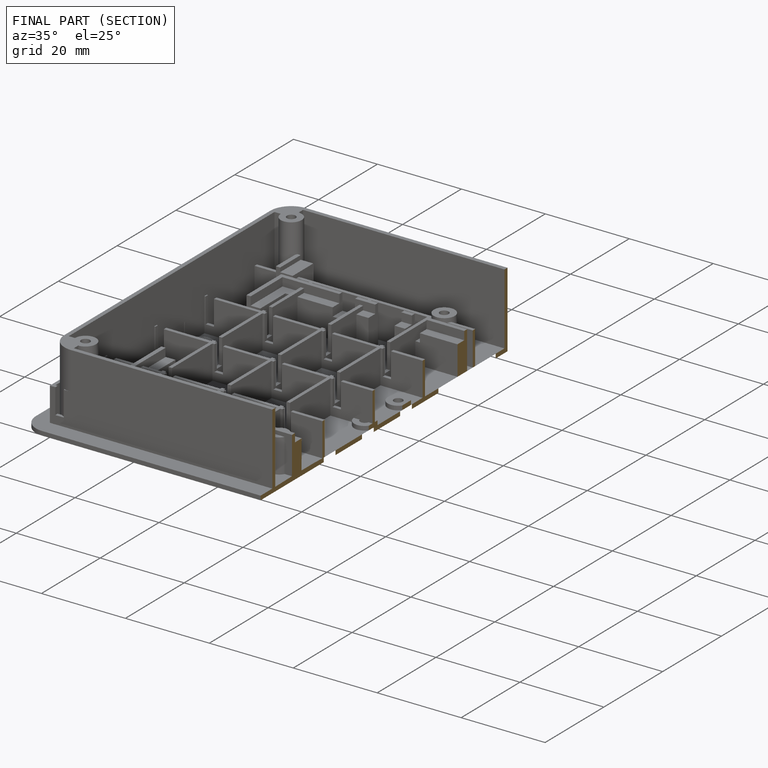
[diagram: finished part — half-section view (interior)]
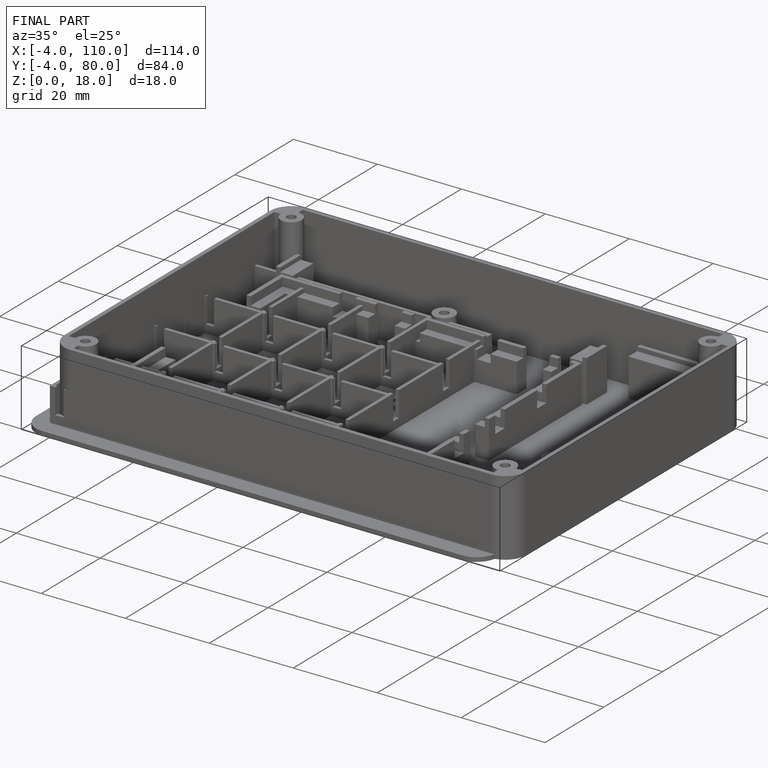
[diagram: finished part — iso view with bounding-box wireframe]
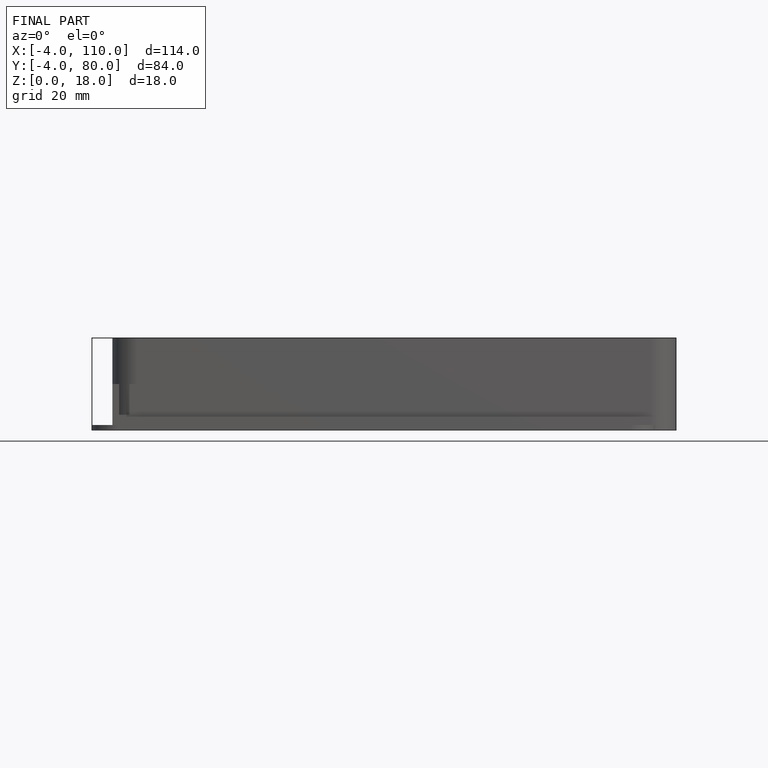
[diagram: finished part — front view with bounding-box wireframe]
